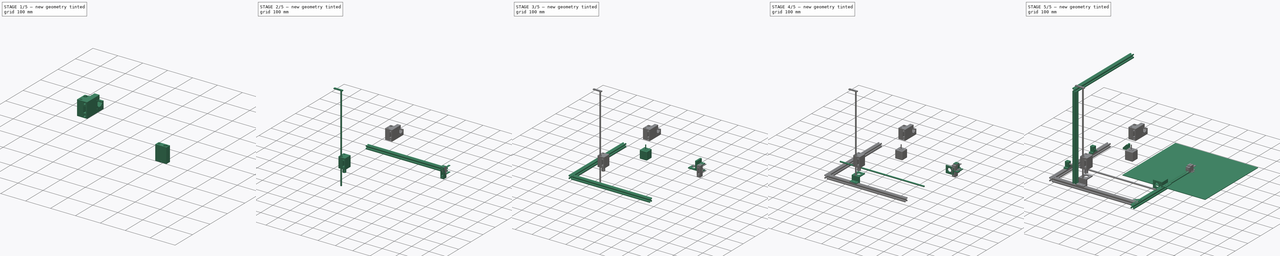
[diagram: build sequence overview — one tinted view per stage of 5, left to right]
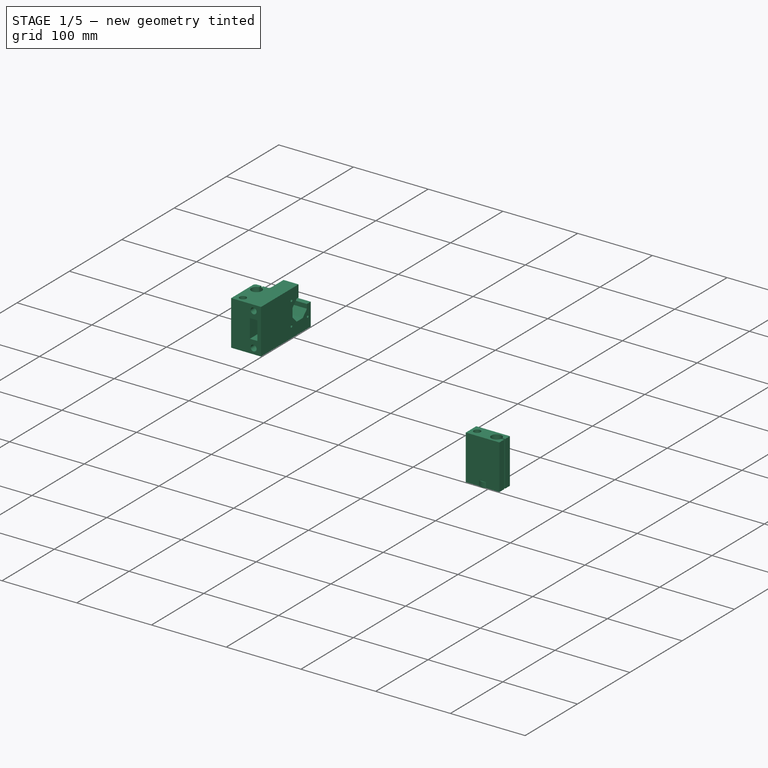
[diagram: stage 1 of 5 — iso view after this stage's code; geometry added in this stage tinted green]
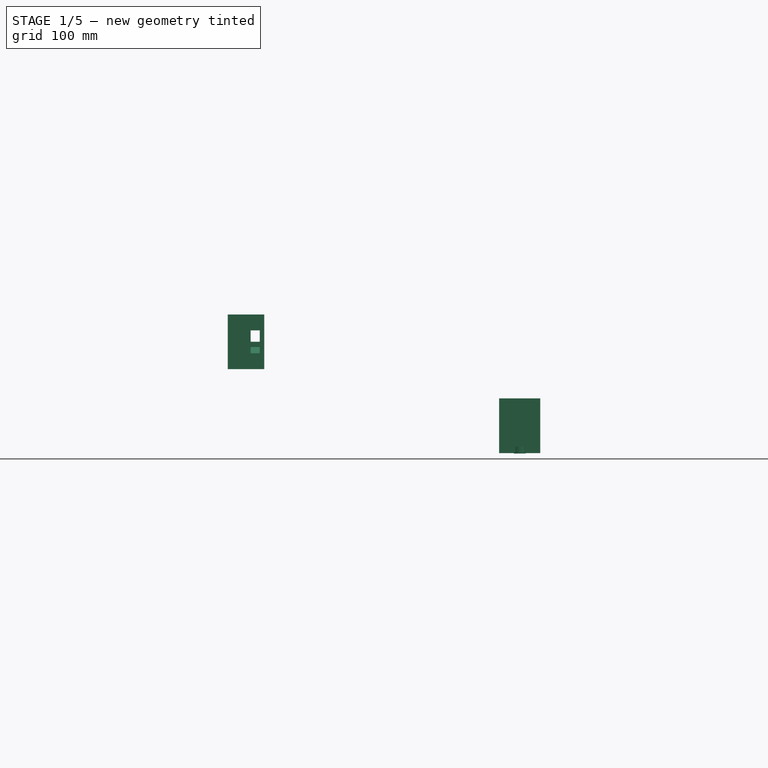
[diagram: stage 1 of 5 — front view after this stage's code; geometry added in this stage tinted green]
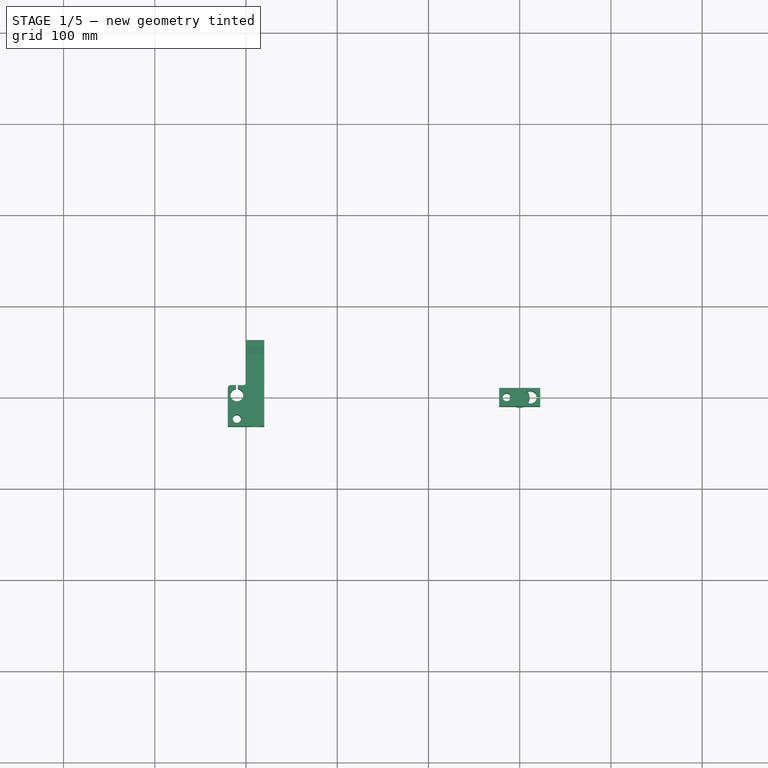
[diagram: stage 1 of 5 — top view after this stage's code; geometry added in this stage tinted green]
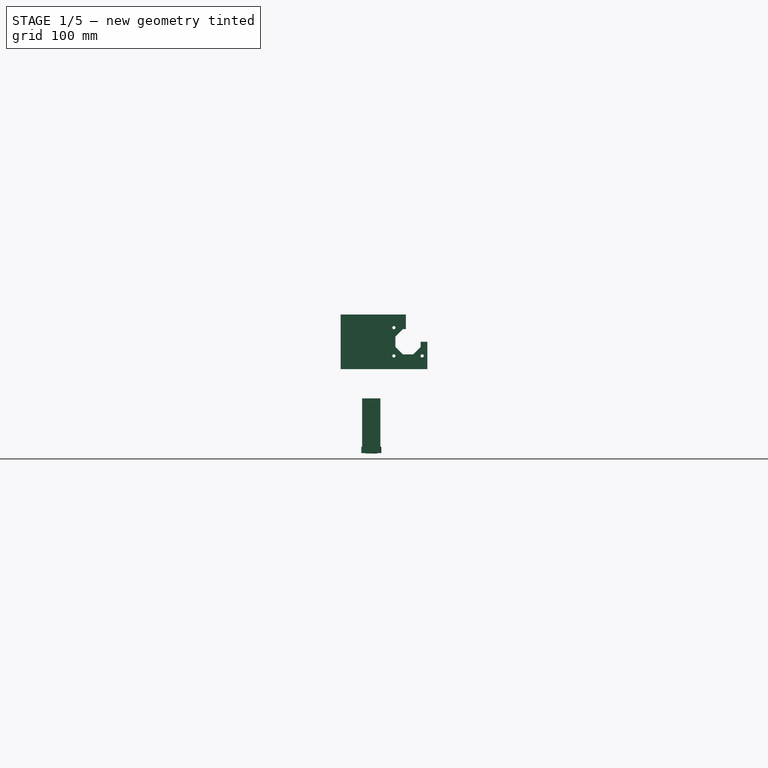
[diagram: stage 1 of 5 — right view after this stage's code; geometry added in this stage tinted green]
FCSTD DOCUMENT  (FreeCAD 0.18.4R)
Label: impresora3D
License: All rights reserved
LicenseURL: http://en.wikipedia.org/wiki/All_rights_reserved
objects: Sketcher::SketchObject×71, PartDesign::Pad×40, PartDesign::Pocket×38, Part::FeaturePython×35, PartDesign::Body×22, App::DocumentObjectGroup×21, PartDesign::Fillet×5, PartDesign::Point×4, PartDesign::Plane×1, Part::Fillet×1
note: 295 computed .brp shape members not serialized (recipe doc carries the construction recipe); baked Part::Feature solids carry a one-line shape summary decoded from their .brp

FEATURE [App::DocumentObjectGroup] Group001  label="Base"
  Group = -> [Clone035,Clone036,Clone037,Clone038]
FEATURE [Sketcher::SketchObject] Sketch045
  MapMode = 5
  Support = -> [XY_Plane015]
  sketch-geometry (1):
    g0: Circle CenterX=0 CenterY=0 CenterZ=0 NormalX=0 NormalY=0 NormalZ=1 AngleXU=0 Radius=9
  constraints (2):
    c: Coincident(g0,g-1)
    c: Diameter(g0) = 18
FEATURE [PartDesign::Pad] Pad027
  Length = 25
  Length2 = 100
  Profile = -> Sketch045
  Type = 0
FEATURE [Sketcher::SketchObject] Sketch046
  MapMode = 5
  Placement = pos=(0,0,25) rot=(0,0,1;0rad)
  Support = -> [Pad027]
  sketch-geometry (1):
    g0: Circle CenterX=0 CenterY=0 CenterZ=0 NormalX=0 NormalY=0 NormalZ=1 AngleXU=0 Radius=2.5
  constraints (2):
    c: Coincident(g0,g-1)
    c: Diameter(g0) = 5
FEATURE [PartDesign::Pocket] Pocket021
  BaseFeature = -> Pad027
  Length = 6
  Length2 = 100
  Profile = -> Sketch046
  Type = 0
FEATURE [Sketcher::SketchObject] Sketch047
  MapMode = 5
  Placement = pos=(0,0,0) rot=(1,0,0;3.14159rad)
  Support = -> [Pocket021]
  sketch-geometry (1):
    g0: Circle CenterX=0 CenterY=0 CenterZ=0 NormalX=0 NormalY=0 NormalZ=1 AngleXU=0 Radius=4
  constraints (2):
    c: Coincident(g0,g-1)
    c: Diameter(g0) = 8
FEATURE [PartDesign::Pocket] Pocket022
  BaseFeature = -> Pocket021
  Length = 6
  Length2 = 100
  Profile = -> Sketch047
  Type = 0
FEATURE [Sketcher::SketchObject] Sketch051
  MapMode = 5
  Support = -> [XY_Plane017]
  sketch-geometry (6):
    g0: LineSegment StartX=-22.5 StartY=10 StartZ=0 EndX=22.5 EndY=10 EndZ=0
    g1: LineSegment StartX=22.5 StartY=10 StartZ=0 EndX=22.5 EndY=-10 EndZ=0
    g2: LineSegment StartX=22.5 StartY=-10 StartZ=0 EndX=-22.5 EndY=-10 EndZ=0
    g3: LineSegment StartX=-22.5 StartY=-10 StartZ=0 EndX=-22.5 EndY=10 EndZ=0
    g4: Circle CenterX=-14.2696 CenterY=0 CenterZ=0 NormalX=0 NormalY=0 NormalZ=1 AngleXU=0 Radius=4.5
    g5: Circle CenterX=11.7304 CenterY=0 CenterZ=0 NormalX=0 NormalY=0 NormalZ=1 AngleXU=0 Radius=7
  constraints (15):
    c: Coincident(g0,g1)
    c: Coincident(g1,g2)
    c: Coincident(g2,g3)
    c: Coincident(g3,g0)
    c: Horizontal(g2)
    c: Vertical(g3)
    c: Symmetric(g0,g0,g-2)
    c: Symmetric(g0,g1,g-1)
    c: PointOnObject(g5,g-1)
    c: PointOnObject(g4,g-1)
    c: DistanceX(g4,g5) = 26
    c: Diameter(g5) = 14
    c: Diameter(g4) = 9
    c: DistanceX(g2,g1) = 45
    c: DistanceY(g2,g0) = 20
FEATURE [PartDesign::Pad] Pad029
  Length = 60
  Length2 = 100
  Profile = -> Sketch051
  Type = 0
FEATURE [Sketcher::SketchObject] Sketch052
  MapMode = 5
  Placement = pos=(0,0,60) rot=(0,0,1;0rad)
  Support = -> [Pad029]
  sketch-geometry (4):
    g0: LineSegment StartX=18.51 StartY=1 StartZ=0 EndX=22.51 EndY=1 EndZ=0
    g1: LineSegment StartX=22.51 StartY=1 StartZ=0 EndX=22.51 EndY=-1 EndZ=0
    g2: LineSegment StartX=22.51 StartY=-1 StartZ=0 EndX=18.51 EndY=-1 EndZ=0
    g3: LineSegment StartX=18.51 StartY=-1 StartZ=0 EndX=18.51 EndY=1 EndZ=0
  constraints (11):
    c: Coincident(g0,g1)
    c: Coincident(g1,g2)
    c: Coincident(g2,g3)
    c: Coincident(g3,g0)
    c: Horizontal(g0)
    c: Horizontal(g2)
    c: Vertical(g3)
    c: Symmetric(g0,g1,g-1)
    c: DistanceY(g1,g0) = 2
    c: DistanceX(g2,g1) = 4
    c: DistanceX(g-1,g2) = 18.51
FEATURE [PartDesign::Pocket] Pocket025
  BaseFeature = -> Pad029
  Length = 5
  Length2 = 100
  Profile = -> Sketch052
  Type = 1
FEATURE [PartDesign::Body] Body018  label="portaPoleaEjeY"
  Group = -> [Sketch055,Pad031,Sketch056,Pocket028,Sketch057,Pocket029,Sketch058,Pocket030,Sketch059,Pad032]
  Origin = -> Origin018
  Tip = -> Pad032
FEATURE [Sketcher::SketchObject] Sketch060
  MapMode = 5
  Support = -> [XY_Plane019]
  sketch-geometry (6):
    g0: LineSegment StartX=-22.5 StartY=10 StartZ=0 EndX=22.5 EndY=10 EndZ=0
    g1: LineSegment StartX=22.5 StartY=10 StartZ=0 EndX=22.5 EndY=-10 EndZ=0
    g2: LineSegment StartX=22.5 StartY=-10 StartZ=0 EndX=-22.5 EndY=-10 EndZ=0
    g3: LineSegment StartX=-22.5 StartY=-10 StartZ=0 EndX=-22.5 EndY=10 EndZ=0
    g4: Circle CenterX=-14.2696 CenterY=0 CenterZ=0 NormalX=0 NormalY=0 NormalZ=1 AngleXU=0 Radius=4.5
    g5: Circle CenterX=11.7304 CenterY=0 CenterZ=0 NormalX=0 NormalY=0 NormalZ=1 AngleXU=0 Radius=7
  constraints (15):
    c: Coincident(g0,g1)
    c: Coincident(g1,g2)
    c: Coincident(g2,g3)
    c: Coincident(g3,g0)
    c: Horizontal(g2)
    c: Vertical(g3)
    c: Symmetric(g0,g0,g-2)
    c: Symmetric(g0,g1,g-1)
    c: PointOnObject(g5,g-1)
    c: PointOnObject(g4,g-1)
    c: DistanceX(g4,g5) = 26
    c: Diameter(g5) = 14
    c: Diameter(g4) = 9
    c: DistanceX(g2,g1) = 45
    c: DistanceY(g2,g0) = 20
FEATURE [PartDesign::Pad] Pad033
  Length = 60
  Length2 = 100
  Profile = -> Sketch060
  Type = 0
FEATURE [Sketcher::SketchObject] Sketch061
  MapMode = 5
  Placement = pos=(0,0,60) rot=(0,0,1;0rad)
  Support = -> [Pad033]
  sketch-geometry (4):
    g0: LineSegment StartX=18.51 StartY=1 StartZ=0 EndX=22.51 EndY=1 EndZ=0
    g1: LineSegment StartX=22.51 StartY=1 StartZ=0 EndX=22.51 EndY=-1 EndZ=0
    g2: LineSegment StartX=22.51 StartY=-1 StartZ=0 EndX=18.51 EndY=-1 EndZ=0
    g3: LineSegment StartX=18.51 StartY=-1 StartZ=0 EndX=18.51 EndY=1 EndZ=0
  constraints (11):
    c: Coincident(g0,g1)
    c: Coincident(g1,g2)
    c: Coincident(g2,g3)
    c: Coincident(g3,g0)
    c: Horizontal(g0)
    c: Horizontal(g2)
    c: Vertical(g3)
    c: Symmetric(g0,g1,g-1)
    c: DistanceY(g1,g0) = 2
    c: DistanceX(g2,g1) = 4
    c: DistanceX(g-1,g2) = 18.51
FEATURE [PartDesign::Pocket] Pocket031
  BaseFeature = -> Pad033
  Length = 5
  Length2 = 100
  Profile = -> Sketch061
  Type = 1
FEATURE [PartDesign::Pad] Pad034
  BaseFeature = -> Pocket031
  Length = 20
  Length2 = 100
  Profile = -> Pocket031 [Face6]
  Type = 0
FEATURE [Sketcher::SketchObject] Sketch062
  ExternalGeometry = -> [Pad034]
  MapMode = 5
  Placement = pos=(-22.5,0,0) rot=(0.57735,-0.57735,-0.57735;2.0944rad)
  Support = -> [Pad034]
  sketch-geometry (6):
    g0: LineSegment [constr] StartX=30 StartY=30 StartZ=0 EndX=10 EndY=30 EndZ=0
    g1: LineSegment [constr] StartX=20 StartY=60 StartZ=0 EndX=20 EndY=0 EndZ=0
    g2: LineSegment StartX=15 StartY=42.5 StartZ=0 EndX=25 EndY=42.5 EndZ=0
    g3: LineSegment StartX=25 StartY=42.5 StartZ=0 EndX=25 EndY=17.5 EndZ=0
    g4: LineSegment StartX=25 StartY=17.5 StartZ=0 EndX=15 EndY=17.5 EndZ=0
    g5: LineSegment StartX=15 StartY=17.5 StartZ=0 EndX=15 EndY=42.5 EndZ=0
  constraints (18):
    c: Horizontal(g0)
    c: PointOnObject(g0,g-4)
    c: PointOnObject(g0,g-6)
    c: DistanceY(g-6,g0) = 30
    c: Vertical(g1)
    c: PointOnObject(g1,g-5)
    c: PointOnObject(g1,g-3)
    c: DistanceX(g1,g-6) = 10
    c: Coincident(g2,g3)
    c: Coincident(g3,g4)
    c: Coincident(g4,g5)
    c: Coincident(g5,g2)
    c: Horizontal(g2)
    c: Vertical(g3)
    c: Symmetric(g4,g3,g1)
    c: Symmetric(g4,g2,g0)
    c: DistanceY(g3,g2) = 25
    c: DistanceX(g4,g3) = 10
FEATURE [PartDesign::Pocket] Pocket032
  BaseFeature = -> Pad034
  Length = 47
  Length2 = 100
  Profile = -> Sketch062
  Type = 0
FEATURE [Sketcher::SketchObject] Sketch063
  ExternalGeometry = -> [Pocket032]
  MapMode = 5
  Placement = pos=(-22.5,0,0) rot=(0.57735,-0.57735,-0.57735;2.0944rad)
  Support = -> [Pocket032]
  sketch-geometry (4):
    g0: LineSegment [constr] StartX=20 StartY=60 StartZ=0 EndX=20 EndY=0 EndZ=0
    g1: LineSegment [constr] StartX=30 StartY=30 StartZ=0 EndX=10 EndY=30 EndZ=0
    g2: Circle CenterX=20 CenterY=52.5 CenterZ=0 NormalX=0 NormalY=0 NormalZ=1 AngleXU=0 Radius=4
    g3: Circle CenterX=20 CenterY=7.5 CenterZ=0 NormalX=0 NormalY=0 NormalZ=1 AngleXU=0 Radius=4
  constraints (13):
    c: Vertical(g0)
    c: DistanceX(g-4,g0) = 10
    c: PointOnObject(g0,g-3)
    c: PointOnObject(g0,g-6)
    c: PointOnObject(g1,g-4)
    c: Horizontal(g1)
    c: PointOnObject(g1,g-5)
    c: DistanceY(g1,g-5) = 30
    c: PointOnObject(g2,g0)
    c: Equal(g2,g3)
    c: Diameter(g3) = 8
    c: Symmetric(g2,g3,g1)
    c: DistanceY(g3,g2) = 45
FEATURE [PartDesign::Pocket] Pocket033
  BaseFeature = -> Pocket032
  Length = 20
  Length2 = 100
  Profile = -> Sketch063
  Type = 0
FEATURE [PartDesign::Pad] Pad035
  BaseFeature = -> Pocket033
  Length = 50
  Length2 = 100
  Profile = -> Pocket033 [Face21]
  Type = 0
FEATURE [PartDesign::Fillet] Fillet004
  Base = -> Pad035 [Edge35]
  BaseFeature = -> Pad035
  Radius = 3
FEATURE [PartDesign::Fillet] Fillet005
  Base = -> Fillet004 [Edge30]
  BaseFeature = -> Fillet004
  Radius = 3
FEATURE [Sketcher::SketchObject] Sketch064
  ExternalGeometry = -> [Fillet005]
  MapMode = 5
  Placement = pos=(0,-10,0) rot=(0,0.707107,0.707107;3.14159rad)
  Support = -> [Fillet005]
  expr: Constraints[19] = 42.3 / 2
  expr: Constraints[15] = 42.3 / 2
  sketch-geometry (18):
    g0: LineSegment [constr] StartX=-30.2 StartY=60 StartZ=0 EndX=-30.2 EndY=0 EndZ=0
    g1: LineSegment [constr] StartX=-72.5 StartY=51.2 StartZ=0 EndX=-30.2 EndY=51.2 EndZ=0
    g2: LineSegment [constr] StartX=-72.5 StartY=8.8 StartZ=0 EndX=-30.2 EndY=8.8 EndZ=0
    g3: LineSegment [constr] StartX=-51.35 StartY=51.2 StartZ=0 EndX=-51.35 EndY=8.8 EndZ=0
    g4: LineSegment [constr] StartX=-72.5 StartY=30.05 StartZ=0 EndX=-30.2 EndY=30.05 EndZ=0
    g5: Circle CenterX=-35.85 CenterY=45.55 CenterZ=0 NormalX=0 NormalY=0 NormalZ=1 AngleXU=0 Radius=1.75
    g6: Circle CenterX=-66.85 CenterY=45.55 CenterZ=0 NormalX=0 NormalY=0 NormalZ=1 AngleXU=0 Radius=1.75
    g7: Circle CenterX=-66.85 CenterY=14.55 CenterZ=0 NormalX=0 NormalY=0 NormalZ=1 AngleXU=0 Radius=1.75
    g8: Circle CenterX=-35.85 CenterY=14.55 CenterZ=0 NormalX=0 NormalY=0 NormalZ=1 AngleXU=0 Radius=1.75
    g9: LineSegment StartX=-37.4918 StartY=35.7903 StartZ=0 EndX=-45.6097 EndY=43.9082 EndZ=0
    g10: LineSegment StartX=-45.6097 StartY=43.9082 StartZ=0 EndX=-57.0903 EndY=43.9082 EndZ=0
    g11: LineSegment StartX=-57.0903 StartY=43.9082 StartZ=0 EndX=-65.2082 EndY=35.7903 EndZ=0
    g12: LineSegment StartX=-65.2082 StartY=35.7903 StartZ=0 EndX=-65.2082 EndY=24.3097 EndZ=0
    g13: LineSegment StartX=-65.2082 StartY=24.3097 StartZ=0 EndX=-57.0903 EndY=16.1918 EndZ=0
    g14: LineSegment StartX=-57.0903 StartY=16.1918 StartZ=0 EndX=-45.6097 EndY=16.1918 EndZ=0
    g15: LineSegment StartX=-45.6097 StartY=16.1918 StartZ=0 EndX=-37.4918 EndY=24.3097 EndZ=0
    g16: LineSegment StartX=-37.4918 StartY=24.3097 StartZ=0 EndX=-37.4918 EndY=35.7903 EndZ=0
    g17: Circle [constr] CenterX=-51.35 CenterY=30.05 CenterZ=0 NormalX=0 NormalY=0 NormalZ=1 AngleXU=0 Radius=15
  constraints (50):
    c: Vertical(g0)
    c: DistanceX(g-6,g0) = 42.3
    c: PointOnObject(g0,g-5)
    c: PointOnObject(g0,g-7)
    c: Horizontal(g1)
    c: PointOnObject(g1,g0)
    c: PointOnObject(g1,g-6)
    c: DistanceY(g1,g-6) = 8.8
    c: Horizontal(g2)
    c: PointOnObject(g2,g0)
    c: PointOnObject(g2,g-6)
    c: DistanceY(g-7,g2) = 8.8
    c: Vertical(g3)
    c: PointOnObject(g3,g2)
    c: PointOnObject(g3,g1)
    c: DistanceX(g2,g3) = 21.15
    c: PointOnObject(g4,g-6)
    c: PointOnObject(g4,g0)
    c: Horizontal(g4)
    c: DistanceY(g4,g1) = 21.15
    c: Equal(g8,g7)
    c: Equal(g7,g6)
    c: Equal(g6,g5)
    c: Symmetric(g5,g6,g3)
    c: Symmetric(g7,g6,g4)
    c: Symmetric(g8,g5,g4)
    c: DistanceY(g8,g5) = 31
    c: DistanceX(g6,g5) = 31
    c: Diameter(g6) = 3.5
    c: Coincident(g9,g10)
    c: Coincident(g10,g11)
    c: Coincident(g11,g12)
    c: Coincident(g12,g13)
    c: Coincident(g13,g14)
    c: Coincident(g14,g15)
    c: Coincident(g15,g16)
    c: Coincident(g16,g9)
    c: Equal(g9, g10-g16) x7
    c: PointOnObject(g9,g17)
    c: PointOnObject(g10,g17)
    c: PointOnObject(g11,g17)
    c: PointOnObject(g12,g17)
    c: PointOnObject(g13,g17)
    c: PointOnObject(g14,g17)
    c: PointOnObject(g15,g17)
    c: PointOnObject(g16,g17)
    c: PointOnObject(g17,g4)
    c: PointOnObject(g17,g3)
    c: Diameter(g17) = 30
    c: Parallel(g12,g-6)
FEATURE [PartDesign::Pocket] Pocket034
  BaseFeature = -> Fillet005
  Length = 5
  Length2 = 100
  Profile = -> Sketch064
  Type = 1
FEATURE [Sketcher::SketchObject] Sketch065
  ExternalGeometry = -> [Pocket034]
  MapMode = 5
  Placement = pos=(0,-10,0) rot=(0,0.707107,0.707107;3.14159rad)
  Support = -> [Pocket034]
  expr: Constraints[9] = 47 / 2
  sketch-geometry (4):
    g0: LineSegment StartX=-72.5 StartY=60 StartZ=0 EndX=-49 EndY=60 EndZ=0
    g1: LineSegment StartX=-49 StartY=60 StartZ=0 EndX=-49 EndY=30 EndZ=0
    g2: LineSegment StartX=-49 StartY=30 StartZ=0 EndX=-72.5 EndY=30 EndZ=0
    g3: LineSegment StartX=-72.5 StartY=30 StartZ=0 EndX=-72.5 EndY=60 EndZ=0
  constraints (11):
    c: Coincident(g0,g1)
    c: Coincident(g1,g2)
    c: Coincident(g2,g3)
    c: Coincident(g3,g0)
    c: Horizontal(g0)
    c: Horizontal(g2)
    c: Vertical(g1)
    c: Vertical(g3)
    c: Coincident(g0,g-4)
    c: DistanceX(g0,g0) = 23.5
    c: DistanceY(g2,g0) = 30
FEATURE [PartDesign::Pocket] Pocket035
  BaseFeature = -> Pocket034
  Length = 5
  Length2 = 100
  Profile = -> Sketch065
  Type = 1
FEATURE [PartDesign::Pad] Pad036
  BaseFeature = -> Pocket035
  Length = 12.5
  Length2 = 100
  Profile = -> Pocket035 [Face41]
  Type = 0
FEATURE [PartDesign::Pocket] Pocket036
  BaseFeature = -> Pad036
  Length = 5
  Length2 = 100
  Profile = -> Pad036 [Face50]
  Type = 1
FEATURE [Part::FeaturePython] Clone047  label="soporteEjeYConMotorIzquierdo001"  # Draft clone (typed FeaturePython)
  AttacherType = Attacher::AttachEngine3D
  Fuse = false
  Objects = -> [Body019]
  Placement = pos=(-310,-11,92) rot=(0,0,1;1.5708rad)
  Scale = (1,1,1)
FEATURE [App::DocumentObjectGroup] Group003  label="Impresora"
  Group = -> [Group001,Group,Group011,Group012,Group017,Clone028,Clone029,Clone031,Clone032,Clone033,Clone040,Clone041,Clone042,Clone043,Clone,Clone044,Clone046,Clone047]
FEATURE [Sketcher::SketchObject] Sketch066
  MapMode = 5
  Support = -> [XY_Plane020]
FEATURE [PartDesign::Body] Body020  label="soportePoleaLisaEjeX"
  Group = -> [Sketch066]
  Origin = -> Origin020
FEATURE [Sketcher::SketchObject] Sketch067
  MapMode = 5
  Support = -> [XY_Plane021]
  sketch-geometry (1):
    g0: Circle CenterX=0 CenterY=0 CenterZ=0 NormalX=0 NormalY=0 NormalZ=1 AngleXU=0 Radius=4
  constraints (2):
    c: Coincident(g0,g-1)
    c: Diameter(g0) = 8
FEATURE [PartDesign::Pad] Pad037
  Length = 7
  Length2 = 100
  Profile = -> Sketch067
  Type = 0
FEATURE [Sketcher::SketchObject] Sketch068
  MapMode = 5
  Placement = pos=(0,0,7) rot=(0,0,1;0rad)
  Support = -> [Pad037]
  sketch-geometry (1):
    g0: Circle CenterX=0 CenterY=0 CenterZ=0 NormalX=0 NormalY=0 NormalZ=1 AngleXU=0 Radius=6.5
  constraints (2):
    c: Coincident(g0,g-1)
    c: Diameter(g0) = 13
FEATURE [PartDesign::Pad] Pad038
  BaseFeature = -> Pad037
  Length = 0.5
  Length2 = 100
  Profile = -> Sketch068
  Type = 0
FEATURE [Sketcher::SketchObject] Sketch069
  MapMode = 5
  Placement = pos=(0,0,0) rot=(1,0,0;3.14159rad)
  Support = -> [Pad038]
FEATURE [Sketcher::SketchObject] Sketch070
  MapMode = 5
  Placement = pos=(0,0,0) rot=(1,0,0;3.14159rad)
  Support = -> [Pad038]
  sketch-geometry (1):
    g0: Circle CenterX=0 CenterY=0 CenterZ=0 NormalX=0 NormalY=0 NormalZ=1 AngleXU=0 Radius=6.5
  constraints (2):
    c: Coincident(g0,g-1)
    c: Diameter(g0) = 13
FEATURE [PartDesign::Pad] Pad039
  BaseFeature = -> Pad038
  Length = 0.5
  Length2 = 100
  Profile = -> Sketch070
  Type = 0
FEATURE [Sketcher::SketchObject] Sketch071
  MapMode = 5
  Placement = pos=(0,0,-0.5) rot=(1,0,0;3.14159rad)
  Support = -> [Pad039]
  sketch-geometry (1):
    g0: Circle CenterX=0 CenterY=0 CenterZ=0 NormalX=0 NormalY=0 NormalZ=1 AngleXU=0 Radius=1.5
  constraints (2):
    c: Coincident(g0,g-1)
    c: Diameter(g0) = 3
FEATURE [PartDesign::Pocket] Pocket037
  BaseFeature = -> Pad039
  Length = 5
  Length2 = 100
  Profile = -> Sketch071
  Type = 1
FEATURE [PartDesign::Body] Body021  label="PoleaLisaGT2"
  Group = -> [Sketch067,Pad037,Sketch068,Pad038,Sketch069,Sketch070,Pad039,Sketch071,Pocket037]
  Origin = -> Origin021
  Tip = -> Pocket037
FEATURE [Sketcher::SketchObject] Sketch072
  MapMode = 5
  Support = -> [XY_Plane022]
  sketch-geometry (1):
    g0: Circle CenterX=0 CenterY=0 CenterZ=0 NormalX=0 NormalY=0 NormalZ=1 AngleXU=0 Radius=11
  constraints (2):
    c: Coincident(g-1,g0)
    c: Diameter(g0) = 22
FEATURE [PartDesign::Pad] Pad040
  Length = 7
  Length2 = 100
  Profile = -> Sketch072
  Type = 0
FEATURE [Sketcher::SketchObject] Sketch073
  MapMode = 5
  Placement = pos=(0,0,7) rot=(0,0,1;0rad)
  Support = -> [Pad040]
  sketch-geometry (1):
    g0: Circle CenterX=0 CenterY=0 CenterZ=0 NormalX=0 NormalY=0 NormalZ=1 AngleXU=0 Radius=4
  constraints (2):
    c: Coincident(g0,g-1)
    c: Diameter(g0) = 8
FEATURE [PartDesign::Pocket] Pocket038
  BaseFeature = -> Pad040
  Length = 5
  Length2 = 100
  Profile = -> Sketch073
  Type = 1
FEATURE [PartDesign::Body] Body022  label="Rodamiento608zz"
  Group = -> [Sketch072,Pad040,Sketch073,Pocket038]
  Origin = -> Origin022
  Tip = -> Pocket038
FEATURE [App::DocumentObjectGroup] Group021  label="Acoples"
  Group = -> [Body015]
FEATURE [App::DocumentObjectGroup] Group004  label="Modelos"
  Group = -> [Group002,Group005,Group006,Group009,Group013,Group019,Group020,Group021]
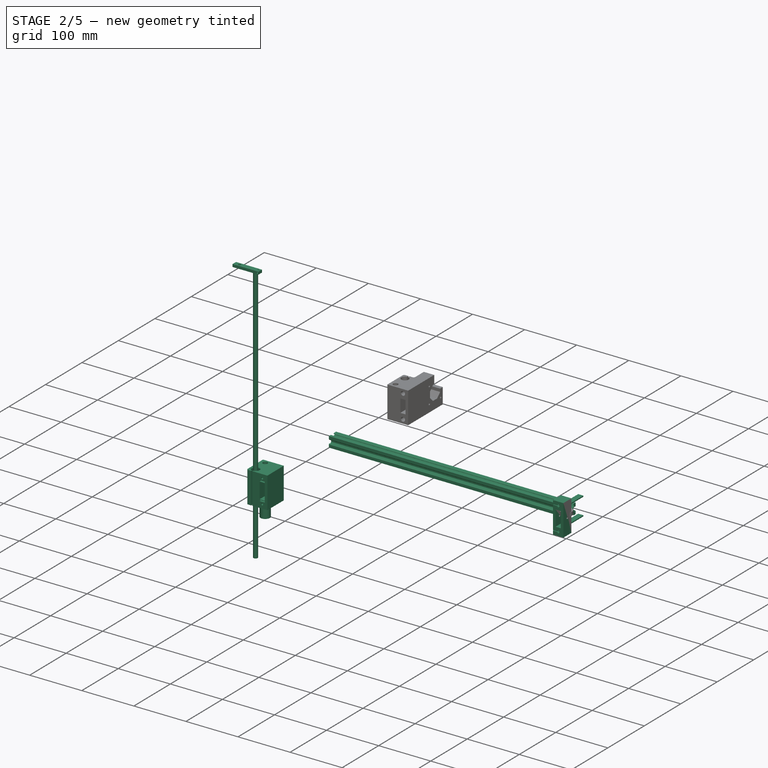
[diagram: stage 2 of 5 — iso view after this stage's code; geometry added in this stage tinted green]
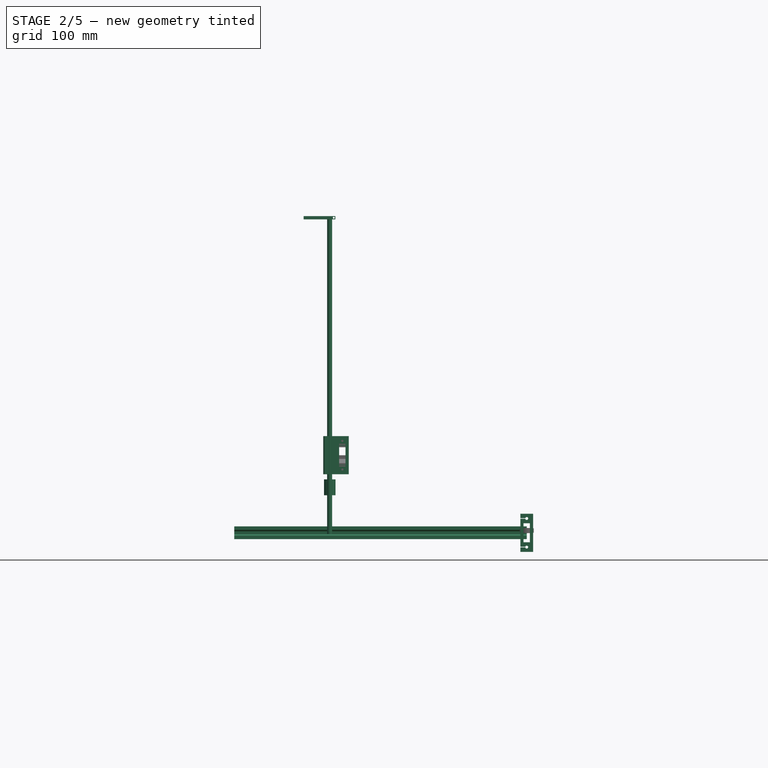
[diagram: stage 2 of 5 — front view after this stage's code; geometry added in this stage tinted green]
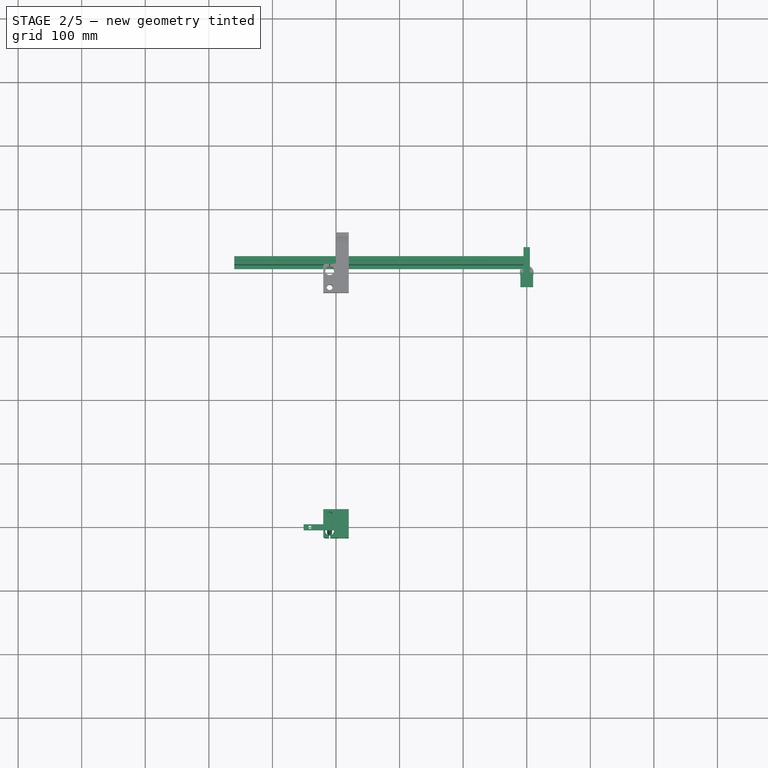
[diagram: stage 2 of 5 — top view after this stage's code; geometry added in this stage tinted green]
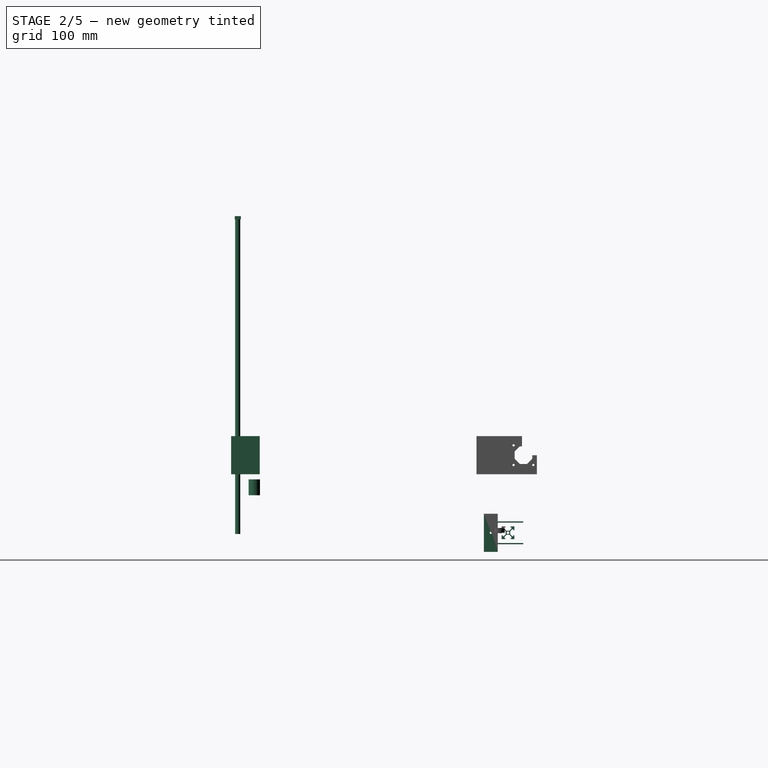
[diagram: stage 2 of 5 — right view after this stage's code; geometry added in this stage tinted green]
FEATURE [Sketcher::SketchObject] Sketch041
  MapMode = 5
  Placement = pos=(0,0,0) rot=(0.57735,0.57735,0.57735;2.0944rad)
  Support = -> [YZ_Plane013]
  sketch-geometry (49):
    g0: LineSegment [constr] StartX=-10 StartY=10 StartZ=0 EndX=10 EndY=10 EndZ=0
    g1: LineSegment [constr] StartX=10 StartY=10 StartZ=0 EndX=10 EndY=-10 EndZ=0
    g2: LineSegment [constr] StartX=10 StartY=-10 StartZ=0 EndX=-10 EndY=-10 EndZ=0
    g3: LineSegment [constr] StartX=-10 StartY=-10 StartZ=0 EndX=-10 EndY=10 EndZ=0
    g4: LineSegment StartX=-10 StartY=4.58 StartZ=0 EndX=-10 EndY=10 EndZ=0
    g5: LineSegment StartX=-10 StartY=10 StartZ=0 EndX=-4.58 EndY=10 EndZ=0
    g6: LineSegment StartX=-4.58 StartY=10 StartZ=0 EndX=-3.125 EndY=8.545 EndZ=0
    g7: LineSegment StartX=-3.125 StartY=8.545 StartZ=0 EndX=-5.5 EndY=8.545 EndZ=0
    g8: LineSegment StartX=-5.5 StartY=8.545 StartZ=0 EndX=-5.5 EndY=6.52648 EndZ=0
    g9: LineSegment StartX=-5.5 StartY=6.52648 StartZ=0 EndX=-2.35726 EndY=3.14093 EndZ=0
    g10: LineSegment StartX=-10 StartY=4.58 StartZ=0 EndX=-8.42 EndY=3 EndZ=0
    g11: LineSegment StartX=-8.42 StartY=3 StartZ=0 EndX=-8.42 EndY=5.5 EndZ=0
    g12: LineSegment StartX=-8.42 StartY=5.5 StartZ=0 EndX=-6.5938 EndY=5.5 EndZ=0
    g13: LineSegment StartX=-6.5938 StartY=5.5 StartZ=0 EndX=-3.67645 EndY=2.35726 EndZ=0
    g14: LineSegment StartX=10 StartY=4.58 StartZ=0 EndX=10 EndY=10 EndZ=0
    g15: LineSegment StartX=10 StartY=10 StartZ=0 EndX=4.58 EndY=10 EndZ=0
    g16: LineSegment StartX=4.58 StartY=10 StartZ=0 EndX=3.125 EndY=8.545 EndZ=0
    g17: LineSegment StartX=3.125 StartY=8.545 StartZ=0 EndX=5.5 EndY=8.545 EndZ=0
    g18: LineSegment StartX=5.5 StartY=8.545 StartZ=0 EndX=5.5 EndY=6.52648 EndZ=0
    g19: LineSegment StartX=5.5 StartY=6.52648 StartZ=0 EndX=2.35726 EndY=3.14093 EndZ=0
    g20: LineSegment StartX=10 StartY=4.58 StartZ=0 EndX=8.42 EndY=3 EndZ=0
    g21: LineSegment StartX=8.42 StartY=3 StartZ=0 EndX=8.42 EndY=5.5 EndZ=0
    g22: LineSegment StartX=8.42 StartY=5.5 StartZ=0 EndX=6.5938 EndY=5.5 EndZ=0
    g23: LineSegment StartX=6.5938 StartY=5.5 StartZ=0 EndX=3.67645 EndY=2.35726 EndZ=0
    g24: LineSegment StartX=-6.5938 StartY=-5.5 StartZ=0 EndX=-3.67645 EndY=-2.35726 EndZ=0
    g25: LineSegment StartX=-10 StartY=-4.58 StartZ=0 EndX=-10 EndY=-10 EndZ=0
    g26: LineSegment StartX=-10 StartY=-10 StartZ=0 EndX=-4.58 EndY=-10 EndZ=0
    g27: LineSegment StartX=-4.58 StartY=-10 StartZ=0 EndX=-3.125 EndY=-8.545 EndZ=0
    g28: LineSegment StartX=-3.125 StartY=-8.545 StartZ=0 EndX=-5.5 EndY=-8.545 EndZ=0
    g29: LineSegment StartX=-5.5 StartY=-8.545 StartZ=0 EndX=-5.5 EndY=-6.52648 EndZ=0
    g30: LineSegment StartX=-5.5 StartY=-6.52648 StartZ=0 EndX=-2.35726 EndY=-3.14093 EndZ=0
    g31: LineSegment StartX=-10 StartY=-4.58 StartZ=0 EndX=-8.42 EndY=-3 EndZ=0
    g32: LineSegment StartX=-8.42 StartY=-3 StartZ=0 EndX=-8.42 EndY=-5.5 EndZ=0
    g33: LineSegment StartX=-8.42 StartY=-5.5 StartZ=0 EndX=-6.5938 EndY=-5.5 EndZ=0
    g34: LineSegment StartX=10 StartY=-10 StartZ=0 EndX=4.58 EndY=-10 EndZ=0
    g35: LineSegment StartX=4.58 StartY=-10 StartZ=0 EndX=3.125 EndY=-8.545 EndZ=0
    g36: LineSegment StartX=3.125 StartY=-8.545 StartZ=0 EndX=5.5 EndY=-8.545 EndZ=0
    g37: LineSegment StartX=5.5 StartY=-8.545 StartZ=0 EndX=5.5 EndY=-6.52648 EndZ=0
    g38: LineSegment StartX=5.5 StartY=-6.52648 StartZ=0 EndX=2.35726 EndY=-3.14093 EndZ=0
    g39: LineSegment StartX=10 StartY=-4.58 StartZ=0 EndX=8.42 EndY=-3 EndZ=0
    g40: LineSegment StartX=8.42 StartY=-3 StartZ=0 EndX=8.42 EndY=-5.5 EndZ=0
    g41: LineSegment StartX=8.42 StartY=-5.5 StartZ=0 EndX=6.5938 EndY=-5.5 EndZ=0
    g42: LineSegment StartX=6.5938 StartY=-5.5 StartZ=0 EndX=3.67645 EndY=-2.35726 EndZ=0
    g43: LineSegment StartX=10 StartY=-4.58 StartZ=0 EndX=10 EndY=-10 EndZ=0
    g44: LineSegment StartX=-3.67645 StartY=2.35726 StartZ=0 EndX=-3.67645 EndY=-2.35726 EndZ=0
    g45: LineSegment StartX=-2.35726 StartY=-3.14093 StartZ=0 EndX=2.35726 EndY=-3.14093 EndZ=0
    g46: LineSegment StartX=3.67645 StartY=-2.35726 StartZ=0 EndX=3.67645 EndY=2.35726 EndZ=0
    g47: LineSegment StartX=2.35726 StartY=3.14093 StartZ=0 EndX=-2.35726 EndY=3.14093 EndZ=0
    g48: Circle CenterX=0 CenterY=0 CenterZ=0 NormalX=0 NormalY=0 NormalZ=1 AngleXU=0 Radius=2.1
  constraints (118):
    c: Coincident(g0,g1)
    c: Coincident(g1,g2)
    c: Coincident(g2,g3)
    c: Coincident(g3,g0)
    c: Horizontal(g2)
    c: Vertical(g1)
    c: Symmetric(g0,g0,g-2)
    c: Symmetric(g0,g2,g-1)
    c: DistanceX(g0,g0) = 20
    c: DistanceY(g2,g0) = 20
    c: Vertical(g4)
    c: Coincident(g4,g5)
    c: Horizontal(g5)
    c: Coincident(g5,g6)
    c: Coincident(g6,g7)
    c: Horizontal(g7)
    c: Coincident(g7,g8)
    c: Vertical(g8)
    c: Coincident(g8,g9)
    c: Coincident(g4,g10)
    c: Vertical(g11)
    c: Coincident(g11,g12)
    c: Coincident(g12,g13)
    c: Coincident(g4,g0)
    c: Angle(g6,g0) = 0.785398
    c: Vertical(g14)
    c: Coincident(g14,g15)
    c: Horizontal(g15)
    c: Coincident(g15,g16)
    c: Coincident(g16,g17)
    c: Coincident(g17,g18)
    c: Coincident(g18,g19)
    c: Coincident(g14,g20)
    c: Coincident(g20,g21)
    c: Vertical(g21)
    c: Coincident(g21,g22)
    c: Coincident(g22,g23)
    c: DistanceX(g5,g15) = 9.16
    c: Coincident(g14,g0)
    c: Angle(g0,g16) = 0.785398
    c: DistanceX(g7,g17) = 11
    c: DistanceX(g6,g16) = 6.25
    c: Angle(g3,g10) = 0.785398
    c: Vertical(g25)
    c: Coincident(g25,g26)
    c: Horizontal(g26)
    c: Coincident(g26,g27)
    c: Coincident(g27,g28)
    c: Coincident(g28,g29)
    c: Coincident(g29,g30)
    c: Coincident(g25,g31)
    c: Coincident(g31,g32)
    c: Coincident(g32,g33)
    c: Coincident(g33,g24)
    c: Coincident(g43,g34)
    c: Coincident(g34,g35)
    c: Coincident(g35,g36)
    c: Coincident(g36,g37)
    c: Coincident(g37,g38)
    c: Coincident(g43,g39)
    c: Coincident(g39,g40)
    c: Vertical(g40)
    c: Coincident(g40,g41)
    c: Coincident(g41,g42)
    c: DistanceY(g25,g4) = 9.16
    c: Coincident(g25,g2)
    c: Coincident(g1,g34)
    c: DistanceY(g32,g11) = 11
    c: DistanceY(g31,g10) = 6
    c: Angle(g31,g3) = 0.785398
    c: Parallel(g9,g13)
    c: Distance(g12,g9) = 1.5
    c: Perpendicular(g11,g12)
    c: Angle(g2,g27) = 0.785398
    c: Symmetric(g16,g6,g-2)
    c: Symmetric(g17,g7,g-2)
    c: Symmetric(g8,g18,g-2)
    c: Symmetric(g9,g19,g-2)
    c: Symmetric(g23,g13,g-2)
    c: Parallel(g22,g15)
    c: Angle(g20,g1) = 0.785398
    c: Symmetric(g31,g10,g-1)
    c: Coincident(g11,g10)
    c: Symmetric(g32,g11,g-1)
    c: Symmetric(g24,g12,g-1)
    c: Symmetric(g24,g13,g-1)
    c: Coincident(g13,g44)
    c: Coincident(g44,g24)
    c: Coincident(g30,g45)
    c: Coincident(g45,g38)
    c: Coincident(g46,g42)
    c: Coincident(g46,g23)
    c: Coincident(g47,g9)
    c: Symmetric(g9,g30,g-1)
    c: Coincident(g19,g47)
    c: Symmetric(g38,g19,g-1)
    c: Symmetric(g23,g42,g-1)
    c: Symmetric(g22,g12,g-2)
    c: Parallel(g41,g34)
    c: Symmetric(g18,g37,g-1)
    c: Symmetric(g41,g22,g-1)
    c: Symmetric(g39,g20,g-1)
    c: Symmetric(g39,g14,g-1)
    c: Symmetric(g26,g34,g-2)
    c: Symmetric(g29,g8,g-1)
    c: Symmetric(g27,g35,g-2)
    c: Symmetric(g39,g31,g-2)
    c: Symmetric(g36,g28,g-2)
    c: Symmetric(g28,g7,g-1)
    c: Symmetric(g27,g6,g-1)
    c: Equal(g47,g44)
    c: Equal(g44,g45)
    c: Equal(g45,g46)
    c: DistanceY(g24,g13) = 4.71451
    c: Angle(g47,g9) = 2.31902
    c: Coincident(g48,g-1)
    c: Diameter(g48) = 4.2
    c: DistanceY(g8,g6) = 2.01852
FEATURE [PartDesign::Pad] Pad025
  Length = 460
  Length2 = 100
  Placement = pos=(0,0,0) rot=(0.57735,0.57735,0.57735;2.0944rad)
  Profile = -> Sketch041
  Type = 0
FEATURE [PartDesign::Body] Body013  label="perfil2020BienRestringido"
  Group = -> [Sketch041,Pad025]
  Origin = -> Origin013
  Tip = -> Pad025
FEATURE [App::DocumentObjectGroup] Group002  label="Perfiles"
  Group = -> [Body004,Body002,Body,Body013]
FEATURE [Part::FeaturePython] Clone035  label="perfil2020BienRestringidoBaseUno"  # Draft clone (typed FeaturePython)
  AttacherType = Attacher::AttachEngine3D
  Fuse = false
  Objects = -> [Body013]
  Placement = pos=(10,26,0) rot=(0,0,-1;1.5708rad)
  Scale = (1,1,1)
FEATURE [Part::FeaturePython] Clone036  label="perfil2020BienRestringidoBaseUno001"  # Draft clone (typed FeaturePython)
  AttacherType = Attacher::AttachEngine3D
  Fuse = false
  Objects = -> [Clone035]
  Placement = pos=(0,16,0) rot=(0,0,1;3.14159rad)
  Scale = (1,1,1)
FEATURE [PartDesign::Body] Body015  label="acople5/8"
  Group = -> [Sketch045,Pad027,Sketch046,Pocket021,Sketch047,Pocket022]
  Origin = -> Origin015
  Tip = -> Pocket022
FEATURE [Part::FeaturePython] Clone040  label="acople5/009"  # Draft clone (typed FeaturePython)
  AttacherType = Attacher::AttachEngine3D
  Fuse = false
  Objects = -> [Body015]
  Placement = pos=(-310,-25,82) rot=(0,1,0;3.14159rad)
  Scale = (1,1,1)
FEATURE [Part::FeaturePython] Clone041  label="acople5/010"  # Draft clone (typed FeaturePython)
  AttacherType = Attacher::AttachEngine3D
  Fuse = false
  Objects = -> [Clone040]
  Placement = pos=(-309.85,-383,84) rot=(0,1,0;3.14159rad)
  Scale = (1,1,1)
FEATURE [Part::FeaturePython] Clone042  label="varillaacero8mmEjeZ003"  # WARN: FeaturePython — macro-defined, semantics opaque (R4)
  AttacherType = Attacher::AttachEngine3D
  Fuse = false
  Placement = pos=(-310,1.15,4) rot=(0,-1,0;1.5708rad)
  Scale = (1,1,1)
FEATURE [Part::FeaturePython] Clone043  label="varillaacero8mmEjeZ004"  # Draft clone (typed FeaturePython)
  AttacherType = Attacher::AttachEngine3D
  Fuse = false
  Objects = -> [Clone042]
  Placement = pos=(-310,-409.15,-2) rot=(0,-1,0;1.5708rad)
  Scale = (1,1,1)
FEATURE [Sketcher::SketchObject] Sketch048
  MapMode = 5
  Support = -> [XY_Plane016]
  expr: Constraints[10] = 20 + 21.25
  expr: Constraints[9] = 20 + 30
  sketch-geometry (6):
    g0: LineSegment StartX=-4.85 StartY=25 StartZ=0 EndX=4.85 EndY=25 EndZ=0
    g1: LineSegment StartX=4.85 StartY=25 StartZ=0 EndX=4.85 EndY=-25 EndZ=0
    g2: LineSegment StartX=4.85 StartY=-25 StartZ=0 EndX=-4.85 EndY=-25 EndZ=0
    g3: LineSegment StartX=-4.85 StartY=-25 StartZ=0 EndX=-4.85 EndY=25 EndZ=0
    g4: Circle CenterX=0 CenterY=-16.25 CenterZ=0 NormalX=0 NormalY=0 NormalZ=1 AngleXU=0 Radius=4
    g5: Circle CenterX=0 CenterY=15 CenterZ=0 NormalX=0 NormalY=0 NormalZ=1 AngleXU=0 Radius=2.5
  constraints (16):
    c: Coincident(g0,g1)
    c: Coincident(g1,g2)
    c: Coincident(g2,g3)
    c: Coincident(g3,g0)
    c: Horizontal(g2)
    c: Vertical(g1)
    c: Symmetric(g0,g0,g-2)
    c: Symmetric(g0,g2,g-1)
    c: DistanceX(g0,g0) = 9.7
    c: DistanceY(g2,g0) = 50
    c: DistanceY(g4,g0) = 41.25
    c: PointOnObject(g4,g-2)
    c: Diameter(g4) = 8
    c: PointOnObject(g5,g-2)
    c: Diameter(g5) = 5
    c: DistanceY(g5,g0) = 10
FEATURE [PartDesign::Pad] Pad028
  Length = 5
  Length2 = 100
  Profile = -> Sketch048
  Type = 0
FEATURE [Sketcher::SketchObject] Sketch049
  ExternalGeometry = -> [Pad028]
  MapMode = 5
  Placement = pos=(0,0,5) rot=(0,0,1;0rad)
  Support = -> [Pad028]
  sketch-geometry (4):
    g0: LineSegment StartX=-0.5 StartY=-19.96 StartZ=0 EndX=0.5 EndY=-19.96 EndZ=0
    g1: LineSegment StartX=0.5 StartY=-19.96 StartZ=0 EndX=0.5 EndY=-25 EndZ=0
    g2: LineSegment StartX=0.5 StartY=-25 StartZ=0 EndX=-0.5 EndY=-25 EndZ=0
    g3: LineSegment StartX=-0.5 StartY=-25 StartZ=0 EndX=-0.5 EndY=-19.96 EndZ=0
  constraints (11):
    c: Coincident(g0,g1)
    c: Coincident(g1,g2)
    c: Coincident(g2,g3)
    c: Coincident(g3,g0)
    c: Horizontal(g0)
    c: Vertical(g1)
    c: Vertical(g3)
    c: PointOnObject(g1,g-3)
    c: Symmetric(g1,g2,g-2)
    c: DistanceX(g0,g0) = 1
    c: DistanceY(g1,g0) = 5.04
FEATURE [PartDesign::Pocket] Pocket023
  BaseFeature = -> Pad028
  Length = 5
  Length2 = 100
  Profile = -> Sketch049
  Type = 1
FEATURE [Sketcher::SketchObject] Sketch050
  ExternalGeometry = -> [Pocket023]
  MapMode = 5
  Placement = pos=(4.85,0,0) rot=(0.57735,0.57735,0.57735;2.0944rad)
  Support = -> [Pocket023]
  sketch-geometry (1):
    g0: Circle CenterX=-22.5 CenterY=2.5 CenterZ=0 NormalX=0 NormalY=0 NormalZ=1 AngleXU=0 Radius=1.5
  constraints (4):
    c: DistanceY(g-3) = 5
    c: DistanceY(g0,g-3) = 2.5
    c: Diameter(g0) = 3
    c: DistanceX(g-3,g0) = 2.5
FEATURE [PartDesign::Pocket] Pocket024
  BaseFeature = -> Pocket023
  Length = 5
  Length2 = 100
  Profile = -> Sketch050
  Type = 1
FEATURE [PartDesign::Body] Body016  label="soporteVarillaEjezALTOV2"
  Group = -> [Sketch048,Pad028,Sketch049,Pocket023,Sketch050,Pocket024]
  Origin = -> Origin016
  Tip = -> Pocket024
FEATURE [App::DocumentObjectGroup] Group018  label="soporteVarillaEjezAlto"
  Group = -> [Body011,Body016]
FEATURE [App::DocumentObjectGroup] Group009  label="Soportes"
  Group = -> [Group008,Group010,Group015,Group016,Group018]
FEATURE [Part::FeaturePython] Clone  label="soporteVarillaEjezALTOV003"  # Draft clone (typed FeaturePython)
  AttacherType = Attacher::AttachEngine3D
  Fuse = false
  Objects = -> [Body016]
  Placement = pos=(-326,1,493) rot=(0,0,1;1.5708rad)
  Scale = (1,1,1)
FEATURE [Part::FeaturePython] Clone044  label="soporteVarillaEjezALTOV004"  # Draft clone (typed FeaturePython)
  AttacherType = Attacher::AttachEngine3D
  Fuse = false
  Objects = -> [Clone]
  Placement = pos=(-326,-409,493) rot=(0,0,1;1.5708rad)
  Scale = (1,1,1)
FEATURE [PartDesign::Pad] Pad030
  BaseFeature = -> Pocket025
  Length = 20
  Length2 = 100
  Profile = -> Pocket025 [Face1]
  Type = 0
FEATURE [Sketcher::SketchObject] Sketch053
  ExternalGeometry = -> [Pad030]
  MapMode = 5
  Placement = pos=(22.5,0,0) rot=(0.57735,0.57735,0.57735;2.0944rad)
  Support = -> [Pad030]
  sketch-geometry (16):
    g0: LineSegment [constr] StartX=10 StartY=30 StartZ=0 EndX=30 EndY=30 EndZ=0
    g1: LineSegment [constr] StartX=20 StartY=60 StartZ=0 EndX=20 EndY=0 EndZ=0
    g2: LineSegment StartX=15 StartY=45 StartZ=0 EndX=25 EndY=45 EndZ=0
    g3: LineSegment StartX=25 StartY=45 StartZ=0 EndX=25 EndY=15 EndZ=0
    g4: LineSegment StartX=25 StartY=15 StartZ=0 EndX=15 EndY=15 EndZ=0
    g5: LineSegment StartX=15 StartY=15 StartZ=0 EndX=15 EndY=45 EndZ=0
    g6: Circle CenterX=20 CenterY=52.5 CenterZ=0 NormalX=0 NormalY=0 NormalZ=1 AngleXU=0 Radius=1.75
    g7: Circle CenterX=20 CenterY=7.5 CenterZ=0 NormalX=0 NormalY=0 NormalZ=1 AngleXU=0 Radius=1.75
    g8: LineSegment StartX=15 StartY=48 StartZ=0 EndX=25 EndY=48 EndZ=0
    g9: LineSegment StartX=25 StartY=48 StartZ=0 EndX=25 EndY=46 EndZ=0
    g10: LineSegment StartX=25 StartY=46 StartZ=0 EndX=15 EndY=46 EndZ=0
    g11: LineSegment StartX=15 StartY=46 StartZ=0 EndX=15 EndY=48 EndZ=0
    g12: LineSegment StartX=15 StartY=14 StartZ=0 EndX=25 EndY=14 EndZ=0
    g13: LineSegment StartX=25 StartY=14 StartZ=0 EndX=25 EndY=12 EndZ=0
    g14: LineSegment StartX=25 StartY=12 StartZ=0 EndX=15 EndY=12 EndZ=0
    g15: LineSegment StartX=15 StartY=12 StartZ=0 EndX=15 EndY=14 EndZ=0
  constraints (44):
    c: Horizontal(g0)
    c: PointOnObject(g0,g-4)
    c: PointOnObject(g0,g-6)
    c: DistanceY(g0,g-6) = 30
    c: Vertical(g1)
    c: PointOnObject(g1,g-3)
    c: PointOnObject(g1,g-5)
    c: DistanceX(g-4,g1) = 10
    c: Coincident(g2,g3)
    c: Coincident(g3,g4)
    c: Coincident(g4,g5)
    c: Coincident(g5,g2)
    c: Horizontal(g4)
    c: Vertical(g5)
    c: Symmetric(g2,g2,g1)
    c: Symmetric(g2,g3,g0)
    c: DistanceX(g2,g2) = 10
    c: DistanceY(g3,g2) = 30
    c: Equal(g7,g6)
    c: PointOnObject(g6,g1)
    c: Symmetric(g7,g6,g0)
    c: DistanceY(g7,g6) = 45
    c: Diameter(g6) = 3.5
    c: Coincident(g8,g9)
    c: Coincident(g9,g10)
    c: Coincident(g10,g11)
    c: Coincident(g11,g8)
    c: Horizontal(g10)
    c: Coincident(g12,g13)
    c: Coincident(g13,g14)
    c: Coincident(g14,g15)
    c: Coincident(g15,g12)
    c: Vertical(g13)
    c: Symmetric(g8,g8,g1)
    c: Equal(g8,g12)
    c: Equal(g9,g13)
    c: Equal(g10,g14)
    c: Equal(g11,g15)
    c: Symmetric(g12,g12,g1)
    c: DistanceY(g13,g12) = 2
    c: Symmetric(g12,g9,g0)
    c: DistanceY(g0,g10) = 16
    c: Equal(g2,g10)
    c: Equal(g4,g12)
FEATURE [Sketcher::SketchObject] Sketch054
  ExternalGeometry = -> [Pad030]
  MapMode = 5
  Placement = pos=(-22.5,0,0) rot=(0.57735,-0.57735,-0.57735;2.0944rad)
  Support = -> [Pad030]
  sketch-geometry (4):
    g0: LineSegment [constr] StartX=-30 StartY=30 StartZ=0 EndX=-10 EndY=30 EndZ=0
    g1: LineSegment [constr] StartX=-20 StartY=60 StartZ=0 EndX=-20 EndY=0 EndZ=0
    g2: Circle CenterX=-20 CenterY=52.5 CenterZ=0 NormalX=0 NormalY=0 NormalZ=1 AngleXU=0 Radius=4
    g3: Circle CenterX=-20 CenterY=7.5 CenterZ=0 NormalX=0 NormalY=0 NormalZ=1 AngleXU=0 Radius=4
  constraints (13):
    c: Horizontal(g0)
    c: PointOnObject(g0,g-4)
    c: PointOnObject(g0,g-5)
    c: DistanceY(g0,g-5) = 30
    c: Vertical(g1)
    c: DistanceX(g-5,g1) = 10
    c: PointOnObject(g1,g-3)
    c: PointOnObject(g1,g-6)
    c: PointOnObject(g2,g1)
    c: Equal(g3,g2)
    c: Diameter(g3) = 8
    c: DistanceY(g3,g2) = 45
    c: Symmetric(g3,g2,g0)
FEATURE [PartDesign::Fillet] Fillet001
  Base = -> Pad030 [Edge5]
  BaseFeature = -> Pad030
  Radius = 3
FEATURE [PartDesign::Fillet] Fillet002
  Base = -> Fillet001 [Edge22]
  BaseFeature = -> Fillet001
  Radius = 2
FEATURE [PartDesign::Fillet] Fillet003
  Base = -> Fillet002 [Edge35]
  BaseFeature = -> Fillet002
  Radius = 2
FEATURE [PartDesign::Pocket] Pocket026
  BaseFeature = -> Fillet003
  Length = 20
  Length2 = 100
  Profile = -> Sketch054
  Type = 0
FEATURE [PartDesign::Pocket] Pocket027
  BaseFeature = -> Pocket026
  Length = 5
  Length2 = 100
  Profile = -> Sketch053
  Type = 1
FEATURE [PartDesign::Body] Body017  label="soporteEjeYSinMotorDerecho"
  Group = -> [Sketch051,Pad029,Sketch052,Pocket025,Pad030,Sketch053,Sketch054,Fillet001,Fillet002,Fillet003,Pocket026,Pocket027]
  Origin = -> Origin017
  Tip = -> Pocket027
FEATURE [Sketcher::SketchObject] Sketch055
  MapMode = 5
  Placement = pos=(0,0,0) rot=(1,0,0;1.5708rad)
  Support = -> [XZ_Plane018]
  sketch-geometry (22):
    g0: LineSegment StartX=-10 StartY=30 StartZ=0 EndX=10 EndY=30 EndZ=0
    g1: LineSegment StartX=10 StartY=30 StartZ=0 EndX=10 EndY=-30 EndZ=0
    g2: LineSegment StartX=10 StartY=-30 StartZ=0 EndX=-10 EndY=-30 EndZ=0
    g3: LineSegment StartX=-10 StartY=-30 StartZ=0 EndX=-10 EndY=30 EndZ=0
    g4: LineSegment StartX=1.25 StartY=20.3349 StartZ=0 EndX=2.5 EndY=22.5 EndZ=0
    g5: LineSegment StartX=2.5 StartY=22.5 StartZ=0 EndX=1.25 EndY=24.6651 EndZ=0
    g6: LineSegment StartX=1.25 StartY=24.6651 StartZ=0 EndX=-1.25 EndY=24.6651 EndZ=0
    g7: LineSegment StartX=-1.25 StartY=24.6651 StartZ=0 EndX=-2.5 EndY=22.5 EndZ=0
    g8: LineSegment StartX=-2.5 StartY=22.5 StartZ=0 EndX=-1.25 EndY=20.3349 EndZ=0
    g9: LineSegment StartX=-1.25 StartY=20.3349 StartZ=0 EndX=1.25 EndY=20.3349 EndZ=0
    g10: Circle [constr] CenterX=0 CenterY=22.5 CenterZ=0 NormalX=0 NormalY=0 NormalZ=1 AngleXU=0 Radius=2.5
    g11: LineSegment StartX=2.5 StartY=-22.5 StartZ=0 EndX=1.25 EndY=-20.3349 EndZ=0
    g12: LineSegment StartX=1.25 StartY=-20.3349 StartZ=0 EndX=-1.25 EndY=-20.3349 EndZ=0
    g13: LineSegment StartX=-1.25 StartY=-20.3349 StartZ=0 EndX=-2.5 EndY=-22.5 EndZ=0
    g14: LineSegment StartX=-2.5 StartY=-22.5 StartZ=0 EndX=-1.25 EndY=-24.6651 EndZ=0
    g15: LineSegment StartX=-1.25 StartY=-24.6651 StartZ=0 EndX=1.25 EndY=-24.6651 EndZ=0
    g16: LineSegment StartX=1.25 StartY=-24.6651 StartZ=0 EndX=2.5 EndY=-22.5 EndZ=0
    g17: Circle [constr] CenterX=0 CenterY=-22.5 CenterZ=0 NormalX=0 NormalY=0 NormalZ=1 AngleXU=0 Radius=2.5
    g18: LineSegment StartX=-5 StartY=15 StartZ=0 EndX=5 EndY=15 EndZ=0
    g19: LineSegment StartX=5 StartY=15 StartZ=0 EndX=5 EndY=-15 EndZ=0
    g20: LineSegment StartX=5 StartY=-15 StartZ=0 EndX=-5 EndY=-15 EndZ=0
    g21: LineSegment StartX=-5 StartY=-15 StartZ=0 EndX=-5 EndY=15 EndZ=0
  constraints (53):
    c: Coincident(g0,g1)
    c: Coincident(g1,g2)
    c: Coincident(g2,g3)
    c: Coincident(g3,g0)
    c: Horizontal(g2)
    c: Vertical(g1)
    c: Symmetric(g0,g0,g-2)
    c: Symmetric(g2,g0,g-1)
    c: DistanceY(g1,g0) = 60
    c: DistanceX(g0,g0) = 20
    c: Coincident(g4,g5)
    c: Coincident(g5,g6)
    c: Coincident(g6,g7)
    c: Coincident(g7,g8)
    c: Coincident(g8,g9)
    c: Coincident(g9,g4)
    c: Equal(g4, g5-g9) x5
    c: PointOnObject(g4,g10)
    c: PointOnObject(g5,g10)
    c: PointOnObject(g6,g10)
    c: PointOnObject(g7,g10)
    c: PointOnObject(g8,g10)
    c: PointOnObject(g9,g10)
    c: Diameter(g10) = 5
    c: Parallel(g6,g0)
    c: Coincident(g11,g12)
    c: Coincident(g12,g13)
    c: Coincident(g13,g14)
    c: Coincident(g14,g15)
    c: Coincident(g15,g16)
    c: Coincident(g16,g11)
    c: Equal(g11, g12-g16) x5
    c: PointOnObject(g11,g17)
    c: PointOnObject(g12,g17)
    c: PointOnObject(g13,g17)
    c: PointOnObject(g14,g17)
    c: PointOnObject(g15,g17)
    c: PointOnObject(g16,g17)
    c: Equal(g17,g10)
    c: Parallel(g15,g2)
    c: Coincident(g18,g19)
    c: Coincident(g19,g20)
    c: Coincident(g20,g21)
    c: Coincident(g21,g18)
    c: Horizontal(g20)
    c: Vertical(g19)
    c: Symmetric(g18,g18,g-2)
    c: Symmetric(g18,g20,g-1)
    c: DistanceY(g19,g18) = 30
    c: DistanceX(g18,g18) = 10
    c: DistanceY(g17,g10) = 45
    c: PointOnObject(g10,g-2)
    c: Symmetric(g17,g10,g-1)
FEATURE [PartDesign::Pad] Pad031
  Length = 22
  Length2 = 100
  Placement = pos=(0,0,0) rot=(1,0,0;1.5708rad)
  Profile = -> Sketch055
  Type = 0
FEATURE [Sketcher::SketchObject] Sketch056
  ExternalGeometry = -> [Pad031]
  MapMode = 5
  Placement = pos=(10,0,0) rot=(0.707107,0,0.707107;3.14159rad)
  Support = -> [Pad031]
  expr: Constraints[2] = 22 / 2
  sketch-geometry (1):
    g0: Circle CenterX=0 CenterY=11 CenterZ=0 NormalX=0 NormalY=0 NormalZ=1 AngleXU=0 Radius=1.75
  constraints (4):
    c: DistanceX(g-4,g-5) = 60
    c: PointOnObject(g0,g-2)
    c: DistanceY(g-1,g0) = 11
    c: Diameter(g0) = 3.5
FEATURE [PartDesign::Pocket] Pocket028
  BaseFeature = -> Pad031
  Length = 5
  Length2 = 100
  Placement = pos=(0,0,0) rot=(1,0,0;1.5708rad)
  Profile = -> Sketch056
  Type = 1
FEATURE [Sketcher::SketchObject] Sketch057
  ExternalGeometry = -> [Pocket028]
  MapMode = 5
  Placement = pos=(-10,0,0) rot=(0.707107,0,-0.707107;3.14159rad)
  Support = -> [Pocket028]
  sketch-geometry (7):
    g0: LineSegment StartX=2.59808 StartY=9.5 StartZ=0 EndX=2.59808 EndY=12.5 EndZ=0
    g1: LineSegment StartX=2.59808 StartY=12.5 StartZ=0 EndX=-3.6e-15 EndY=14 EndZ=0
    g2: LineSegment StartX=-3.4e-15 StartY=14 StartZ=0 EndX=-2.59808 EndY=12.5 EndZ=0
    g3: LineSegment StartX=-2.59808 StartY=12.5 StartZ=0 EndX=-2.59808 EndY=9.5 EndZ=0
    g4: LineSegment StartX=-2.59808 StartY=9.5 StartZ=0 EndX=3.1e-15 EndY=8 EndZ=0
    g5: LineSegment StartX=3e-15 StartY=8 StartZ=0 EndX=2.59808 EndY=9.5 EndZ=0
    g6: Circle [constr] CenterX=0 CenterY=11 CenterZ=0 NormalX=0 NormalY=0 NormalZ=1 AngleXU=0 Radius=3
  constraints (17):
    c: Coincident(g0,g1)
    c: Coincident(g1,g2)
    c: Coincident(g2,g3)
    c: Coincident(g3,g4)
    c: Coincident(g4,g5)
    c: Coincident(g5,g0)
    c: Equal(g0, g1-g5) x5
    c: PointOnObject(g0,g6)
    c: PointOnObject(g1,g6)
    c: PointOnObject(g2,g6)
    c: PointOnObject(g3,g6)
    c: PointOnObject(g4,g6)
    c: PointOnObject(g5,g6)
    c: PointOnObject(g6,g-2)
    c: DistanceY(g-1,g6) = 11
    c: Diameter(g6) = 6
    c: Parallel(g3,g-3)
FEATURE [PartDesign::Pocket] Pocket029
  BaseFeature = -> Pocket028
  Length = 2
  Length2 = 100
  Placement = pos=(0,0,0) rot=(1,0,0;1.5708rad)
  Profile = -> Sketch057
  Type = 0
FEATURE [Sketcher::SketchObject] Sketch058
  ExternalGeometry = -> [Pocket029]
  MapMode = 5
  Placement = pos=(-10,0,0) rot=(0.707107,0,-0.707107;3.14159rad)
  Support = -> [Pocket029]
  sketch-geometry (11):
    g0: LineSegment [constr] StartX=22.5 StartY=22 StartZ=0 EndX=22.5 EndY=3.55e-14 EndZ=0
    g1: LineSegment [constr] StartX=-22.5 StartY=22 StartZ=0 EndX=-22.5 EndY=-3.55e-14 EndZ=0
    g2: LineSegment [constr] StartX=-30 StartY=11 StartZ=0 EndX=30 EndY=11 EndZ=0
    g3: LineSegment StartX=22 StartY=22 StartZ=0 EndX=23 EndY=22 EndZ=0
    g4: LineSegment StartX=23 StartY=22 StartZ=0 EndX=23 EndY=-1.208e-13 EndZ=0
    g5: LineSegment StartX=23 StartY=-1.208e-13 StartZ=0 EndX=22 EndY=-1.208e-13 EndZ=0
    g6: LineSegment StartX=22 StartY=-1.208e-13 StartZ=0 EndX=22 EndY=22 EndZ=0
    g7: LineSegment StartX=-22 StartY=22 StartZ=0 EndX=-23 EndY=22 EndZ=0
    g8: LineSegment StartX=-23 StartY=22 StartZ=0 EndX=-23 EndY=-4.62e-14 EndZ=0
    g9: LineSegment StartX=-22 StartY=-4.79e-14 StartZ=0 EndX=-22 EndY=22 EndZ=0
    g10: LineSegment StartX=-23 StartY=-4.62e-14 StartZ=0 EndX=-22 EndY=-4.79e-14 EndZ=0
  constraints (30):
    c: Vertical(g0)
    c: Vertical(g1)
    c: PointOnObject(g0,g-3)
    c: PointOnObject(g1,g-5)
    c: PointOnObject(g0,g-5)
    c: DistanceX(g1,g0) = 45
    c: Horizontal(g2)
    c: PointOnObject(g2,g-6)
    c: PointOnObject(g2,g-4)
    c: Symmetric(g1,g0,g-2)
    c: DistanceY(g-5,g2) = 11
    c: Coincident(g3,g4)
    c: Coincident(g4,g5)
    c: Coincident(g5,g6)
    c: Coincident(g6,g3)
    c: Horizontal(g5)
    c: Vertical(g6)
    c: Symmetric(g3,g3,g0)
    c: Symmetric(g4,g3,g2)
    c: PointOnObject(g3,g-3)
    c: DistanceX(g5,g4) = 1
    c: Coincident(g7,g8)
    c: Coincident(g8,g10)
    c: Coincident(g10,g9)
    c: Coincident(g9,g7)
    c: PointOnObject(g7,g-3)
    c: DistanceX(g8,g9) = 1
    c: Symmetric(g7,g9,g2)
    c: Symmetric(g8,g9,g1)
    c: Symmetric(g7,g7,g1)
FEATURE [PartDesign::Pocket] Pocket030
  BaseFeature = -> Pocket029
  Length = 11
  Length2 = 100
  Placement = pos=(0,0,0) rot=(1,0,0;1.5708rad)
  Profile = -> Sketch058
  Type = 0
FEATURE [Sketcher::SketchObject] Sketch059
  ExternalGeometry = -> [Pocket030]
  MapMode = 5
  Placement = pos=(0,0,0) rot=(-1,0,0;1.5708rad)
  Support = -> [Pocket030]
  sketch-geometry (8):
    g0: LineSegment StartX=-5 StartY=18 StartZ=0 EndX=5 EndY=18 EndZ=0
    g1: LineSegment StartX=5 StartY=18 StartZ=0 EndX=5 EndY=16 EndZ=0
    g2: LineSegment StartX=5 StartY=16 StartZ=0 EndX=-5 EndY=16 EndZ=0
    g3: LineSegment StartX=-5 StartY=16 StartZ=0 EndX=-5 EndY=18 EndZ=0
    g4: LineSegment StartX=-5 StartY=-18 StartZ=0 EndX=5 EndY=-18 EndZ=0
    g5: LineSegment StartX=5 StartY=-18 StartZ=0 EndX=5 EndY=-16 EndZ=0
    g6: LineSegment StartX=5 StartY=-16 StartZ=0 EndX=-5 EndY=-16 EndZ=0
    g7: LineSegment StartX=-5 StartY=-16 StartZ=0 EndX=-5 EndY=-18 EndZ=0
  constraints (22):
    c: Coincident(g0,g1)
    c: Coincident(g1,g2)
    c: Coincident(g2,g3)
    c: Coincident(g3,g0)
    c: Horizontal(g2)
    c: Vertical(g1)
    c: Vertical(g3)
    c: Symmetric(g0,g0,g-2)
    c: DistanceY(g1,g0) = 2
    c: DistanceY(g-1,g1) = 16
    c: DistanceX(g2,g1) = 10
    c: Coincident(g4,g5)
    c: Coincident(g5,g6)
    c: Coincident(g6,g7)
    c: Coincident(g7,g4)
    c: Horizontal(g6)
    c: Vertical(g5)
    c: Vertical(g7)
    c: Symmetric(g4,g4,g-2)
    c: DistanceY(g4,g6) = 2
    c: DistanceX(g4,g4) = 10
    c: DistanceY(g5,g-1) = 16
FEATURE [PartDesign::Pad] Pad032
  BaseFeature = -> Pocket030
  Length = 40
  Length2 = 100
  Placement = pos=(0,0,0) rot=(1,0,0;1.5708rad)
  Profile = -> Sketch059
  Type = 0
FEATURE [PartDesign::Body] Body019  label="soporteEjeYConMotorIzquierdo(FALTA FIN DE CARRERA)"
  Group = -> [Sketch060,Pad033,Sketch061,Pocket031,Pad034,Sketch062,Pocket032,Sketch063,Pocket033,Pad035,Fillet004,Fillet005,Sketch064,Pocket034,Sketch065,Pocket035,Pad036,Pocket036]
  Origin = -> Origin019
  Placement = pos=(-73,0,0) rot=(0,0,1;3.14159rad)
  Tip = -> Pocket036
FEATURE [App::DocumentObjectGroup] Group020  label="ModelosEjeY"
  Group = -> [Body017,Body018,Body019]
FEATURE [Part::FeaturePython] Clone046  label="soporteEjeYSinMotorDerecho001"  # Draft clone (typed FeaturePython)
  AttacherType = Attacher::AttachEngine3D
  Fuse = false
  Objects = -> [Body017]
  Placement = pos=(-310,-397,92) rot=(0,0,-1;1.5708rad)
  Scale = (1,1,1)
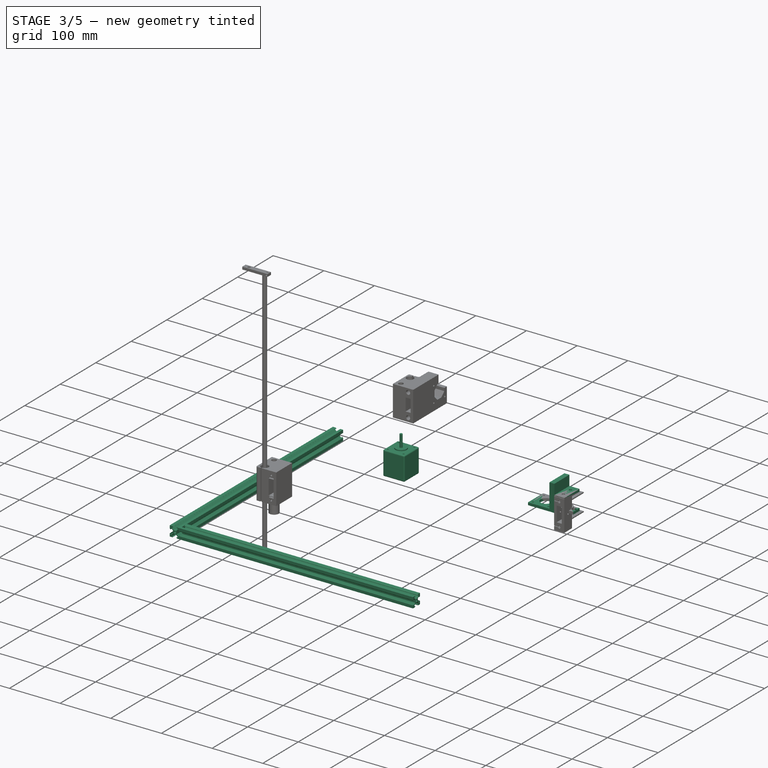
[diagram: stage 3 of 5 — iso view after this stage's code; geometry added in this stage tinted green]
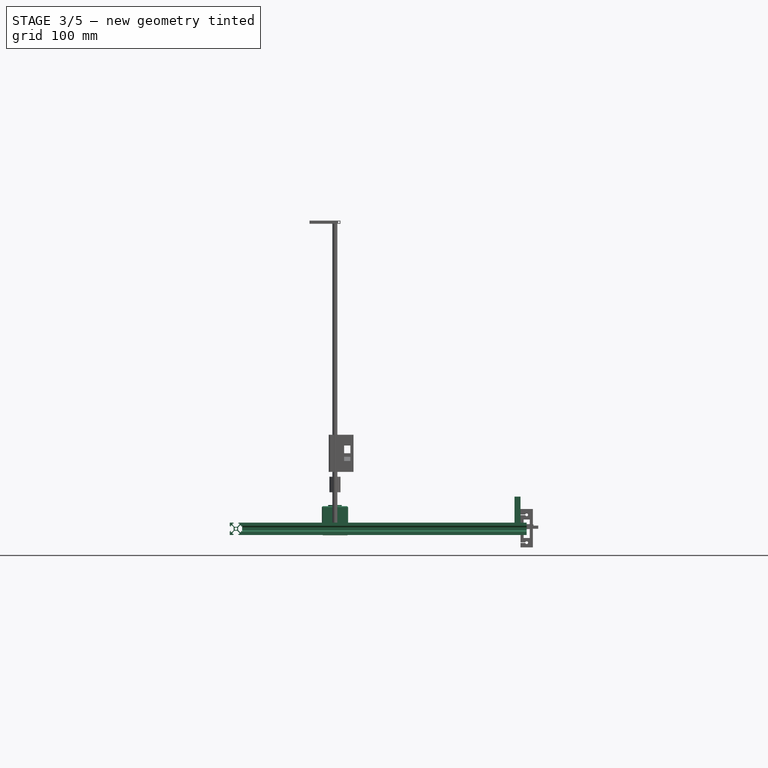
[diagram: stage 3 of 5 — front view after this stage's code; geometry added in this stage tinted green]
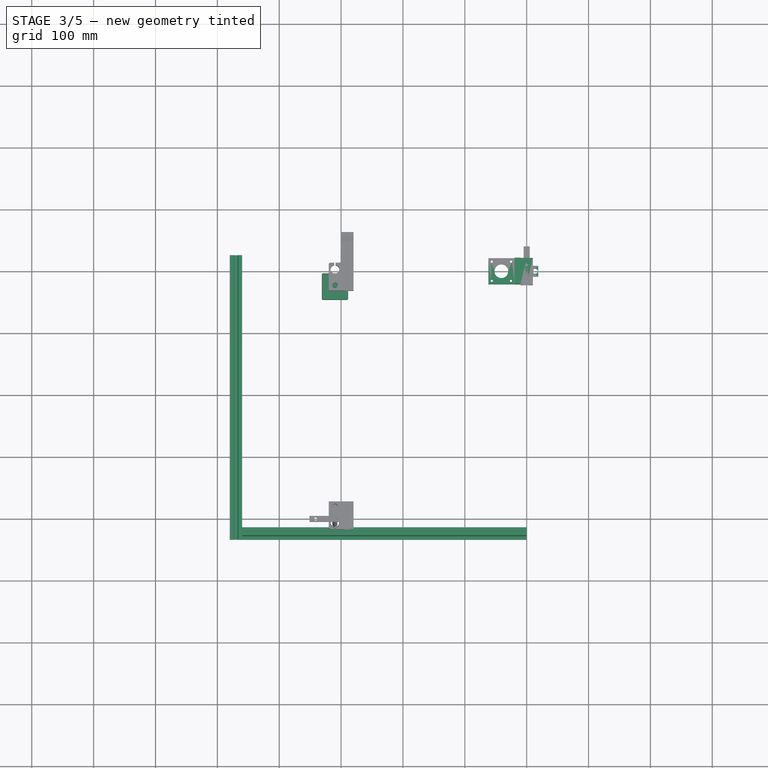
[diagram: stage 3 of 5 — top view after this stage's code; geometry added in this stage tinted green]
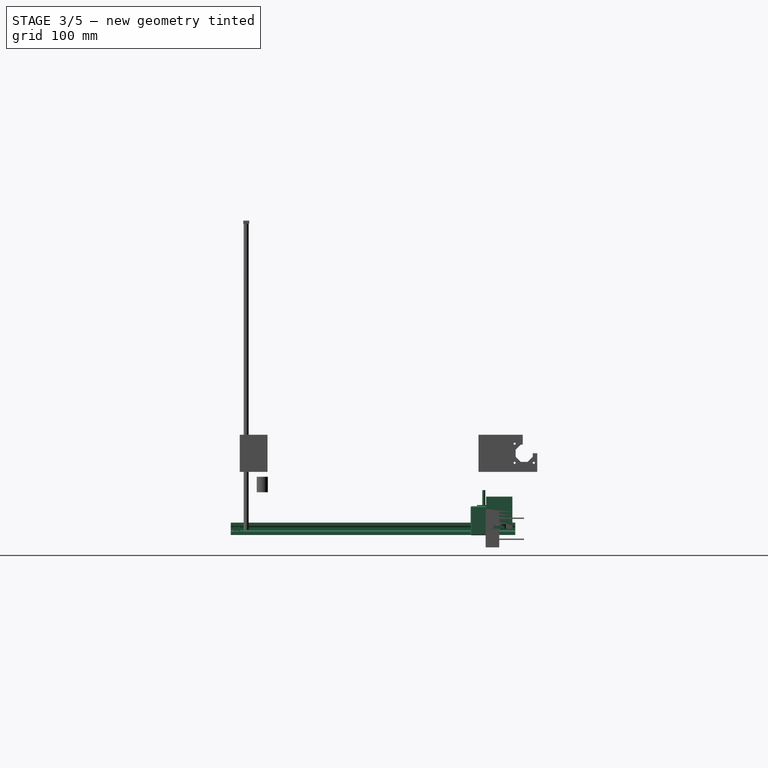
[diagram: stage 3 of 5 — right view after this stage's code; geometry added in this stage tinted green]
FEATURE [PartDesign::Body] Body009  label="soporteVarilaEjezz"
  Group = -> [Sketch025,Pad013,Sketch026,Pad014,Sketch027,Pocket013]
  Origin = -> Origin009
  Tip = -> Pocket013
FEATURE [App::DocumentObjectGroup] Group016  label="sopoteVarilla8mmEJEzbase"
  Group = -> [Body009]
FEATURE [App::DocumentObjectGroup] Group017  label="Varillas001"
  Group = -> [Clone025,Clone024]
FEATURE [Sketcher::SketchObject] Sketch028
  MapMode = 5
  Support = -> [XY_Plane010]
  sketch-geometry (6):
    g0: LineSegment StartX=-10 StartY=21.25 StartZ=0 EndX=10 EndY=21.25 EndZ=0
    g1: LineSegment StartX=10 StartY=21.25 StartZ=0 EndX=10 EndY=-21.25 EndZ=0
    g2: LineSegment StartX=10 StartY=-21.25 StartZ=0 EndX=-10 EndY=-21.25 EndZ=0
    g3: LineSegment StartX=-10 StartY=-21.25 StartZ=0 EndX=-10 EndY=21.25 EndZ=0
    g4: Circle CenterX=0 CenterY=10 CenterZ=0 NormalX=0 NormalY=0 NormalZ=1 AngleXU=0 Radius=2.5
    g5: Circle CenterX=0 CenterY=-10 CenterZ=0 NormalX=0 NormalY=0 NormalZ=1 AngleXU=0 Radius=2.5
  constraints (15):
    c: Coincident(g0,g1)
    c: Coincident(g1,g2)
    c: Coincident(g2,g3)
    c: Coincident(g3,g0)
    c: Horizontal(g2)
    c: Vertical(g3)
    c: Symmetric(g0,g0,g-2)
    c: Symmetric(g0,g1,g-1)
    c: DistanceX(g0,g0) = 20
    c: DistanceY(g1,g0) = 42.5
    c: PointOnObject(g4,g-2)
    c: Equal(g5,g4)
    c: Symmetric(g5,g4,g-1)
    c: Diameter(g4) = 5
    c: DistanceY(g5,g-1) = 10
FEATURE [PartDesign::Pad] Pad015
  Length = 5
  Length2 = 100
  Profile = -> Sketch028
  Type = 0
FEATURE [Sketcher::SketchObject] Sketch029
  MapMode = 5
  Placement = pos=(-10,0,0) rot=(0.57735,-0.57735,-0.57735;2.0944rad)
  Support = -> [Pad015]
FEATURE [PartDesign::Pad] Pad016
  BaseFeature = -> Pad015
  Length = 52
  Length2 = 100
  Profile = -> Pad015 [Face4]
  Type = 0
FEATURE [Sketcher::SketchObject] Sketch030
  ExternalGeometry = -> [Pad016]
  MapMode = 5
  Placement = pos=(0,0,5) rot=(0,0,1;0rad)
  Support = -> [Pad016]
  expr: Constraints[17] = 9.699999999999999 / 2
  sketch-geometry (9):
    g0: LineSegment [constr] StartX=-19.7 StartY=21.6805 StartZ=0 EndX=-19.7 EndY=-24.1074 EndZ=0
    g1: LineSegment [constr] StartX=-40.85 StartY=29.4496 StartZ=0 EndX=-40.85 EndY=-29.1876 EndZ=0
    g2: Circle CenterX=-56.35 CenterY=15.5 CenterZ=0 NormalX=0 NormalY=0 NormalZ=1 AngleXU=0 Radius=1.75
    g3: Circle CenterX=-25.35 CenterY=15.5 CenterZ=0 NormalX=0 NormalY=0 NormalZ=1 AngleXU=0 Radius=1.75
    g4: Circle CenterX=-25.35 CenterY=-15.5 CenterZ=0 NormalX=0 NormalY=0 NormalZ=1 AngleXU=0 Radius=1.75
    g5: Circle CenterX=-56.35 CenterY=-15.5 CenterZ=0 NormalX=0 NormalY=0 NormalZ=1 AngleXU=0 Radius=1.75
    g6: GeomPoint X=-40.85 Y=0 Z=0
    g7: Circle CenterX=-40.85 CenterY=0 CenterZ=0 NormalX=0 NormalY=0 NormalZ=1 AngleXU=0 Radius=11
    g8: Circle CenterX=-14.85 CenterY=0 CenterZ=0 NormalX=0 NormalY=0 NormalZ=1 AngleXU=0 Radius=4
  constraints (24):
    c: Vertical(g0)
    c: DistanceX(g-5,g0) = 42.3
    c: Vertical(g1)
    c: DistanceX(g-5,g1) = 21.15
    c: Equal(g5,g4)
    c: Equal(g4,g2)
    c: Equal(g2,g3)
    c: Symmetric(g4,g3,g-1)
    c: Symmetric(g5,g2,g-1)
    c: Symmetric(g4,g5,g1)
    c: Diameter(g5) = 3.5
    c: DistanceX(g5,g4) = 31
    c: DistanceY(g5,g2) = 31
    c: PointOnObject(g6,g1)
    c: DistanceY(g6,g-1) = 0
    c: Coincident(g7,g6)
    c: Diameter(g7) = 22
    c: DistanceX(g0,g8) = 4.85
    c: DistanceY(g-1,g8) = 0
    c: Diameter(g8) = 8
    c: DistanceY(g1,g1) = 58.6371
    c: DistanceY(g1,g0) = -7.76902
    c: DistanceY(g0,g0) = 45.788
    c: DistanceY(g0,g-6) = 2.85742
FEATURE [PartDesign::Pocket] Pocket014
  BaseFeature = -> Pad016
  Length = 5
  Length2 = 100
  Profile = -> Sketch030
  Type = 1
FEATURE [Sketcher::SketchObject] Sketch031
  ExternalGeometry = -> [Pocket014]
  MapMode = 5
  Placement = pos=(0,0,5) rot=(0,0,1;0rad)
  Support = -> [Pocket014]
  sketch-geometry (5):
    g0: LineSegment [constr] StartX=-19.7 StartY=22.5205 StartZ=0 EndX=-19.7 EndY=-22.1854 EndZ=0
    g1: LineSegment StartX=-19.7 StartY=21.25 StartZ=0 EndX=-10 EndY=21.25 EndZ=0
    g2: LineSegment StartX=-10 StartY=21.25 StartZ=0 EndX=-10 EndY=-21.25 EndZ=0
    g3: LineSegment StartX=-10 StartY=-21.25 StartZ=0 EndX=-19.7 EndY=-21.25 EndZ=0
    g4: LineSegment StartX=-19.7 StartY=-21.25 StartZ=0 EndX=-19.7 EndY=21.25 EndZ=0
  constraints (15):
    c: Vertical(g0)
    c: DistanceX(g0,g-3) = 9.7
    c: Coincident(g1,g2)
    c: Coincident(g2,g3)
    c: Coincident(g3,g4)
    c: Coincident(g4,g1)
    c: Horizontal(g1)
    c: Horizontal(g3)
    c: Vertical(g2)
    c: Vertical(g4)
    c: PointOnObject(g1,g0)
    c: Coincident(g2,g-3)
    c: DistanceY(g0,g0) = 44.7059
    c: DistanceY(g0,g-1) = -22.5205
    c: DistanceY(g1,g-4) = 0
FEATURE [PartDesign::Pad] Pad017
  BaseFeature = -> Pocket014
  Length = 0
  Length2 = 43.2
  Offset = 42
  Profile = -> Sketch031
  Type = 3
  UpToFace = -> Pocket014 [Face6]
FEATURE [PartDesign::Pocket] Pocket015
  BaseFeature = -> Pad017
  Length = 5
  Length2 = 100
  Profile = -> Pad017 [Face5]
  Type = 0
FEATURE [Sketcher::SketchObject] Sketch032
  ExternalGeometry = -> [Pocket015]
  MapMode = 5
  Placement = pos=(0,-21.25,0) rot=(1,0,0;1.5708rad)
  Support = -> [Pocket015]
  sketch-geometry (5):
    g0: LineSegment StartX=-21.2217 StartY=22 StartZ=0 EndX=21.2217 EndY=22 EndZ=0
    g1: LineSegment StartX=21.2217 StartY=22 StartZ=0 EndX=21.2217 EndY=17 EndZ=0
    g2: LineSegment StartX=21.2217 StartY=17 StartZ=0 EndX=-21.2217 EndY=17 EndZ=0
    g3: LineSegment StartX=-21.2217 StartY=17 StartZ=0 EndX=-21.2217 EndY=22 EndZ=0
    g4: LineSegment [constr] StartX=-24.645 StartY=19.5 StartZ=0 EndX=25.9359 EndY=19.5 EndZ=0
FEATURE [PartDesign::Pad] Pad018
  BaseFeature = -> Pocket015
  Length = 20
  Length2 = 100
  Profile = -> Sketch032
  Type = 0
FEATURE [PartDesign::Pocket] Pocket016
  BaseFeature = -> Pad018
  Length = 5
  Length2 = 100
  Profile = -> Pad018 [Face18]
  Type = 1
FEATURE [Sketcher::SketchObject] Sketch033
  MapMode = 5
  Placement = pos=(0,-21.25,0) rot=(0,0.707107,0.707107;3.14159rad)
  Support = -> [Pocket016]
  sketch-geometry (2):
    g0: Circle CenterX=0 CenterY=10.635 CenterZ=0 NormalX=0 NormalY=0 NormalZ=1 AngleXU=0 Radius=2.75
    g1: Circle CenterX=0 CenterY=-10.635 CenterZ=0 NormalX=0 NormalY=0 NormalZ=1 AngleXU=0 Radius=2.75
  constraints (5):
    c: Equal(g1,g0)
    c: Symmetric(g1,g0,g-1)
    c: Diameter(g1) = 5.5
    c: DistanceX(g1,g-1) = 0
    c: DistanceY(g1,g0) = 21.27
FEATURE [PartDesign::Pocket] Pocket017
  BaseFeature = -> Pocket016
  Length = 5
  Length2 = 100
  Profile = -> Sketch033
  Type = 1
FEATURE [PartDesign::Pad] Pad019
  BaseFeature = -> Pocket017
  Length = 10
  Length2 = 100
  Profile = -> Pad018 [Face19]
  Type = 0
FEATURE [PartDesign::Pocket] Pocket018
  BaseFeature = -> Pad019
  Length = 5
  Length2 = 100
  Profile = -> Pad019 [Face24]
  Type = 0
FEATURE [Sketcher::SketchObject] Sketch034
  ExternalGeometry = -> [Pocket018]
  MapMode = 5
  Placement = pos=(0,-21.25,0) rot=(1,0,0;1.5708rad)
  Support = -> [Pocket018]
  sketch-geometry (4):
    g0: LineSegment StartX=10 StartY=2 StartZ=0 EndX=-10 EndY=2 EndZ=0
    g1: LineSegment StartX=-10 StartY=2 StartZ=0 EndX=-10 EndY=-3 EndZ=0
    g2: LineSegment StartX=-10 StartY=-3 StartZ=0 EndX=10 EndY=-3 EndZ=0
    g3: LineSegment StartX=10 StartY=-3 StartZ=0 EndX=10 EndY=2 EndZ=0
  constraints (11):
    c: Coincident(g0,g1)
    c: Coincident(g1,g2)
    c: Coincident(g2,g3)
    c: Coincident(g3,g0)
    c: Horizontal(g2)
    c: Vertical(g1)
    c: Vertical(g3)
    c: Symmetric(g0,g0,g-2)
    c: DistanceX(g0,g-3) = 0
    c: DistanceY(g0,g-3) = 20
    c: DistanceY(g1,g0) = 5
FEATURE [PartDesign::Pad] Pad020
  BaseFeature = -> Pocket018
  Length = 20
  Length2 = 100
  Profile = -> Sketch034
  Type = 0
FEATURE [Sketcher::SketchObject] Sketch035
  ExternalGeometry = -> [Pad020]
  MapMode = 5
  Placement = pos=(0,0,32) rot=(0,0,1;0rad)
  Support = -> [Pad020]
  sketch-geometry (2):
    g0: Circle CenterX=0 CenterY=10 CenterZ=0 NormalX=0 NormalY=0 NormalZ=1 AngleXU=0 Radius=2.75
    g1: Circle CenterX=0 CenterY=-10 CenterZ=0 NormalX=0 NormalY=0 NormalZ=1 AngleXU=0 Radius=2.75
  constraints (6):
    c: Equal(g0,g1)
    c: Symmetric(g1,g0,g-1)
    c: Diameter(g0) = 5.5
    c: DistanceY(g1,g-1) = 10
    c: DistanceX(g0,g-1) = 0
    c: DistanceY(g-4,g-3) = 42.5
FEATURE [PartDesign::Pocket] Pocket019
  BaseFeature = -> Pad020
  Length = 5
  Length2 = 100
  Profile = -> Sketch035
  Type = 1
FEATURE [Sketcher::SketchObject] Sketch036
  MapMode = 5
  Support = -> [XY_Plane011]
  expr: Constraints[9] = 20 + 7.5 + 10
  sketch-geometry (7):
    g0: LineSegment StartX=-18.75 StartY=9 StartZ=0 EndX=18.75 EndY=9 EndZ=0
    g1: LineSegment StartX=18.75 StartY=9 StartZ=0 EndX=18.75 EndY=-9 EndZ=0
    g2: LineSegment StartX=18.75 StartY=-9 StartZ=0 EndX=-18.75 EndY=-9 EndZ=0
    g3: LineSegment StartX=-18.75 StartY=-9 StartZ=0 EndX=-18.75 EndY=9 EndZ=0
    g4: Circle CenterX=-8.75 CenterY=4.5 CenterZ=0 NormalX=0 NormalY=0 NormalZ=1 AngleXU=0 Radius=2.75
    g5: Circle CenterX=-8.75 CenterY=-4.5 CenterZ=0 NormalX=0 NormalY=0 NormalZ=1 AngleXU=0 Radius=2.75
    g6: Circle CenterX=13.95 CenterY=8e-16 CenterZ=0 NormalX=0 NormalY=0 NormalZ=1 AngleXU=0 Radius=4
  constraints (18):
    c: Coincident(g0,g1)
    c: Coincident(g1,g2)
    c: Coincident(g2,g3)
    c: Coincident(g3,g0)
    c: Horizontal(g2)
    c: Vertical(g3)
    c: Symmetric(g0,g0,g-2)
    c: Symmetric(g0,g1,g-1)
    c: DistanceY(g2,g0) = 18
    c: DistanceX(g0,g0) = 37.5
    c: Equal(g5,g4)
    c: Symmetric(g5,g4,g-1)
    c: Diameter(g5) = 5.5
    c: DistanceX(g0,g5) = 10
    c: DistanceY(g6,g0) = 9
    c: Diameter(g6) = 8
    c: DistanceX(g2,g6) = 32.7
    c: DistanceY(g5,g4) = 9
FEATURE [PartDesign::Pad] Pad021
  Length = 5
  Length2 = 100
  Profile = -> Sketch036
  Type = 0
FEATURE [PartDesign::Body] Body011  label="sopVarillaeezAlto"
  Group = -> [Sketch036,Pad021]
  Origin = -> Origin011
  Tip = -> Pad021
FEATURE [Sketcher::SketchObject] Sketch037
  MapMode = 5
  Support = -> [XY_Plane012]
  sketch-geometry (4):
    g0: LineSegment StartX=-23.5 StartY=21.15 StartZ=0 EndX=23.5 EndY=21.15 EndZ=0
    g1: LineSegment StartX=23.5 StartY=21.15 StartZ=0 EndX=23.5 EndY=-21.15 EndZ=0
    g2: LineSegment StartX=23.5 StartY=-21.15 StartZ=0 EndX=-23.5 EndY=-21.15 EndZ=0
    g3: LineSegment StartX=-23.5 StartY=-21.15 StartZ=0 EndX=-23.5 EndY=21.15 EndZ=0
  constraints (10):
    c: Coincident(g0,g1)
    c: Coincident(g1,g2)
    c: Coincident(g2,g3)
    c: Coincident(g3,g0)
    c: Horizontal(g2)
    c: Vertical(g1)
    c: Symmetric(g0,g0,g-2)
    c: Symmetric(g2,g0,g-1)
    c: DistanceX(g0,g0) = 47
    c: DistanceY(g2,g0) = 42.3
FEATURE [PartDesign::Pad] Pad022
  Length = 42.3
  Length2 = 100
  Profile = -> Sketch037
  Type = 0
FEATURE [Sketcher::SketchObject] Sketch038
  ExternalGeometry = -> [Pad022]
  MapMode = 5
  Placement = pos=(-23.5,0,0) rot=(0.57735,-0.57735,-0.57735;2.0944rad)
  Support = -> [Pad022]
  expr: Constraints[1] = 42.3 / 2
  sketch-geometry (6):
    g0: LineSegment [constr] StartX=-37.1573 StartY=21.15 StartZ=0 EndX=40.1235 EndY=21.15 EndZ=0
    g1: Circle CenterX=-15.5 CenterY=36.65 CenterZ=0 NormalX=0 NormalY=0 NormalZ=1 AngleXU=0 Radius=1.5
    g2: Circle CenterX=15.5 CenterY=36.65 CenterZ=0 NormalX=0 NormalY=0 NormalZ=1 AngleXU=0 Radius=1.5
    g3: Circle CenterX=-15.5 CenterY=5.65 CenterZ=0 NormalX=0 NormalY=0 NormalZ=1 AngleXU=0 Radius=1.5
    g4: Circle CenterX=15.5 CenterY=5.65 CenterZ=0 NormalX=0 NormalY=0 NormalZ=1 AngleXU=0 Radius=1.5
    g5: GeomPoint X=0 Y=21.15 Z=0
  constraints (15):
    c: Horizontal(g0)
    c: DistanceY(g-5,g0) = 21.15
    c: Equal(g4,g3)
    c: Equal(g3,g1)
    c: Equal(g1,g2)
    c: Radius(g1) = 1.5
    c: Symmetric(g3,g1,g0)
    c: Symmetric(g1,g2,g-2)
    c: Symmetric(g4,g2,g0)
    c: DistanceX(g3,g4) = 31
    c: PointOnObject(g5,g0)
    c: DistanceX(g5,g-1) = 0
    c: DistanceY(g3,g1) = 31
    c: DistanceX(g0,g-4) = 16.0073
    c: DistanceX(g0,g0) = 77.2808
FEATURE [PartDesign::Pocket] Pocket020  label="tornillosM3"
  BaseFeature = -> Pad022
  Length = 4.5
  Length2 = 100
  Profile = -> Sketch038
  Type = 0
FEATURE [Sketcher::SketchObject] Sketch039
  ExternalGeometry = -> [Pocket020]
  MapMode = 5
  Placement = pos=(-23.5,0,0) rot=(0.57735,-0.57735,-0.57735;2.0944rad)
  Support = -> [Pocket020]
  expr: Constraints[1] = 42.3 / 2
  sketch-geometry (1):
    g0: Circle CenterX=0 CenterY=21.15 CenterZ=0 NormalX=0 NormalY=0 NormalZ=1 AngleXU=0 Radius=11
  constraints (3):
    c: DistanceX(g-1,g0) = 0
    c: DistanceY(g-1,g0) = 21.15
    c: Diameter(g0) = 22
FEATURE [PartDesign::Pad] Pad023
  BaseFeature = -> Pocket020
  Length = 2
  Length2 = 100
  Profile = -> Sketch039
  Type = 0
FEATURE [Sketcher::SketchObject] Sketch040
  MapMode = 5
  Placement = pos=(-25.5,0,0) rot=(0.57735,-0.57735,-0.57735;2.0944rad)
  Support = -> [Pad023]
  expr: Constraints[0] = 42.3 / 2
  sketch-geometry (1):
    g0: Circle CenterX=0 CenterY=21.15 CenterZ=0 NormalX=0 NormalY=0 NormalZ=1 AngleXU=0 Radius=2.5
  constraints (3):
    c: DistanceY(g-1,g0) = 21.15
    c: DistanceX(g0,g-1) = 0
    c: Diameter(g0) = 5
FEATURE [PartDesign::Pad] Pad024
  BaseFeature = -> Pad023
  Length = 24
  Length2 = 100
  Profile = -> Sketch040
  Type = 0
FEATURE [PartDesign::Body] Body012  label="motorNmea17"
  Group = -> [Sketch037,Pad022,Sketch038,Pocket020,Sketch039,Pad023,Sketch040,Pad024]
  Origin = -> Origin012
  Tip = -> Pad024
FEATURE [Part::Fillet] Fillet  label="MotorNmea17"
  Base = -> Pad024
  Edges = 12 edges r=2: [Edge1,Edge2,Edge3,Edge4,Edge5,Edge6,Edge7,Edge13,Edge14,Edge15,Edge16,Edge17]
FEATURE [App::DocumentObjectGroup] Group019  label="Motores"
  Group = -> [Body012,Fillet]
FEATURE [Part::FeaturePython] Clone031  label="MotorNmea018"  # Draft clone (typed FeaturePython)
  AttacherType = Attacher::AttachEngine3D
  Fuse = false
  Objects = -> [Fillet]
  Placement = pos=(-30,-195,-10) rot=(0,0,1;1.5708rad)
  Scale = (1,1,1)
FEATURE [Part::FeaturePython] Clone032  label="MotorEjez1"  # Draft clone (typed FeaturePython)
  AttacherType = Attacher::AttachEngine3D
  Fuse = false
  Objects = -> [Clone031]
  Placement = pos=(-331,-383,13) rot=(0,1,0;1.5708rad)
  Scale = (1,1,1)
FEATURE [Part::FeaturePython] Clone033  label="MotorEjez2"  # Draft clone (typed FeaturePython)
  AttacherType = Attacher::AttachEngine3D
  Fuse = false
  Objects = -> [Clone032]
  Placement = pos=(-331,-25,13) rot=(0,1,0;1.5708rad)
  Scale = (1,1,1)
FEATURE [Part::FeaturePython] Clone037  label="perfil2020BienRestringidoBaseUno002"  # Draft clone (typed FeaturePython)
  AttacherType = Attacher::AttachEngine3D
  Fuse = false
  Objects = -> [Clone035]
  Placement = pos=(-470,26,0) rot=(0,0,-1;1.5708rad)
  Scale = (1,1,1)
FEATURE [Part::FeaturePython] Clone038  label="perfil2020BienRestringidoBaseUno003"  # Draft clone (typed FeaturePython)
  AttacherType = Attacher::AttachEngine3D
  Fuse = false
  Objects = -> [Clone036]
  Placement = pos=(0,-424,0) rot=(0,0,1;3.14159rad)
  Scale = (1,1,1)
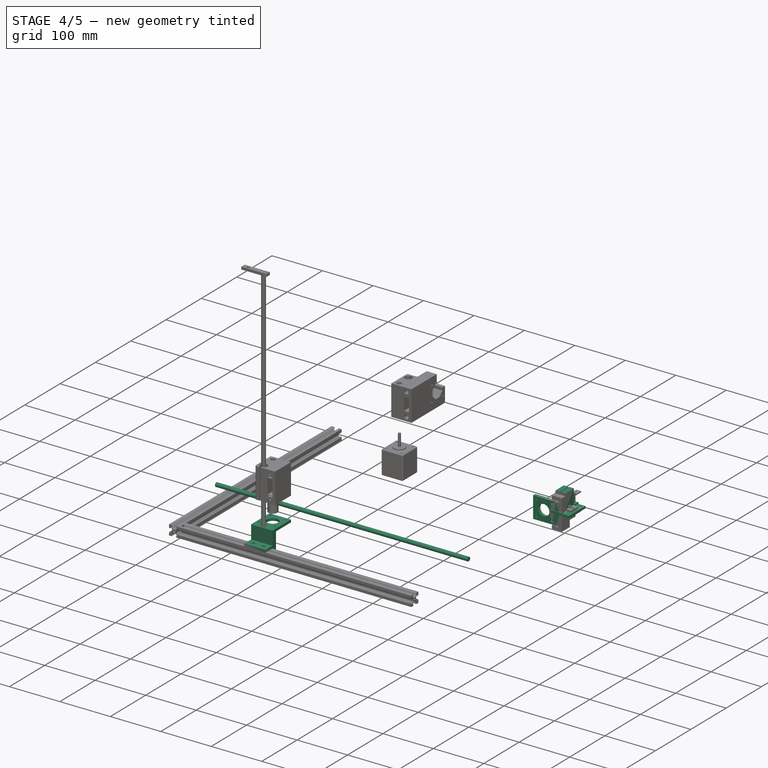
[diagram: stage 4 of 5 — iso view after this stage's code; geometry added in this stage tinted green]
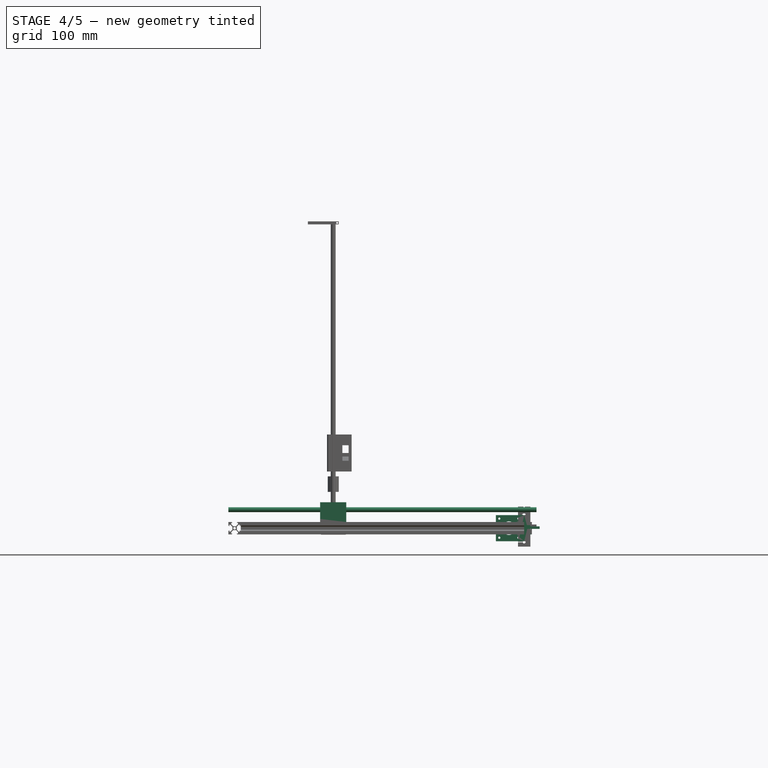
[diagram: stage 4 of 5 — front view after this stage's code; geometry added in this stage tinted green]
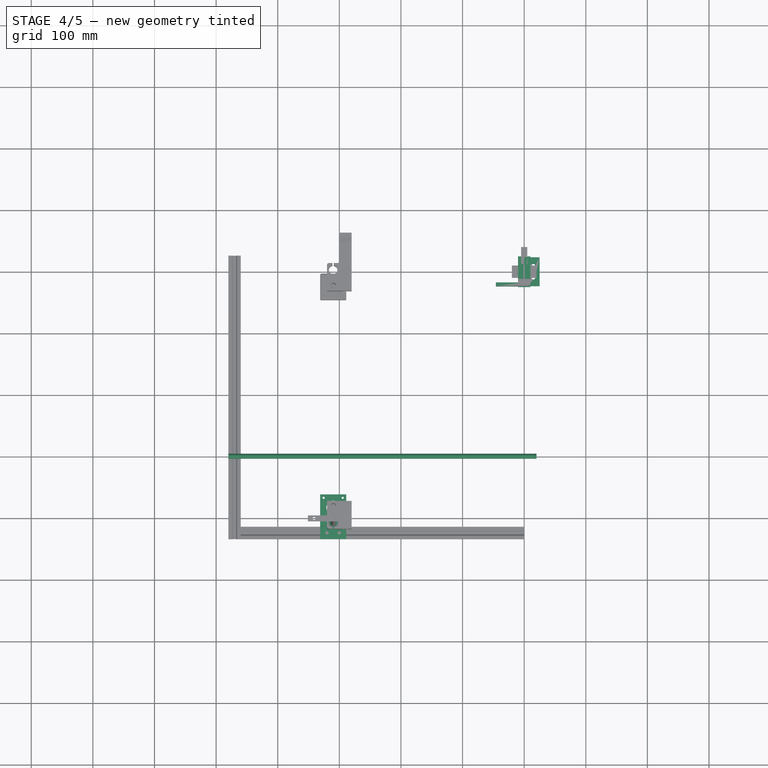
[diagram: stage 4 of 5 — top view after this stage's code; geometry added in this stage tinted green]
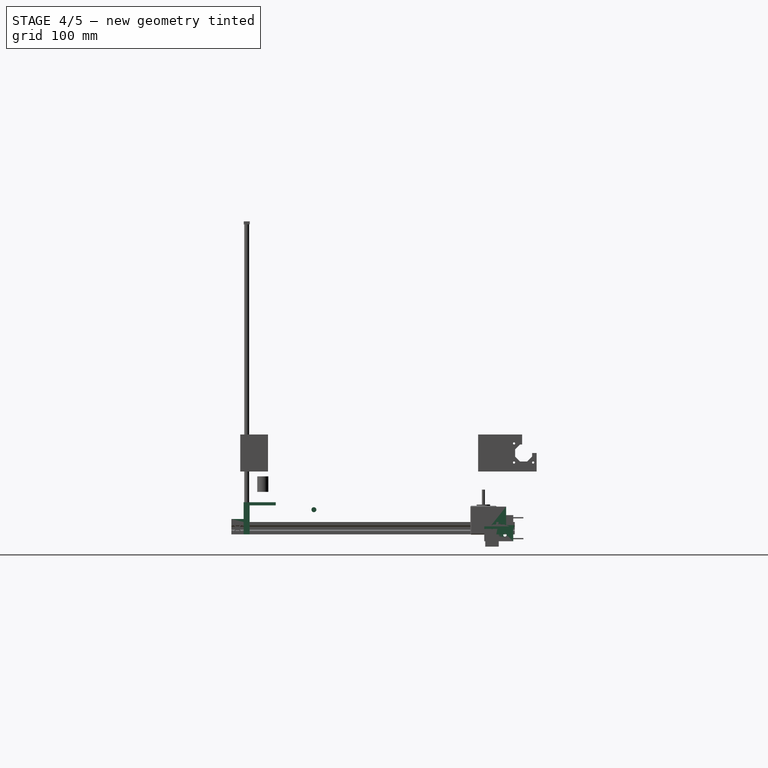
[diagram: stage 4 of 5 — right view after this stage's code; geometry added in this stage tinted green]
FEATURE [PartDesign::Body] Body003  label="baseMDF"
  Group = -> [Sketch006,Pad004]
  Origin = -> Origin003
  Tip = -> Pad004
FEATURE [App::DocumentObjectGroup] Group  label="Escuadras"
  Group = -> [Clone002,Clone003,Clone004,Clone005]
FEATURE [App::DocumentObjectGroup] Group005  label="EscuadrasModelo"
  Group = -> [Body001,CompoundFilter]
FEATURE [App::DocumentObjectGroup] Group006  label="BaseModelo"
  Group = -> [Body003]
FEATURE [Sketcher::SketchObject] Sketch007  label="p2040"
  MapMode = 5
  Placement = pos=(0,0,0) rot=(1,0,0;1.5708rad)
  Support = -> [XZ_Plane004]
  sketch-geometry (90):
    g0: LineSegment [constr] StartX=-10 StartY=10 StartZ=0 EndX=10 EndY=10 EndZ=0
    g1: LineSegment [constr] StartX=10 StartY=10 StartZ=0 EndX=10 EndY=-10 EndZ=0
    g2: LineSegment [constr] StartX=10 StartY=-10 StartZ=0 EndX=-10 EndY=-10 EndZ=0
    g3: LineSegment [constr] StartX=-10 StartY=-10 StartZ=0 EndX=-10 EndY=10 EndZ=0
    g4: Circle CenterX=0 CenterY=0 CenterZ=0 NormalX=0 NormalY=0 NormalZ=1 AngleXU=0 Radius=2.1
    g5: LineSegment StartX=-10 StartY=10 StartZ=0 EndX=-4.58 EndY=10 EndZ=0
    g6: LineSegment StartX=-4.58 StartY=10 StartZ=0 EndX=-2.78 EndY=8.2 EndZ=0
    g7: LineSegment StartX=-2.78 StartY=8.2 StartZ=0 EndX=-5.5 EndY=8.2 EndZ=0
    g8: LineSegment StartX=-5.5 StartY=8.2 StartZ=0 EndX=-5.5 EndY=6.56703 EndZ=0
    g9: LineSegment StartX=-5.5 StartY=6.56703 StartZ=0 EndX=-2.83297 EndY=3.9 EndZ=0
    g10: LineSegment StartX=-10 StartY=10 StartZ=0 EndX=-10 EndY=4.58 EndZ=0
    g11: LineSegment StartX=-10 StartY=4.58 StartZ=0 EndX=-8.2 EndY=2.78 EndZ=0
    g12: LineSegment StartX=-8.2 StartY=2.78 StartZ=0 EndX=-8.2 EndY=5.5 EndZ=0
    g13: LineSegment StartX=-8.2 StartY=5.5 StartZ=0 EndX=-6.55429 EndY=5.5 EndZ=0
    g14: LineSegment StartX=-6.55429 StartY=5.5 StartZ=0 EndX=-3.9 EndY=2.84571 EndZ=0
    g15: LineSegment StartX=5.1411 StartY=9.93555 StartZ=0 EndX=3.47 EndY=8.26445 EndZ=0
    g16: LineSegment StartX=3.47 StartY=8.26445 StartZ=0 EndX=5.83086 EndY=8.26445 EndZ=0
    g17: LineSegment StartX=5.83086 StartY=8.26445 StartZ=0 EndX=5.83086 EndY=6.89789 EndZ=0
    g18: LineSegment StartX=5.83086 StartY=6.89789 StartZ=0 EndX=2.83297 EndY=3.9 EndZ=0
    g19: LineSegment StartX=10 StartY=4.58 StartZ=0 EndX=8.2 EndY=2.78 EndZ=0
    g20: LineSegment StartX=8.2 StartY=2.78 StartZ=0 EndX=8.2 EndY=5.66945 EndZ=0
    g21: LineSegment StartX=8.2 StartY=5.66945 StartZ=0 EndX=6.72374 EndY=5.66945 EndZ=0
    g22: LineSegment StartX=6.72374 StartY=5.66945 StartZ=0 EndX=3.9 EndY=2.84571 EndZ=0
    g23: LineSegment StartX=10 StartY=9.93555 StartZ=0 EndX=5.1411 EndY=9.93555 EndZ=0
    g24: LineSegment StartX=-2.83297 StartY=3.9 StartZ=0 EndX=2.83297 EndY=3.9 EndZ=0
    g25: LineSegment StartX=-4.84469 StartY=-9.95673 StartZ=0 EndX=-3.13123 EndY=-8.24327 EndZ=0
    g26: LineSegment StartX=-3.13123 StartY=-8.24327 StartZ=0 EndX=-5.32121 EndY=-8.24327 EndZ=0
    g27: LineSegment StartX=-5.32121 StartY=-8.24327 StartZ=0 EndX=-5.32121 EndY=-6.38824 EndZ=0
    g28: LineSegment StartX=-5.32121 StartY=-6.38824 StartZ=0 EndX=-2.83297 EndY=-3.9 EndZ=0
    g29: LineSegment StartX=-8.2 StartY=-5.10572 StartZ=0 EndX=-6.16001 EndY=-5.10572 EndZ=0
    g30: LineSegment StartX=-6.16001 StartY=-5.10572 StartZ=0 EndX=-3.9 EndY=-2.84571 EndZ=0
    g31: LineSegment StartX=-10 StartY=-9.95673 StartZ=0 EndX=-4.84469 EndY=-9.95673 EndZ=0
    g32: LineSegment StartX=-10 StartY=-9.95673 StartZ=0 EndX=-10 EndY=-4.58 EndZ=0
    g33: LineSegment StartX=-10 StartY=-4.58 StartZ=0 EndX=-8.2 EndY=-2.78 EndZ=0
    g34: LineSegment StartX=-8.2 StartY=-2.78 StartZ=0 EndX=-8.2 EndY=-5.10572 EndZ=0
    g35: LineSegment StartX=-3.9 StartY=2.84571 StartZ=0 EndX=-3.9 EndY=-2.84571 EndZ=0
    g36: LineSegment StartX=3.11877 StartY=-8.2391 StartZ=0 EndX=5.61815 EndY=-8.2391 EndZ=0
    g37: LineSegment StartX=5.61815 StartY=-8.2391 StartZ=0 EndX=5.61815 EndY=-6.68518 EndZ=0
    g38: LineSegment StartX=5.61815 StartY=-6.68518 StartZ=0 EndX=2.83297 EndY=-3.9 EndZ=0
    g39: LineSegment StartX=8.2 StartY=-5.3858 StartZ=0 EndX=6.44009 EndY=-5.3858 EndZ=0
    g40: LineSegment StartX=6.44009 StartY=-5.3858 StartZ=0 EndX=3.9 EndY=-2.84571 EndZ=0
    g41: LineSegment StartX=8.2 StartY=-2.78 StartZ=0 EndX=8.2 EndY=-5.3858 EndZ=0
    g42: LineSegment StartX=4.84056 StartY=-9.9609 StartZ=0 EndX=3.11877 EndY=-8.2391 EndZ=0
    g43: LineSegment StartX=10 StartY=-9.9609 StartZ=0 EndX=4.84056 EndY=-9.9609 EndZ=0
    g44: LineSegment StartX=-2.83297 StartY=-3.9 StartZ=0 EndX=2.83297 EndY=-3.9 EndZ=0
    g45: LineSegment StartX=3.9 StartY=-2.84571 StartZ=0 EndX=3.9 EndY=2.84571 EndZ=0
    g46: LineSegment StartX=8.2 StartY=-2.78 StartZ=0 EndX=10 EndY=-4.58 EndZ=0
    g47: Circle CenterX=20 CenterY=0 CenterZ=0 NormalX=0 NormalY=0 NormalZ=1 AngleXU=0 Radius=2.1
    g48: LineSegment StartX=30 StartY=10 StartZ=0 EndX=24.58 EndY=10 EndZ=0
    g49: LineSegment StartX=24.58 StartY=10 StartZ=0 EndX=22.78 EndY=8.2 EndZ=0
    g50: LineSegment StartX=22.78 StartY=8.2 StartZ=0 EndX=25.5 EndY=8.2 EndZ=0
    g51: LineSegment StartX=25.5 StartY=8.2 StartZ=0 EndX=25.5 EndY=6.56703 EndZ=0
    g52: LineSegment StartX=25.5 StartY=6.56703 StartZ=0 EndX=22.833 EndY=3.9 EndZ=0
    g53: LineSegment StartX=30 StartY=10 StartZ=0 EndX=30 EndY=4.58 EndZ=0
    g54: LineSegment StartX=30 StartY=4.58 StartZ=0 EndX=28.2 EndY=2.78 EndZ=0
    g55: LineSegment StartX=28.2 StartY=2.78 StartZ=0 EndX=28.2 EndY=5.5 EndZ=0
    g56: LineSegment StartX=28.2 StartY=5.5 StartZ=0 EndX=26.5543 EndY=5.5 EndZ=0
    g57: LineSegment StartX=26.5543 StartY=5.5 StartZ=0 EndX=23.9 EndY=2.84571 EndZ=0
    g58: LineSegment StartX=14.8589 StartY=9.93555 StartZ=0 EndX=16.53 EndY=8.26445 EndZ=0
    g59: LineSegment StartX=16.53 StartY=8.26445 StartZ=0 EndX=14.1691 EndY=8.26445 EndZ=0
    g60: LineSegment StartX=14.1691 StartY=8.26445 StartZ=0 EndX=14.1691 EndY=6.89789 EndZ=0
    g61: LineSegment StartX=14.1691 StartY=6.89789 StartZ=0 EndX=17.167 EndY=3.9 EndZ=0
    g62: LineSegment StartX=10 StartY=4.58 StartZ=0 EndX=11.8 EndY=2.78 EndZ=0
    g63: LineSegment StartX=11.8 StartY=2.78 StartZ=0 EndX=11.8 EndY=5.66945 EndZ=0
    g64: LineSegment StartX=11.8 StartY=5.66945 StartZ=0 EndX=13.2763 EndY=5.66945 EndZ=0
    g65: LineSegment StartX=13.2763 StartY=5.66945 StartZ=0 EndX=16.1 EndY=2.84571 EndZ=0
    g66: LineSegment StartX=10 StartY=9.93555 StartZ=0 EndX=14.8589 EndY=9.93555 EndZ=0
    g67: LineSegment StartX=22.833 StartY=3.9 StartZ=0 EndX=17.167 EndY=3.9 EndZ=0
    g68: LineSegment StartX=24.8447 StartY=-9.95673 StartZ=0 EndX=23.1312 EndY=-8.24327 EndZ=0
    g69: LineSegment StartX=23.1312 StartY=-8.24327 StartZ=0 EndX=25.3212 EndY=-8.24327 EndZ=0
    g70: LineSegment StartX=25.3212 StartY=-8.24327 StartZ=0 EndX=25.3212 EndY=-6.38824 EndZ=0
    g71: LineSegment StartX=25.3212 StartY=-6.38824 StartZ=0 EndX=22.833 EndY=-3.9 EndZ=0
    g72: LineSegment StartX=28.2 StartY=-5.10572 StartZ=0 EndX=26.16 EndY=-5.10572 EndZ=0
    g73: LineSegment StartX=26.16 StartY=-5.10572 StartZ=0 EndX=23.9 EndY=-2.84571 EndZ=0
    g74: LineSegment StartX=30 StartY=-9.95673 StartZ=0 EndX=24.8447 EndY=-9.95673 EndZ=0
    g75: LineSegment StartX=30 StartY=-9.95673 StartZ=0 EndX=30 EndY=-4.58 EndZ=0
    g76: LineSegment StartX=30 StartY=-4.58 StartZ=0 EndX=28.2 EndY=-2.78 EndZ=0
    g77: LineSegment StartX=28.2 StartY=-2.78 StartZ=0 EndX=28.2 EndY=-5.10572 EndZ=0
    g78: LineSegment StartX=23.9 StartY=2.84571 StartZ=0 EndX=23.9 EndY=-2.84571 EndZ=0
    g79: LineSegment StartX=16.8812 StartY=-8.2391 StartZ=0 EndX=14.3819 EndY=-8.2391 EndZ=0
    g80: LineSegment StartX=14.3819 StartY=-8.2391 StartZ=0 EndX=14.3819 EndY=-6.68518 EndZ=0
    g81: LineSegment StartX=14.3819 StartY=-6.68518 StartZ=0 EndX=17.167 EndY=-3.9 EndZ=0
    g82: LineSegment StartX=11.8 StartY=-5.3858 StartZ=0 EndX=13.5599 EndY=-5.3858 EndZ=0
    g83: LineSegment StartX=13.5599 StartY=-5.3858 StartZ=0 EndX=16.1 EndY=-2.84571 EndZ=0
    g84: LineSegment StartX=11.8 StartY=-2.78 StartZ=0 EndX=11.8 EndY=-5.3858 EndZ=0
    g85: LineSegment StartX=15.1594 StartY=-9.9609 StartZ=0 EndX=16.8812 EndY=-8.2391 EndZ=0
    g86: LineSegment StartX=10 StartY=-9.9609 StartZ=0 EndX=15.1594 EndY=-9.9609 EndZ=0
    g87: LineSegment StartX=22.833 StartY=-3.9 StartZ=0 EndX=17.167 EndY=-3.9 EndZ=0
    g88: LineSegment StartX=16.1 StartY=-2.84571 StartZ=0 EndX=16.1 EndY=2.84571 EndZ=0
    g89: LineSegment StartX=11.8 StartY=-2.78 StartZ=0 EndX=10 EndY=-4.58 EndZ=0
  constraints (180):
    c: Coincident(g0,g1)
    c: Coincident(g1,g2)
    c: Coincident(g2,g3)
    c: Coincident(g3,g0)
    c: Horizontal(g2)
    c: Vertical(g1)
    c: Symmetric(g0,g2,g-1)
    c: Symmetric(g0,g0,g-2)
    c: DistanceY(g-1,g0) = 10
    c: DistanceX(g-1,g1) = 10
    c: Coincident(g4,g-1)
    c: Diameter(g4) = 4.2
    c: Coincident(g5,g0)
    c: Horizontal(g5)
    c: DistanceX(g5,g5) = 5.42
    c: Coincident(g6,g5)
    c: Angle(g6,g0) = 0.785398
    c: DistanceY(g6,g5) = 1.8
    c: Coincident(g7,g6)
    c: Horizontal(g7)
    c: DistanceX(g5,g7) = 4.5
    c: Coincident(g8,g7)
    c: Vertical(g8)
    c: Coincident(g9,g8)
    c: Angle(g9,g8) = 2.35619
    c: DistanceY(g9,g7) = 4.3
    c: Coincident(g10,g5)
    c: PointOnObject(g10,g3)
    c: DistanceY(g10,g10) = 5.42
    c: Coincident(g11,g10)
    c: Angle(g3,g11) = 0.785398
    c: DistanceX(g10,g11) = 1.8
    c: Coincident(g12,g11)
    c: Vertical(g12)
    c: Coincident(g13,g12)
    c: Horizontal(g13)
    c: Coincident(g14,g13)
    c: Parallel(g14,g9)
    c: DistanceX(g11,g14) = 4.3
    c: Distance(g8,g14) = 1.5
    c: DistanceY(g12,g5) = 4.5
    c: Horizontal(g23)
    c: Coincident(g15,g23)
    c: Coincident(g16,g15)
    c: Horizontal(g16)
    c: Coincident(g17,g16)
    c: Vertical(g17)
    c: Coincident(g18,g17)
    c: Angle(g18,g17) = -2.35619
    c: Coincident(g20,g19)
    c: Vertical(g20)
    c: Coincident(g21,g20)
    c: Horizontal(g21)
    c: Coincident(g22,g21)
    c: Parallel(g22,g18)
    c: Distance(g17,g22) = 1.5
    c: Coincident(g24,g9)
    c: Coincident(g24,g18)
    c: Horizontal(g24)
    c: Horizontal(g31)
    c: Coincident(g25,g31)
    c: Coincident(g26,g25)
    c: Horizontal(g26)
    c: Coincident(g27,g26)
    c: Vertical(g27)
    c: Coincident(g28,g27)
    c: Angle(g28,g27) = -2.35619
    c: Coincident(g32,g31)
    c: Coincident(g33,g32)
    c: Coincident(g34,g33)
    c: Vertical(g34)
    c: Coincident(g29,g34)
    c: Horizontal(g29)
    c: Coincident(g30,g29)
    c: Parallel(g30,g28)
    c: Coincident(g35,g14)
    c: Coincident(g35,g30)
    c: Horizontal(g43)
    c: Coincident(g42,g43)
    c: Coincident(g36,g42)
    c: Horizontal(g36)
    c: Coincident(g37,g36)
    c: Vertical(g37)
    c: Coincident(g38,g37)
    c: Angle(g38,g37) = 2.35619
    c: Vertical(g41)
    c: Coincident(g39,g41)
    c: Horizontal(g39)
    c: Coincident(g40,g39)
    c: Parallel(g40,g38)
    c: Coincident(g44,g28)
    c: Coincident(g44,g38)
    c: Coincident(g45,g40)
    c: Coincident(g45,g22)
    c: Coincident(g46,g41)
    c: DistanceX(g6,g15) = 6.25
    c: DistanceX(g25,g36) = 6.25
    c: Angle(g2,g25) = 0.785398
    c: Angle(g42,g2) = 0.785398
    c: Angle(g19,g1) = 0.785398
    c: Angle(g0,g15) = 0.785398
    c: Symmetric(g28,g9,g-1)
    c: Symmetric(g14,g22,g-2)
    c: Symmetric(g14,g30,g-1)
    c: Symmetric(g22,g40,g-1)
    c: Symmetric(g38,g28,g-2)
    c: Symmetric(g9,g18,g-2)
    c: Symmetric(g38,g18,g-1)
    c: Diameter(g47) = 4.2
    c: Horizontal(g48)
    c: Coincident(g49,g48)
    c: Coincident(g50,g49)
    c: Horizontal(g50)
    c: Coincident(g51,g50)
    c: Vertical(g51)
    c: Coincident(g52,g51)
    c: Angle(g52,g51) = -2.35619
    c: Coincident(g53,g48)
    c: Coincident(g54,g53)
    c: Coincident(g55,g54)
    c: Vertical(g55)
    c: Coincident(g56,g55)
    c: Horizontal(g56)
    c: Coincident(g57,g56)
    c: Parallel(g57,g52)
    c: Distance(g51,g57) = 1.5
    c: Horizontal(g66)
    c: Coincident(g58,g66)
    c: Coincident(g59,g58)
    c: Horizontal(g59)
    c: Coincident(g60,g59)
    c: Vertical(g60)
    c: Coincident(g61,g60)
    c: Angle(g61,g60) = 2.35619
    c: Coincident(g63,g62)
    c: Vertical(g63)
    c: Coincident(g64,g63)
    c: Horizontal(g64)
    c: Coincident(g65,g64)
    c: Parallel(g65,g61)
    c: Distance(g60,g65) = 1.5
    c: Coincident(g67,g52)
    c: Coincident(g67,g61)
    c: Horizontal(g67)
    c: Horizontal(g74)
    c: Coincident(g68,g74)
    c: Coincident(g69,g68)
    c: Horizontal(g69)
    c: Coincident(g70,g69)
    c: Vertical(g70)
    c: Coincident(g71,g70)
    c: Angle(g71,g70) = 2.35619
    c: Coincident(g75,g74)
    c: Coincident(g76,g75)
    c: Coincident(g77,g76)
    c: Vertical(g77)
    c: Coincident(g72,g77)
    c: Horizontal(g72)
    c: Coincident(g73,g72)
    c: Parallel(g73,g71)
    c: Coincident(g78,g57)
    c: Coincident(g78,g73)
    c: Horizontal(g86)
    c: Coincident(g85,g86)
    c: Coincident(g79,g85)
    c: Horizontal(g79)
    c: Coincident(g80,g79)
    c: Vertical(g80)
    c: Coincident(g81,g80)
    c: Angle(g81,g80) = -2.35619
    c: Vertical(g84)
    c: Coincident(g82,g84)
    c: Horizontal(g82)
    c: Coincident(g83,g82)
    c: Parallel(g83,g81)
    c: Coincident(g87,g71)
    c: Coincident(g87,g81)
    c: Coincident(g88,g83)
    c: Coincident(g88,g65)
    c: Coincident(g89,g84)
FEATURE [PartDesign::Body] Body004  label="perfil2040"
  Group = -> [Sketch007]
  Origin = -> Origin004
FEATURE [Sketcher::SketchObject] Sketch008
  MapMode = 5
  Support = -> [XY_Plane005]
  sketch-geometry (6):
    g0: LineSegment StartX=-20 StartY=10 StartZ=0 EndX=20 EndY=10 EndZ=0
    g1: LineSegment StartX=20 StartY=10 StartZ=0 EndX=20 EndY=-10 EndZ=0
    g2: LineSegment StartX=20 StartY=-10 StartZ=0 EndX=-20 EndY=-10 EndZ=0
    g3: LineSegment StartX=-20 StartY=-10 StartZ=0 EndX=-20 EndY=10 EndZ=0
    g4: Circle CenterX=-16 CenterY=0 CenterZ=0 NormalX=0 NormalY=0 NormalZ=1 AngleXU=0 Radius=2.75
    g5: Circle CenterX=16 CenterY=0 CenterZ=0 NormalX=0 NormalY=0 NormalZ=1 AngleXU=0 Radius=2.75
  constraints (15):
    c: Coincident(g0,g1)
    c: Coincident(g1,g2)
    c: Coincident(g2,g3)
    c: Coincident(g3,g0)
    c: Horizontal(g2)
    c: Vertical(g3)
    c: Symmetric(g0,g1,g-1)
    c: DistanceY(g1,g0) = 20
    c: Symmetric(g0,g0,g-2)
    c: DistanceX(g0,g0) = 40
    c: Symmetric(g5,g4,g-2)
    c: Diameter(g4) = 5.5
    c: Diameter(g5) = 5.5
    c: DistanceY(g4,g-1) = 0
    c: DistanceX(g4,g5) = 32
FEATURE [PartDesign::Pad] Pad005
  Length = 6
  Length2 = 100
  Profile = -> Sketch008
  Type = 0
FEATURE [Sketcher::SketchObject] Sketch009
  MapMode = 5
  Placement = pos=(0,0,6) rot=(0,0,1;0rad)
  Support = -> [Pad005]
  sketch-geometry (4):
    g0: LineSegment StartX=-9 StartY=10 StartZ=0 EndX=9 EndY=10 EndZ=0
    g1: LineSegment StartX=9 StartY=10 StartZ=0 EndX=9 EndY=-10 EndZ=0
    g2: LineSegment StartX=9 StartY=-10 StartZ=0 EndX=-9 EndY=-10 EndZ=0
    g3: LineSegment StartX=-9 StartY=-10 StartZ=0 EndX=-9 EndY=10 EndZ=0
  constraints (10):
    c: Coincident(g0,g1)
    c: Coincident(g1,g2)
    c: Coincident(g2,g3)
    c: Coincident(g3,g0)
    c: Horizontal(g2)
    c: Vertical(g3)
    c: Symmetric(g0,g0,g-2)
    c: Symmetric(g1,g0,g-1)
    c: DistanceX(g0,g0) = 18
    c: DistanceY(g1,g0) = 20
FEATURE [PartDesign::Pad] Pad006
  BaseFeature = -> Pad005
  Length = 26.8
  Length2 = 100
  Profile = -> Sketch009
  Type = 0
FEATURE [Sketcher::SketchObject] Sketch010
  MapMode = 5
  Placement = pos=(0,-10,0) rot=(1,0,0;1.5708rad)
  Support = -> [Pad006]
  sketch-geometry (1):
    g0: Circle CenterX=0 CenterY=20 CenterZ=0 NormalX=0 NormalY=0 NormalZ=1 AngleXU=0 Radius=4
  constraints (3):
    c: Diameter(g0) = 8
    c: DistanceY(g-1,g0) = 20
    c: DistanceX(g0,g-1) = 0
FEATURE [PartDesign::Pocket] Pocket001
  BaseFeature = -> Pad006
  Length = 5
  Length2 = 100
  Profile = -> Sketch010
  Type = 1
FEATURE [Sketcher::SketchObject] Sketch013
  MapMode = 5
  Placement = pos=(0,0,0) rot=(0.57735,0.57735,0.57735;2.0944rad)
  Support = -> [YZ_Plane006]
  sketch-geometry (6):
    g0: LineSegment StartX=-23.5 StartY=21.15 StartZ=0 EndX=23.5 EndY=21.15 EndZ=0
    g1: LineSegment StartX=23.5 StartY=21.15 StartZ=0 EndX=23.5 EndY=-21.15 EndZ=0
    g2: LineSegment StartX=23.5 StartY=-21.15 StartZ=0 EndX=-23.5 EndY=-21.15 EndZ=0
    g3: LineSegment StartX=-23.5 StartY=-21.15 StartZ=0 EndX=-23.5 EndY=21.15 EndZ=0
    g4: Circle CenterX=-10 CenterY=-11 CenterZ=0 NormalX=0 NormalY=0 NormalZ=1 AngleXU=0 Radius=2.75
    g5: Circle CenterX=10 CenterY=-11 CenterZ=0 NormalX=0 NormalY=0 NormalZ=1 AngleXU=0 Radius=2.75
  constraints (15):
    c: Coincident(g0,g1)
    c: Coincident(g1,g2)
    c: Coincident(g2,g3)
    c: Coincident(g3,g0)
    c: Horizontal(g2)
    c: Vertical(g3)
    c: Symmetric(g0,g0,g-2)
    c: Symmetric(g0,g1,g-1)
    c: DistanceX(g0,g0) = 47
    c: DistanceY(g1,g0) = 42.3
    c: Equal(g4,g5)
    c: Diameter(g5) = 5.5
    c: Symmetric(g5,g4,g-2)
    c: DistanceY(g5,g-1) = 11
    c: DistanceX(g4,g-1) = 10
FEATURE [PartDesign::Pad] Pad007
  Length = 5
  Length2 = 100
  Placement = pos=(0,0,0) rot=(0.57735,0.57735,0.57735;2.0944rad)
  Profile = -> Sketch013
  Type = 0
FEATURE [Sketcher::SketchObject] Sketch014
  ExternalGeometry = -> [Pad007]
  MapMode = 5
  Placement = pos=(0,0,0) rot=(0.57735,0.57735,-0.57735;4.18879rad)
  Support = -> [Pad007]
  sketch-geometry (4):
    g0: LineSegment StartX=-23.5 StartY=-21.15 StartZ=0 EndX=-17.5 EndY=-21.15 EndZ=0
    g1: LineSegment StartX=-17.5 StartY=-21.15 StartZ=0 EndX=-17.5 EndY=21.15 EndZ=0
    g2: LineSegment StartX=-17.5 StartY=21.15 StartZ=0 EndX=-23.5 EndY=21.15 EndZ=0
    g3: LineSegment StartX=-23.5 StartY=21.15 StartZ=0 EndX=-23.5 EndY=-21.15 EndZ=0
  constraints (12):
    c: Coincident(g0,g1)
    c: Coincident(g1,g2)
    c: Coincident(g2,g3)
    c: Coincident(g3,g0)
    c: Horizontal(g0)
    c: Horizontal(g2)
    c: Vertical(g1)
    c: Vertical(g3)
    c: Coincident(g0,g-4)
    c: PointOnObject(g1,g-5)
    c: DistanceX(g0,g0) = 6
    c: DistanceY(g-6,g-6) = 42.3
FEATURE [PartDesign::Pad] Pad008
  BaseFeature = -> Pad007
  Length = 46
  Length2 = 100
  Placement = pos=(0,0,0) rot=(0.57735,0.57735,0.57735;2.0944rad)
  Profile = -> Sketch014
  Type = 0
FEATURE [Sketcher::SketchObject] Sketch015
  ExternalGeometry = -> [Pad008]
  MapMode = 5
  Placement = pos=(5,-1.1e-15,1.1e-15) rot=(0.57735,0.57735,0.57735;2.0944rad)
  Support = -> [Pad008]
  sketch-geometry (4):
    g0: LineSegment StartX=-23.5 StartY=2.85 StartZ=0 EndX=23.5 EndY=2.85 EndZ=0
    g1: LineSegment StartX=23.5 StartY=2.85 StartZ=0 EndX=23.5 EndY=-1.15 EndZ=0
    g2: LineSegment StartX=23.5 StartY=-1.15 StartZ=0 EndX=-23.5 EndY=-1.15 EndZ=0
    g3: LineSegment StartX=-23.5 StartY=-1.15 StartZ=0 EndX=-23.5 EndY=2.85 EndZ=0
  constraints (11):
    c: Coincident(g0,g1)
    c: Coincident(g1,g2)
    c: Coincident(g2,g3)
    c: Coincident(g3,g0)
    c: Horizontal(g0)
    c: Vertical(g3)
    c: Symmetric(g1,g2,g-2)
    c: DistanceY(g-4,g1) = 20
    c: DistanceX(g-5,g2) = 0
    c: Perpendicular(g2,g1)
    c: DistanceY(g1,g0) = 4
FEATURE [PartDesign::Pad] Pad009
  BaseFeature = -> Pad008
  Length = 20
  Length2 = 100
  Placement = pos=(0,0,0) rot=(0.57735,0.57735,0.57735;2.0944rad)
  Profile = -> Sketch015
  Type = 0
FEATURE [Sketcher::SketchObject] Sketch016
  ExternalGeometry = -> [Pad009]
  MapMode = 5
  Placement = pos=(-1.17e-14,-17.5,0) rot=(0.57735,0.57735,0.57735;4.18879rad)
  Support = -> [Pad009]
  sketch-geometry (10):
    g0: LineSegment [constr] StartX=21.15 StartY=-46 StartZ=0 EndX=-21.15 EndY=-46 EndZ=0
    g1: LineSegment [constr] StartX=-21.15 StartY=-46 StartZ=0 EndX=-21.15 EndY=-3.7 EndZ=0
    g2: LineSegment [constr] StartX=-21.15 StartY=-3.7 StartZ=0 EndX=21.15 EndY=-3.7 EndZ=0
    g3: LineSegment [constr] StartX=21.15 StartY=-3.7 StartZ=0 EndX=21.15 EndY=-46 EndZ=0
    g4: LineSegment [constr] StartX=21.15 StartY=-24.85 StartZ=0 EndX=-21.15 EndY=-24.85 EndZ=0
    g5: Circle CenterX=-15.5 CenterY=-40.35 CenterZ=0 NormalX=0 NormalY=0 NormalZ=1 AngleXU=0 Radius=1.75
    g6: Circle CenterX=-15.5 CenterY=-9.35 CenterZ=0 NormalX=0 NormalY=0 NormalZ=1 AngleXU=0 Radius=1.75
    g7: Circle CenterX=15.5 CenterY=-40.35 CenterZ=0 NormalX=0 NormalY=0 NormalZ=1 AngleXU=0 Radius=1.75
    g8: Circle CenterX=15.5 CenterY=-9.35 CenterZ=0 NormalX=0 NormalY=0 NormalZ=1 AngleXU=0 Radius=1.75
    g9: GeomPoint X=0 Y=-24.85 Z=0
  constraints (26):
    c: Coincident(g0,g1)
    c: Coincident(g1,g2)
    c: Coincident(g2,g3)
    c: Coincident(g3,g0)
    c: Horizontal(g0)
    c: Horizontal(g2)
    c: Vertical(g1)
    c: Vertical(g3)
    c: Coincident(g0,g-4)
    c: PointOnObject(g1,g-5)
    c: DistanceY(g0,g1) = 42.3
    c: PointOnObject(g4,g3)
    c: PointOnObject(g4,g1)
    c: Horizontal(g4)
    c: DistanceY(g0,g4) = 21.15
    c: Symmetric(g5,g6,g4)
    c: Symmetric(g5,g7,g-2)
    c: Equal(g5,g6)
    c: Equal(g6,g8)
    c: Equal(g8,g7)
    c: Symmetric(g7,g8,g4)
    c: DistanceY(g5,g6) = 31
    c: DistanceX(g5,g7) = 31
    c: Diameter(g5) = 3.5
    c: PointOnObject(g9,g4)
    c: DistanceX(g9,g-1) = 0
FEATURE [PartDesign::Pocket] Pocket004
  BaseFeature = -> Pad009
  Length = 5
  Length2 = 100
  Placement = pos=(0,0,0) rot=(0.57735,0.57735,0.57735;2.0944rad)
  Profile = -> Sketch016
  Type = 1
FEATURE [Sketcher::SketchObject] Sketch017
  ExternalGeometry = -> [Pocket004]
  MapMode = 5
  Placement = pos=(-1.6e-15,9e-16,2.85) rot=(0,0,-1;1.5708rad)
  Support = -> [Pocket004]
  sketch-geometry (2):
    g0: Circle CenterX=-10 CenterY=15 CenterZ=0 NormalX=0 NormalY=0 NormalZ=1 AngleXU=0 Radius=2.75
    g1: Circle CenterX=10 CenterY=15 CenterZ=0 NormalX=0 NormalY=0 NormalZ=1 AngleXU=0 Radius=2.75
  constraints (5):
    c: Symmetric(g0,g1,g-2)
    c: Equal(g0,g1)
    c: DistanceY(g0,g-5) = 10
    c: DistanceX(g-1,g1) = 10
    c: Diameter(g0) = 5.5
FEATURE [PartDesign::Pocket] Pocket005
  BaseFeature = -> Pocket004
  Length = 5
  Length2 = 100
  Placement = pos=(0,0,0) rot=(0.57735,0.57735,0.57735;2.0944rad)
  Profile = -> Sketch017
  Type = 1
FEATURE [Sketcher::SketchObject] Sketch018
  ExternalGeometry = -> [Pocket005]
  MapMode = 5
  Placement = pos=(-1.17e-14,-17.5,0) rot=(0.57735,0.57735,0.57735;4.18879rad)
  Support = -> [Pocket005]
  sketch-geometry (8):
    g0: LineSegment [constr] StartX=21.15 StartY=-46 StartZ=0 EndX=-21.15 EndY=-46 EndZ=0
    g1: LineSegment [constr] StartX=-21.15 StartY=-46 StartZ=0 EndX=-21.15 EndY=-3.7 EndZ=0
    g2: LineSegment [constr] StartX=-21.15 StartY=-3.7 StartZ=0 EndX=21.15 EndY=-3.7 EndZ=0
    g3: LineSegment [constr] StartX=21.15 StartY=-3.7 StartZ=0 EndX=21.15 EndY=-46 EndZ=0
    g4: LineSegment [constr] StartX=23.3902 StartY=-24.85 StartZ=0 EndX=-24.6126 EndY=-24.85 EndZ=0
    g5: Circle CenterX=0 CenterY=-24.85 CenterZ=0 NormalX=0 NormalY=0 NormalZ=1 AngleXU=0 Radius=11
    g6: GeomPoint X=0 Y=-24.85 Z=0
    g7: Circle CenterX=0 CenterY=-24.85 CenterZ=0 NormalX=0 NormalY=0 NormalZ=1 AngleXU=0 Radius=2.5
  constraints (20):
    c: Coincident(g0,g1)
    c: Coincident(g1,g2)
    c: Coincident(g2,g3)
    c: Coincident(g3,g0)
    c: Horizontal(g0)
    c: Horizontal(g2)
    c: Vertical(g1)
    c: Vertical(g3)
    c: Coincident(g0,g-6)
    c: PointOnObject(g1,g-5)
    c: DistanceY(g0,g2) = 42.3
    c: Horizontal(g4)
    c: DistanceY(g0,g4) = 21.15
    c: PointOnObject(g6,g4)
    c: DistanceX(g6,g-1) = 0
    c: Coincident(g5,g6)
    c: Diameter(g5) = 22
    c: Coincident(g7,g5)
    c: Diameter(g7) = 5
    c: DistanceX(g4,g4) = 48.0028
FEATURE [PartDesign::Pocket] Pocket006
  BaseFeature = -> Pocket005
  Length = 2
  Length2 = 100
  Placement = pos=(0,0,0) rot=(0.57735,0.57735,0.57735;2.0944rad)
  Profile = -> Sketch018
  Type = 0
FEATURE [PartDesign::Pocket] Pocket007
  BaseFeature = -> Pocket006
  Length = 5
  Length2 = 100
  Placement = pos=(0,0,0) rot=(0.57735,0.57735,0.57735;2.0944rad)
  Profile = -> Pocket006 [Face29]
  Type = 1
FEATURE [Sketcher::SketchObject] Sketch019
  MapMode = 5
  Placement = pos=(0,0,0) rot=(0.57735,0.57735,0.57735;2.0944rad)
  Support = -> [YZ_Plane007]
  sketch-geometry (1):
    g0: Circle CenterX=0 CenterY=0 CenterZ=0 NormalX=0 NormalY=0 NormalZ=1 AngleXU=0 Radius=4
  constraints (2):
    c: Coincident(g0,g-1)
    c: Diameter(g0) = 8
FEATURE [PartDesign::Pad] Pad010
  Length = 500
  Length2 = 100
  Placement = pos=(0,0,0) rot=(0.57735,0.57735,0.57735;2.0944rad)
  Profile = -> Sketch019
  Type = 0
FEATURE [PartDesign::Body] Body007  label="varillaacero8mm"
  Group = -> [Sketch019,Pad010]
  Origin = -> Origin007
  Tip = -> Pad010
FEATURE [App::DocumentObjectGroup] Group014  label="varillaAcero8mm"
  Group = -> [Body007]
FEATURE [App::DocumentObjectGroup] Group013  label="Varillas"
  Group = -> [Group014]
FEATURE [Part::FeaturePython] Clone024  label="varillaacero8mmEjeX1"  # Draft clone (typed FeaturePython)
  AttacherType = Attacher::AttachEngine3D
  Fuse = false
  Objects = -> [Body007]
  Placement = pos=(-480,-100,30) rot=(0,0,1;0rad)
  Scale = (1,1,1)
FEATURE [Part::FeaturePython] Clone025  label="varillaacero8mmEjeX2"  # Draft clone (typed FeaturePython)
  AttacherType = Attacher::AttachEngine3D
  Fuse = false
  Objects = -> [Clone024]
  Placement = pos=(-480,-300,30) rot=(0,0,1;0rad)
  Scale = (1,1,1)
FEATURE [Sketcher::SketchObject] Sketch020  label="Base001"
  MapMode = 5
  Support = -> [XY_Plane008]
  sketch-geometry (4):
    g0: LineSegment StartX=-10 StartY=25 StartZ=0 EndX=10 EndY=25 EndZ=0
    g1: LineSegment StartX=10 StartY=25 StartZ=0 EndX=10 EndY=-25 EndZ=0
    g2: LineSegment StartX=10 StartY=-25 StartZ=0 EndX=-10 EndY=-25 EndZ=0
    g3: LineSegment StartX=-10 StartY=-25 StartZ=0 EndX=-10 EndY=25 EndZ=0
  constraints (10):
    c: Coincident(g0,g1)
    c: Coincident(g1,g2)
    c: Coincident(g2,g3)
    c: Coincident(g3,g0)
    c: Horizontal(g2)
    c: Vertical(g1)
    c: Symmetric(g0,g0,g-2)
    c: Symmetric(g0,g2,g-1)
    c: DistanceX(g0,g0) = 20
    c: DistanceY(g1,g0) = 50
FEATURE [PartDesign::Pad] Pad011  label="Base002"
  Length = 5
  Length2 = 100
  Profile = -> Sketch020
  Type = 0
FEATURE [Sketcher::SketchObject] Sketch021
  ExternalGeometry = -> [Pad011]
  MapMode = 5
  Placement = pos=(0,0,5) rot=(0,0,1;0rad)
  Support = -> [Pad011]
  sketch-geometry (2):
    g0: Circle CenterX=0 CenterY=-18.5 CenterZ=0 NormalX=0 NormalY=0 NormalZ=1 AngleXU=0 Radius=2.5
    g1: Circle CenterX=0 CenterY=18.5 CenterZ=0 NormalX=0 NormalY=0 NormalZ=1 AngleXU=0 Radius=2.5
  constraints (5):
    c: Symmetric(g1,g0,g-1)
    c: Equal(g0,g1)
    c: Diameter(g0) = 5
    c: DistanceY(g-4,g0) = 6.5
    c: DistanceX(g0,g-1) = 0
FEATURE [PartDesign::Pocket] Pocket008  label="agujeros"
  BaseFeature = -> Pad011
  Length = 5
  Length2 = 100
  Profile = -> Sketch021
  Type = 1
FEATURE [Sketcher::SketchObject] Sketch022
  ExternalGeometry = -> [Pocket008]
  MapMode = 5
  Placement = pos=(0,0,5) rot=(0,0,1;0rad)
  Support = -> [Pocket008]
  sketch-geometry (6):
    g0: LineSegment [constr] StartX=-12.8392 StartY=-18.5 StartZ=0 EndX=18.62 EndY=-18.5 EndZ=0
    g1: LineSegment [constr] StartX=-20.7752 StartY=18.5 StartZ=0 EndX=18.62 EndY=18.5 EndZ=0
    g2: LineSegment StartX=-10 StartY=12 StartZ=0 EndX=10 EndY=12 EndZ=0
    g3: LineSegment StartX=10 StartY=12 StartZ=0 EndX=10 EndY=-12 EndZ=0
    g4: LineSegment StartX=10 StartY=-12 StartZ=0 EndX=-10 EndY=-12 EndZ=0
    g5: LineSegment StartX=-10 StartY=-12 StartZ=0 EndX=-10 EndY=12 EndZ=0
  constraints (18):
    c: Horizontal(g0)
    c: DistanceY(g-3,g0) = 6.5
    c: Horizontal(g1)
    c: Symmetric(g1,g0,g-1)
    c: Coincident(g2,g3)
    c: Coincident(g3,g4)
    c: Coincident(g4,g5)
    c: Coincident(g5,g2)
    c: Horizontal(g2)
    c: Horizontal(g4)
    c: Vertical(g5)
    c: PointOnObject(g2,g-4)
    c: PointOnObject(g3,g-5)
    c: Symmetric(g2,g3,g-1)
    c: DistanceY(g3,g2) = 24
    c: DistanceX(g1,g-4) = 10.7752
    c: DistanceX(g1,g1) = -39.3952
    c: DistanceX(g0,g0) = -31.4592
FEATURE [PartDesign::Pad] Pad012
  BaseFeature = -> Pocket008
  Length = 30
  Length2 = 100
  Profile = -> Sketch022
  Type = 0
FEATURE [Sketcher::SketchObject] Sketch023
  ExternalGeometry = -> [Pad012]
  MapMode = 5
  Placement = pos=(0,12,0) rot=(0,0.707107,0.707107;3.14159rad)
  Support = -> [Pad012]
  sketch-geometry (1):
    g0: Circle CenterX=0 CenterY=20 CenterZ=0 NormalX=0 NormalY=0 NormalZ=1 AngleXU=0 Radius=7
  constraints (4):
    c: DistanceY(g-3,g0) = 15
    c: DistanceX(g0,g-3) = 10
    c: Diameter(g0) = 14
    c: DistanceY(g-3,g-4) = 30  'L'
FEATURE [PartDesign::Pocket] Pocket009
  BaseFeature = -> Pad012
  Length = 5
  Length2 = 100
  Profile = -> Sketch023
  Type = 1
FEATURE [Sketcher::SketchObject] Sketch024
  ExternalGeometry = -> [Pocket009]
  MapMode = 5
  Placement = pos=(0,12,0) rot=(0,0.707107,0.707107;3.14159rad)
  Support = -> [Pocket009]
  sketch-geometry (4):
    g0: LineSegment StartX=-1 StartY=35 StartZ=0 EndX=1 EndY=35 EndZ=0
    g1: LineSegment StartX=1 StartY=35 StartZ=0 EndX=1 EndY=26.69 EndZ=0
    g2: LineSegment StartX=1 StartY=26.69 StartZ=0 EndX=-1 EndY=26.69 EndZ=0
    g3: LineSegment StartX=-1 StartY=26.69 StartZ=0 EndX=-1 EndY=35 EndZ=0
  constraints (11):
    c: Coincident(g0,g1)
    c: Coincident(g1,g2)
    c: Coincident(g2,g3)
    c: Coincident(g3,g0)
    c: Horizontal(g2)
    c: Vertical(g1)
    c: Vertical(g3)
    c: PointOnObject(g0,g-3)
    c: DistanceX(g0,g0) = 2
    c: Symmetric(g0,g0,g-2)
    c: DistanceY(g2,g0) = 8.31
FEATURE [PartDesign::Pocket] Pocket010
  BaseFeature = -> Pocket009
  Length = 5
  Length2 = 100
  Profile = -> Sketch024
  Type = 1
FEATURE [PartDesign::Body] Body008  label="rodLinealLm8uu"
  Group = -> [Sketch020,Pad011,Sketch021,Pocket008,Sketch022,Pad012,Sketch023,Pocket009,Sketch024,Pocket010]
  Origin = -> Origin008
  Tip = -> Pocket010
FEATURE [App::DocumentObjectGroup] Group015  label="soporteRodamientoLineales"
  Group = -> [Body008]
FEATURE [PartDesign::Pocket] Pocket012
  BaseFeature = -> Pocket007
  Length = 5
  Length2 = 100
  Placement = pos=(0,0,0) rot=(0.57735,0.57735,0.57735;2.0944rad)
  Profile = -> Pocket007 [Face28]
  Type = 1
FEATURE [App::DocumentObjectGroup] Group012  label="Soportess"
  Group = -> [Clone021,Clone022,Clone023,Clone011,Clone013]
FEATURE [Sketcher::SketchObject] Sketch025
  MapMode = 5
  Placement = pos=(0,0,0) rot=(1,0,0;1.5708rad)
  Support = -> [XZ_Plane009]
  sketch-geometry (6):
    g0: LineSegment StartX=-12.5 StartY=10 StartZ=0 EndX=12.5 EndY=10 EndZ=0
    g1: LineSegment StartX=12.5 StartY=10 StartZ=0 EndX=12.5 EndY=-10 EndZ=0
    g2: LineSegment StartX=12.5 StartY=-10 StartZ=0 EndX=-12.5 EndY=-10 EndZ=0
    g3: LineSegment StartX=-12.5 StartY=-10 StartZ=0 EndX=-12.5 EndY=10 EndZ=0
    g4: Circle CenterX=-8.5 CenterY=0 CenterZ=0 NormalX=0 NormalY=0 NormalZ=1 AngleXU=0 Radius=2.5
    g5: Circle CenterX=8.5 CenterY=0 CenterZ=0 NormalX=0 NormalY=0 NormalZ=1 AngleXU=0 Radius=2.5
  constraints (15):
    c: Coincident(g0,g1)
    c: Coincident(g1,g2)
    c: Coincident(g2,g3)
    c: Coincident(g3,g0)
    c: Horizontal(g2)
    c: Vertical(g1)
    c: Symmetric(g2,g0,g-1)
    c: Symmetric(g0,g0,g-2)
    c: DistanceX(g0,g0) = 25
    c: DistanceY(g1,g0) = 20
    c: Equal(g5,g4)
    c: Symmetric(g5,g4,g-2)
    c: DistanceX(g0,g4) = 4
    c: Diameter(g4) = 5
    c: DistanceY(g-1,g4) = 0
FEATURE [PartDesign::Pad] Pad013
  Length = 4
  Length2 = 100
  Placement = pos=(0,0,0) rot=(1,0,0;1.5708rad)
  Profile = -> Sketch025
  Type = 0
FEATURE [Sketcher::SketchObject] Sketch026
  ExternalGeometry = -> [Pad013]
  MapMode = 5
  Placement = pos=(0,0,0) rot=(-1,0,0;1.5708rad)
  Support = -> [Pad013]
  sketch-geometry (4):
    g0: LineSegment StartX=-5 StartY=10 StartZ=0 EndX=5 EndY=10 EndZ=0
    g1: LineSegment StartX=5 StartY=10 StartZ=0 EndX=5 EndY=-10 EndZ=0
    g2: LineSegment StartX=5 StartY=-10 StartZ=0 EndX=-5 EndY=-10 EndZ=0
    g3: LineSegment StartX=-5 StartY=-10 StartZ=0 EndX=-5 EndY=10 EndZ=0
  constraints (10):
    c: Coincident(g0,g1)
    c: Coincident(g1,g2)
    c: Coincident(g2,g3)
    c: Coincident(g3,g0)
    c: Horizontal(g2)
    c: Vertical(g3)
    c: PointOnObject(g0,g-3)
    c: Symmetric(g0,g0,g-2)
    c: Symmetric(g0,g1,g-1)
    c: DistanceX(g0,g0) = 10
FEATURE [PartDesign::Pad] Pad014
  BaseFeature = -> Pad013
  Length = 10
  Length2 = 100
  Placement = pos=(0,0,0) rot=(1,0,0;1.5708rad)
  Profile = -> Sketch026
  Type = 0
FEATURE [Sketcher::SketchObject] Sketch027
  ExternalGeometry = -> [Pad014]
  MapMode = 5
  Placement = pos=(0,9.4e-15,10) rot=(0,0,1;3.14159rad)
  Support = -> [Pad014]
  sketch-geometry (1):
    g0: Circle CenterX=0 CenterY=-5 CenterZ=0 NormalX=0 NormalY=0 NormalZ=1 AngleXU=0 Radius=4
  constraints (7):
    c: Diameter(g0) = 8
    c: DistanceY(g0,g-1) = 5
    c: DistanceX(g-1,g0) = 0
    c: DistanceX(g-3,g-5) = 7.5
    c: DistanceX(g-5,g-6) = 10
    c: DistanceY(g-5,g-5) = 10
    c: DistanceY(g-5,g-3) = 4
FEATURE [PartDesign::Pocket] Pocket013
  BaseFeature = -> Pad014
  Length = 5
  Length2 = 100
  Placement = pos=(0,0,0) rot=(1,0,0;1.5708rad)
  Profile = -> Sketch027
  Type = 1
FEATURE [PartDesign::Body] Body010  label="soporteMotorEjez"
  Group = -> [Sketch028,Pad015,Sketch029,Pad016,Sketch030,Pocket014,Sketch031,Pad017,Pocket015,Sketch032,Pad018,Pocket016,Sketch033,Pocket017,Pad019,Pocket018,Sketch034,Pad020,Sketch035,Pocket019]
  Origin = -> Origin010
  Tip = -> Pocket019
FEATURE [App::DocumentObjectGroup] Group010  label="soporteMotor"
  Group = -> [Body006,Body010]
FEATURE [Part::FeaturePython] Clone028  label="soporteMotorEjez001"  # Draft clone (typed FeaturePython)
  AttacherType = Attacher::AttachEngine3D
  Fuse = false
  Objects = -> [Body010]
  Placement = pos=(-309.8,16,42) rot=(0.707107,0.707107,0;3.14159rad)
  Scale = (1,1,1)
FEATURE [Part::FeaturePython] Clone029  label="soporteMotorEjez002"  # Draft clone (typed FeaturePython)
  AttacherType = Attacher::AttachEngine3D
  Fuse = false
  Objects = -> [Clone028]
  Placement = pos=(-310,-424,42) rot=(0.707107,-0.707107,0;3.14159rad)
  Scale = (1,1,1)
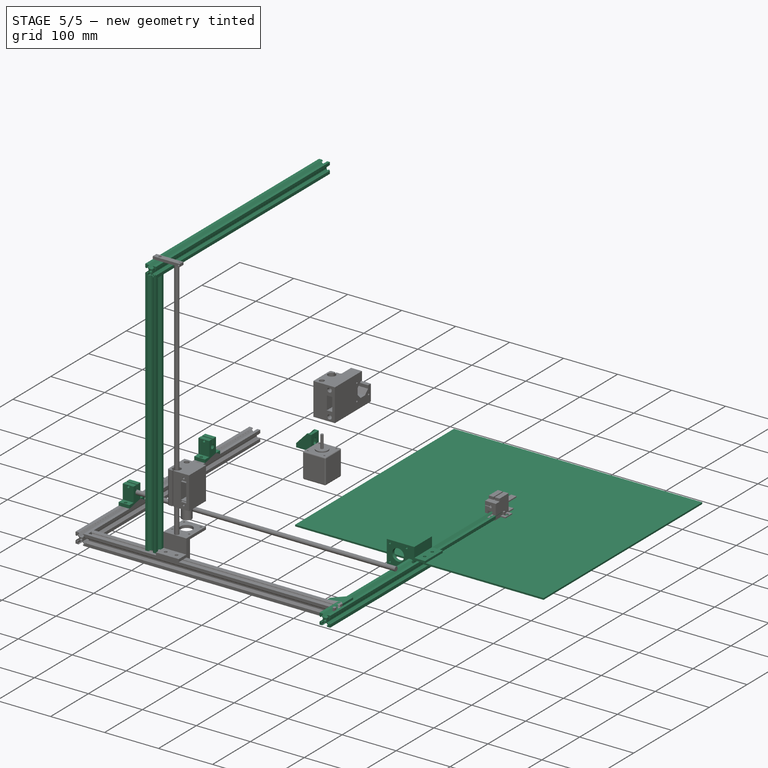
[diagram: stage 5 of 5 — iso view after this stage's code; geometry added in this stage tinted green]
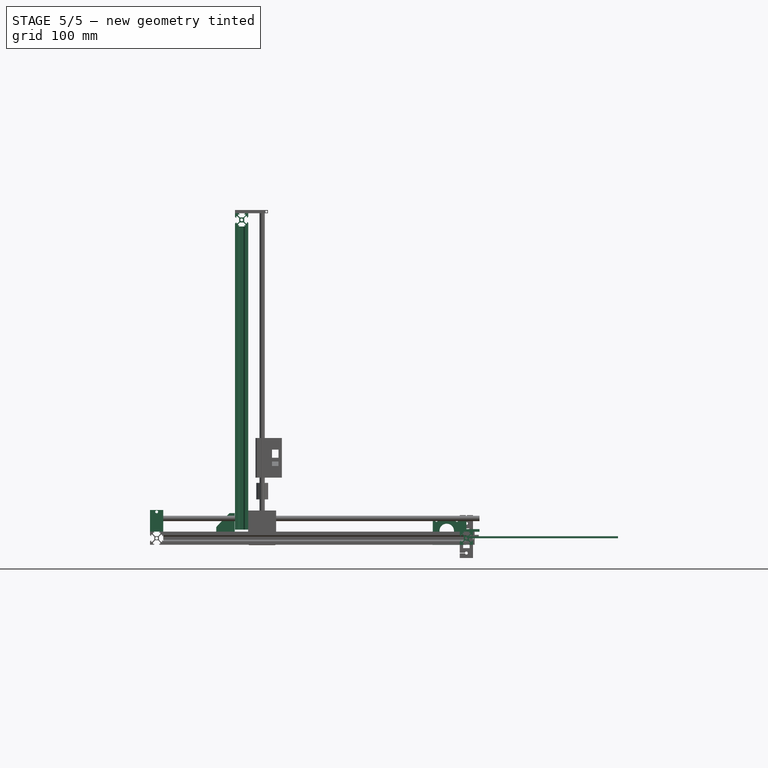
[diagram: stage 5 of 5 — front view after this stage's code; geometry added in this stage tinted green]
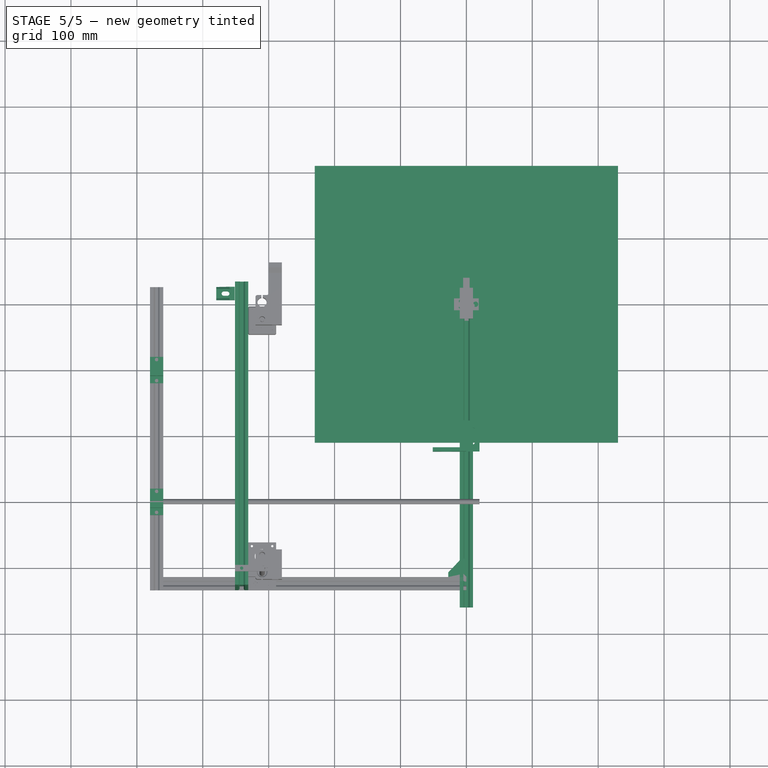
[diagram: stage 5 of 5 — top view after this stage's code; geometry added in this stage tinted green]
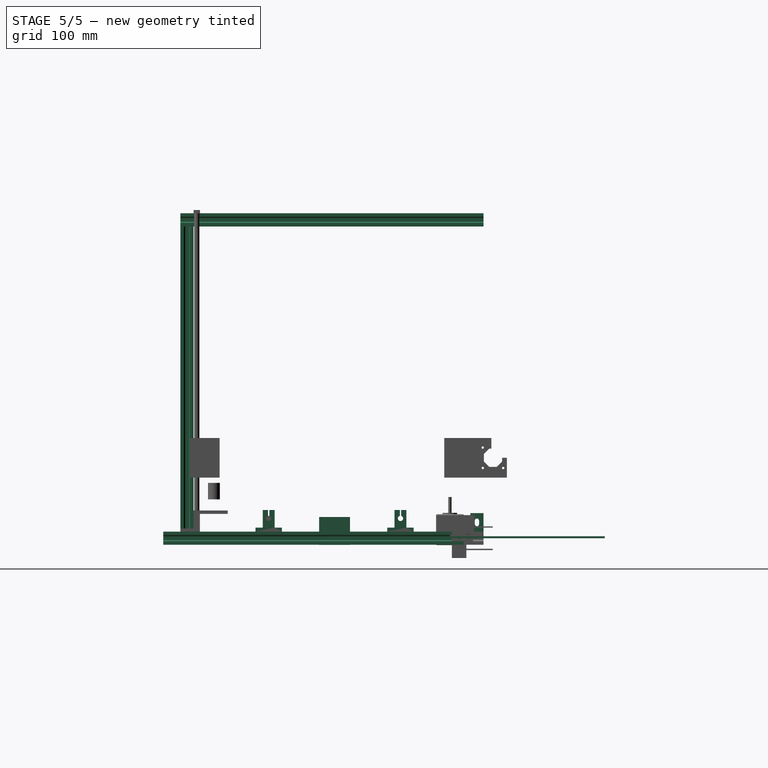
[diagram: stage 5 of 5 — right view after this stage's code; geometry added in this stage tinted green]
FEATURE [Sketcher::SketchObject] Sketch  label="perfil"
  MapMode = 5
  Placement = pos=(0,0,0) rot=(1,0,0;1.5708rad)
  Support = -> [XZ_Plane]
  sketch-geometry (49):
    g0: LineSegment [constr] StartX=-10 StartY=10 StartZ=0 EndX=10 EndY=10 EndZ=0
    g1: LineSegment [constr] StartX=10 StartY=10 StartZ=0 EndX=10 EndY=-10 EndZ=0
    g2: LineSegment [constr] StartX=10 StartY=-10 StartZ=0 EndX=-10 EndY=-10 EndZ=0
    g3: LineSegment [constr] StartX=-10 StartY=-10 StartZ=0 EndX=-10 EndY=10 EndZ=0
    g4: Circle CenterX=0 CenterY=0 CenterZ=0 NormalX=0 NormalY=0 NormalZ=1 AngleXU=0 Radius=2.1
    g5: LineSegment StartX=-10 StartY=10 StartZ=0 EndX=-4.58 EndY=10 EndZ=0
    g6: LineSegment StartX=-4.58 StartY=10 StartZ=0 EndX=-2.78 EndY=8.2 EndZ=0
    g7: LineSegment StartX=-2.78 StartY=8.2 StartZ=0 EndX=-5.5 EndY=8.2 EndZ=0
    g8: LineSegment StartX=-5.5 StartY=8.2 StartZ=0 EndX=-5.5 EndY=6.565 EndZ=0
    g9: LineSegment StartX=-5.5 StartY=6.565 StartZ=0 EndX=-2.835 EndY=3.9 EndZ=0
    g10: LineSegment StartX=-10 StartY=10 StartZ=0 EndX=-10 EndY=4.58 EndZ=0
    g11: LineSegment StartX=-10 StartY=4.58 StartZ=0 EndX=-8.2 EndY=2.78 EndZ=0
    g12: LineSegment StartX=-8.2 StartY=2.78 StartZ=0 EndX=-8.2 EndY=5.5 EndZ=0
    g13: LineSegment StartX=-8.2 StartY=5.5 StartZ=0 EndX=-6.55632 EndY=5.5 EndZ=0
    g14: LineSegment StartX=-6.55632 StartY=5.5 StartZ=0 EndX=-3.9 EndY=2.84368 EndZ=0
    g15: LineSegment StartX=5.27 StartY=10 StartZ=0 EndX=3.47 EndY=8.2 EndZ=0
    g16: LineSegment StartX=3.47 StartY=8.2 StartZ=0 EndX=5.83086 EndY=8.2 EndZ=0
    g17: LineSegment StartX=5.83086 StartY=8.2 StartZ=0 EndX=5.83086 EndY=6.89586 EndZ=0
    g18: LineSegment StartX=5.83086 StartY=6.89586 StartZ=0 EndX=2.835 EndY=3.9 EndZ=0
    g19: LineSegment StartX=9.99784 StartY=4.98173 StartZ=0 EndX=8.2 EndY=3.18389 EndZ=0
    g20: LineSegment StartX=8.2 StartY=3.18389 StartZ=0 EndX=8.2 EndY=5.66742 EndZ=0
    g21: LineSegment StartX=8.2 StartY=5.66742 StartZ=0 EndX=6.72374 EndY=5.66742 EndZ=0
    g22: LineSegment StartX=6.72374 StartY=5.66742 StartZ=0 EndX=3.9 EndY=2.84368 EndZ=0
    g23: LineSegment StartX=10 StartY=10 StartZ=0 EndX=9.99784 EndY=4.98173 EndZ=0
    g24: LineSegment StartX=10 StartY=10 StartZ=0 EndX=5.27 EndY=10 EndZ=0
    g25: LineSegment StartX=-2.835 StartY=3.9 StartZ=0 EndX=2.835 EndY=3.9 EndZ=0
    g26: LineSegment StartX=-4.88796 StartY=-10 StartZ=0 EndX=-3.13123 EndY=-8.24327 EndZ=0
    g27: LineSegment StartX=-3.13123 StartY=-8.24327 StartZ=0 EndX=-5.32324 EndY=-8.24327 EndZ=0
    g28: LineSegment StartX=-5.32324 StartY=-8.24327 StartZ=0 EndX=-5.32324 EndY=-6.38824 EndZ=0
    g29: LineSegment StartX=-5.32324 StartY=-6.38824 StartZ=0 EndX=-2.835 EndY=-3.9 EndZ=0
    g30: LineSegment StartX=-8.2 StartY=-5.10369 StartZ=0 EndX=-6.16001 EndY=-5.10369 EndZ=0
    g31: LineSegment StartX=-6.16001 StartY=-5.10369 StartZ=0 EndX=-3.9 EndY=-2.84368 EndZ=0
    g32: LineSegment StartX=-10 StartY=-10 StartZ=0 EndX=-4.88796 EndY=-10 EndZ=0
    g33: LineSegment StartX=-10 StartY=-10 StartZ=0 EndX=-10 EndY=-5.27 EndZ=0
    g34: LineSegment StartX=-10 StartY=-5.27 StartZ=0 EndX=-8.2 EndY=-3.47 EndZ=0
    g35: LineSegment StartX=-8.2 StartY=-3.47 StartZ=0 EndX=-8.2 EndY=-5.10369 EndZ=0
    g36: LineSegment StartX=-3.9 StartY=2.84368 StartZ=0 EndX=-3.9 EndY=-2.84368 EndZ=0
    g37: LineSegment StartX=3.11877 StartY=-8.2391 StartZ=0 EndX=5.61815 EndY=-8.2391 EndZ=0
    g38: LineSegment StartX=5.61815 StartY=-8.2391 StartZ=0 EndX=5.61815 EndY=-6.68315 EndZ=0
    g39: LineSegment StartX=5.61815 StartY=-6.68315 StartZ=0 EndX=2.835 EndY=-3.9 EndZ=0
    g40: LineSegment StartX=8.2 StartY=-5.38377 StartZ=0 EndX=6.44009 EndY=-5.38377 EndZ=0
    g41: LineSegment StartX=6.44009 StartY=-5.38377 StartZ=0 EndX=3.9 EndY=-2.84368 EndZ=0
    g42: LineSegment StartX=8.2 StartY=-3.06611 StartZ=0 EndX=8.2 EndY=-5.38377 EndZ=0
    g43: LineSegment StartX=4.84056 StartY=-9.9609 StartZ=0 EndX=3.11877 EndY=-8.2391 EndZ=0
    g44: LineSegment StartX=10 StartY=-9.9609 StartZ=0 EndX=4.84056 EndY=-9.9609 EndZ=0
    g45: LineSegment StartX=10 StartY=-9.9609 StartZ=0 EndX=10 EndY=-4.58 EndZ=0
    g46: LineSegment StartX=-2.835 StartY=-3.9 StartZ=0 EndX=2.835 EndY=-3.9 EndZ=0
    g47: LineSegment StartX=3.9 StartY=-2.84368 StartZ=0 EndX=3.9 EndY=2.84368 EndZ=0
    g48: LineSegment StartX=8.2 StartY=-3.06611 StartZ=0 EndX=10 EndY=-4.58 EndZ=0
  constraints (123):
    c: Coincident(g1,g2)
    c: Coincident(g2,g3)
    c: Coincident(g3,g0)
    c: Horizontal(g2)
    c: Vertical(g1)
    c: Symmetric(g0,g2,g-1)
    c: Symmetric(g0,g0,g-2)
    c: DistanceY(g-1,g0) = 10
    c: DistanceX(g-1,g1) = 10
    c: Coincident(g4,g-1)
    c: Diameter(g4) = 4.2
    c: Coincident(g5,g0)
    c: Horizontal(g5)
    c: DistanceX(g5,g5) = 5.42
    c: Coincident(g6,g5)
    c: Angle(g6,g0) = 0.785398
    c: DistanceY(g6,g5) = 1.8
    c: Coincident(g7,g6)
    c: Horizontal(g7)
    c: DistanceX(g5,g7) = 4.5
    c: Coincident(g8,g7)
    c: Vertical(g8)
    c: Coincident(g9,g8)
    c: Angle(g9,g8) = 2.35619
    c: DistanceY(g9,g7) = 4.3
    c: Coincident(g10,g5)
    c: PointOnObject(g10,g3)
    c: DistanceY(g10,g10) = 5.42
    c: Coincident(g11,g10)
    c: Angle(g3,g11) = 0.785398
    c: DistanceX(g10,g11) = 1.8
    c: Coincident(g12,g11)
    c: Vertical(g12)
    c: Coincident(g13,g12)
    c: Horizontal(g13)
    c: Coincident(g14,g13)
    c: Parallel(g14,g9)
    c: DistanceX(g11,g14) = 4.3
    c: Distance(g8,g14) = 1.5
    c: DistanceY(g12,g5) = 4.5
    c: Horizontal(g24)
    c: Coincident(g15,g24)
    c: Coincident(g16,g15)
    c: Horizontal(g16)
    c: Coincident(g17,g16)
    c: Vertical(g17)
    c: Coincident(g18,g17)
    c: Angle(g18,g17) = -2.35619
    c: Coincident(g23,g24)
    c: Coincident(g19,g23)
    c: Coincident(g20,g19)
    c: Vertical(g20)
    c: Coincident(g21,g20)
    c: Horizontal(g21)
    c: Coincident(g22,g21)
    c: Parallel(g22,g18)
    c: Coincident(g25,g9)
    c: Coincident(g25,g18)
    c: Horizontal(g32)
    c: Coincident(g26,g32)
    c: Coincident(g27,g26)
    c: Horizontal(g27)
    c: Coincident(g28,g27)
    c: Vertical(g28)
    c: Coincident(g29,g28)
    c: Angle(g29,g28) = -2.35619
    c: Coincident(g33,g32)
    c: Coincident(g34,g33)
    c: Coincident(g35,g34)
    c: Vertical(g35)
    c: Coincident(g30,g35)
    c: Horizontal(g30)
    c: Coincident(g31,g30)
    c: Parallel(g31,g29)
    c: Coincident(g36,g14)
    c: Coincident(g36,g31)
    c: Horizontal(g44)
    c: Coincident(g43,g44)
    c: Coincident(g37,g43)
    c: Horizontal(g37)
    c: Coincident(g38,g37)
    c: Vertical(g38)
    c: Coincident(g39,g38)
    c: Angle(g39,g38) = 2.35619
    c: Coincident(g45,g44)
    c: Vertical(g42)
    c: Coincident(g40,g42)
    c: Horizontal(g40)
    c: Coincident(g41,g40)
    c: Parallel(g41,g39)
    c: Coincident(g46,g29)
    c: Coincident(g46,g39)
    c: Coincident(g47,g41)
    c: Coincident(g47,g22)
    c: Coincident(g48,g42)
    c: Coincident(g48,g45)
    c: DistanceX(g6,g15) = 6.25
    c: DistanceX(g26,g37) = 6.25
    c: Angle(g2,g26) = 0.785398
    c: Angle(g43,g2) = 0.785398
    c: Angle(g19,g1) = 0.785398
    c: Angle(g0,g15) = 0.785398
    c: Symmetric(g29,g9,g-1)
    c: Symmetric(g14,g22,g-2)
    c: Symmetric(g14,g31,g-1)
    c: Symmetric(g22,g41,g-1)
    c: Symmetric(g39,g29,g-2)
    c: Symmetric(g9,g18,g-2)
    c: DistanceX(g9,g18) = 5.67
    c: DistanceY(g34,g11) = 6.25
    c: DistanceY(g42,g19) = 6.25
    c: DistanceX(g22,g19) = 4.3
    c: DistanceY(g18,g15) = 4.3
    c: DistanceY(g23,g0) = 0
    c: DistanceX(g33,g34) = 1.8
    c: DistanceX(g42,g45) = 1.8
    c: DistanceY(g2,g32) = 0
    c: DistanceX(g34,g31) = 4.3
    c: Angle(g34,g3) = 0.785398
    c: DistanceX(g32) = -10
    c: DistanceX(g44) = 10
    c: DistanceY(g44) = -9.9609
    c: Vertical(g0)
FEATURE [PartDesign::Pad] Pad  label="perfil2020"
  Length = 460
  Length2 = 100
  Placement = pos=(0,0,0) rot=(1,0,0;1.5708rad)
  Profile = -> Sketch
  Type = 0
FEATURE [PartDesign::Body] Body  label="perfil2020Cuerpo"
  Group = -> [Sketch,Pad]
  Origin = -> Origin
  Tip = -> Pad
FEATURE [Sketcher::SketchObject] Sketch001
  MapMode = 5
  Placement = pos=(0,0,0) rot=(1,0,0;1.5708rad)
  Support = -> [XZ_Plane001]
  sketch-geometry (8):
    g0: LineSegment StartX=-10 StartY=14 StartZ=0 EndX=10 EndY=14 EndZ=0
    g1: LineSegment StartX=10 StartY=14 StartZ=0 EndX=10 EndY=-14 EndZ=0
    g2: LineSegment StartX=10 StartY=-14 StartZ=0 EndX=-10 EndY=-14 EndZ=0
    g3: LineSegment StartX=-10 StartY=-14 StartZ=0 EndX=-10 EndY=14 EndZ=0
    g4: ArcOfCircle CenterX=0 CenterY=2.625 CenterZ=0 NormalX=0 NormalY=0 NormalZ=1 AngleXU=0 Radius=3.25 StartAngle=1e-16 EndAngle=3.14159
    g5: ArcOfCircle CenterX=0 CenterY=-2.625 CenterZ=0 NormalX=0 NormalY=0 NormalZ=1 AngleXU=0 Radius=3.25 StartAngle=3.14159 EndAngle=6.28319
    g6: LineSegment StartX=-3.25 StartY=2.625 StartZ=0 EndX=-3.25 EndY=-2.625 EndZ=0
    g7: LineSegment StartX=3.25 StartY=2.625 StartZ=0 EndX=3.25 EndY=-2.625 EndZ=0
  constraints (19):
    c: Coincident(g0,g1)
    c: Coincident(g1,g2)
    c: Coincident(g2,g3)
    c: Coincident(g3,g0)
    c: Horizontal(g2)
    c: Vertical(g1)
    c: Symmetric(g0,g2,g-1)
    c: Symmetric(g0,g0,g-2)
    c: DistanceY(g2,g0) = 28
    c: DistanceX(g0,g0) = 20
    c: Tangent(g4,g7) = 1.5708
    c: Tangent(g4,g6) = -1.5708
    c: Tangent(g6,g5) = -1.5708
    c: Tangent(g7,g5) = 1.5708
    c: Vertical(g6)
    c: Symmetric(g4,g5,g-1)
    c: DistanceX(g4,g4) = 6.5
    c: Symmetric(g4,g4,g-2)
    c: DistanceY(g5,g4) = 5.25
FEATURE [PartDesign::Pad] Pad001
  Length = 5
  Length2 = 100
  Midplane = true
  Placement = pos=(0,0,0) rot=(1,0,0;1.5708rad)
  Profile = -> Sketch001
  Type = 0
FEATURE [Sketcher::SketchObject] Sketch002
  ExternalGeometry = -> [Pad001]
  MapMode = 5
  Placement = pos=(0,-2.5,5e-16) rot=(1,0,0;1.5708rad)
  Support = -> [Pad001]
  sketch-geometry (4):
    g0: LineSegment StartX=-10 StartY=-14 StartZ=0 EndX=10 EndY=-14 EndZ=0
    g1: LineSegment StartX=10 StartY=-14 StartZ=0 EndX=10 EndY=-9 EndZ=0
    g2: LineSegment StartX=10 StartY=-9 StartZ=0 EndX=-10 EndY=-9 EndZ=0
    g3: LineSegment StartX=-10 StartY=-9 StartZ=0 EndX=-10 EndY=-14 EndZ=0
  constraints (10):
    c: Coincident(g0,g1)
    c: Coincident(g1,g2)
    c: Coincident(g2,g3)
    c: Coincident(g3,g0)
    c: Horizontal(g0)
    c: Vertical(g1)
    c: Vertical(g3)
    c: Coincident(g0,g-4)
    c: Symmetric(g2,g1,g-2)
    c: DistanceY(g0,g2) = 5
FEATURE [PartDesign::Pad] Pad002
  BaseFeature = -> Pad001
  Length = 23
  Length2 = 100
  Placement = pos=(0,0,0) rot=(1,0,0;1.5708rad)
  Profile = -> Sketch002
  Type = 0
FEATURE [Sketcher::SketchObject] Sketch003
  ExternalGeometry = -> [Pad002]
  MapMode = 5
  Placement = pos=(0,-8.5e-15,-9) rot=(0,0,1;3.14159rad)
  Support = -> [Pad002]
  sketch-geometry (4):
    g0: ArcOfCircle CenterX=4.27e-14 CenterY=14.125 CenterZ=0 NormalX=0 NormalY=0 NormalZ=1 AngleXU=0 Radius=3.25 StartAngle=1.02e-14 EndAngle=3.14159
    g1: ArcOfCircle CenterX=4.31e-14 CenterY=8.875 CenterZ=0 NormalX=0 NormalY=0 NormalZ=1 AngleXU=0 Radius=3.25 StartAngle=3.14159 EndAngle=6.28319
    g2: LineSegment StartX=-3.25 StartY=14.125 StartZ=0 EndX=-3.25 EndY=8.875 EndZ=0
    g3: LineSegment StartX=3.25 StartY=14.125 StartZ=0 EndX=3.25 EndY=8.875 EndZ=0
  constraints (8):
    c: Tangent(g0,g3) = 1.5708
    c: Tangent(g0,g2) = -1.5708
    c: Tangent(g2,g1) = -1.5708
    c: Tangent(g3,g1) = 1.5708
    c: Vertical(g2)
    c: Equal(g0,g1)
    c: DistanceX(g0,g0) = 6.5
    c: DistanceY(g1,g0) = 5.25
FEATURE [PartDesign::Pocket] Pocket
  BaseFeature = -> Pad002
  Length = 5
  Length2 = 100
  Placement = pos=(0,0,0) rot=(1,0,0;1.5708rad)
  Profile = -> Sketch003
  Type = 0
FEATURE [Sketcher::SketchObject] Sketch004
  ExternalGeometry = -> [Pocket]
  MapMode = 5
  Placement = pos=(0,-2.5,5e-16) rot=(1,0,0;1.5708rad)
  Support = -> [Pocket]
  sketch-geometry (10):
    g0: LineSegment [constr] StartX=10 StartY=-9 StartZ=0 EndX=-10 EndY=-9 EndZ=0
    g1: LineSegment StartX=-10 StartY=14 StartZ=0 EndX=-7.14437 EndY=14 EndZ=0
    g2: LineSegment StartX=-7.14437 StartY=14 StartZ=0 EndX=-7.14437 EndY=-9 EndZ=0
    g3: LineSegment [constr] StartX=-7.14437 StartY=-9 StartZ=0 EndX=-10 EndY=-9 EndZ=0
    g4: LineSegment StartX=-10 StartY=-9 StartZ=0 EndX=-10 EndY=14 EndZ=0
    g5: LineSegment StartX=-7.14437 StartY=-9 StartZ=0 EndX=-10 EndY=-9 EndZ=0
    g6: LineSegment StartX=7.14437 StartY=14 StartZ=0 EndX=7.14437 EndY=-9 EndZ=0
    g7: LineSegment StartX=7.14437 StartY=-9 StartZ=0 EndX=10 EndY=-9 EndZ=0
    g8: LineSegment StartX=10 StartY=-9 StartZ=0 EndX=10 EndY=14 EndZ=0
    g9: LineSegment StartX=10 StartY=14 StartZ=0 EndX=7.14437 EndY=14 EndZ=0
  constraints (21):
    c: Coincident(g0,g-9)
    c: Coincident(g0,g-8)
    c: Coincident(g1,g2)
    c: Coincident(g2,g3)
    c: Coincident(g3,g4)
    c: Coincident(g4,g1)
    c: Horizontal(g1)
    c: Horizontal(g3)
    c: Vertical(g2)
    c: Vertical(g4)
    c: Coincident(g1,g-4)
    c: PointOnObject(g2,g0)
    c: Coincident(g5,g2)
    c: Coincident(g5,g4)
    c: Coincident(g9,g6)
    c: Coincident(g8,g9)
    c: Horizontal(g9)
    c: Vertical(g6)
    c: Vertical(g8)
    c: Coincident(g7,g6)
    c: Coincident(g7,g8)
FEATURE [PartDesign::Pad] Pad003
  BaseFeature = -> Pocket
  Length = 23
  Length2 = 100
  Placement = pos=(0,0,0) rot=(1,0,0;1.5708rad)
  Profile = -> Sketch004
  Type = 0
FEATURE [PartDesign::Point] DatumPoint002
  AttacherType = Attacher::AttachEnginePoint
  AttachmentOffset = pos=(0,0,2) rot=(0,0,1;0rad)
  MapMode = 39
  Placement = pos=(-10,-25.5,-7) rot=(0,0,1;0rad)
  Support = -> [Pad003]
FEATURE [PartDesign::Point] DatumPoint003
  AttacherType = Attacher::AttachEnginePoint
  AttachmentOffset = pos=(0,0,-21) rot=(0,0,1;0rad)
  MapMode = 39
  Placement = pos=(-7.14437,-25.5,-7) rot=(0,0,1;0rad)
  Support = -> [Pad003]
FEATURE [PartDesign::Point] DatumPoint004
  AttacherType = Attacher::AttachEnginePoint
  AttachmentOffset = pos=(0,-3,0) rot=(0,0,1;0rad)
  MapMode = 39
  Placement = pos=(-7.14437,-5.5,14) rot=(0,0,1;0rad)
  Support = -> [Pad003]
FEATURE [PartDesign::Point] DatumPoint005
  AttacherType = Attacher::AttachEnginePoint
  AttachmentOffset = pos=(0,-3,0) rot=(0,0,1;0rad)
  MapMode = 39
  Placement = pos=(-10,-5.5,14) rot=(0,0,1;0rad)
  Support = -> [Pad003]
FEATURE [PartDesign::Plane] DatumPlane
  Length = 25.9839
  MapMode = 45
  Placement = pos=(-8.57219,-15.5,3.5) rot=(1,0,0;3.95138rad)
  ResizeMode = 0
  Support = -> [DatumPoint004,DatumPoint005,DatumPoint003,DatumPoint002]
  Width = 50.7425
FEATURE [PartDesign::Body] Body001  label="escuadra"
  Group = -> [Sketch001,Pad001,Sketch002,Pad002,Sketch003,Pocket,Sketch004,Pad003,DatumPoint002,DatumPoint003,DatumPoint004,DatumPoint005,DatumPlane]
  Origin = -> Origin001
  Tip = -> Pad003
FEATURE [Part::FeaturePython] Slice  # WARN: FeaturePython — macro-defined, semantics opaque (R4)
  Base = -> Pad003
  Mode = 1
  Tolerance = 0
  Tools = -> [DatumPlane]
FEATURE [Part::FeaturePython] CompoundFilter  label="escuadra2020"  # WARN: FeaturePython — macro-defined, semantics opaque (R4)
  Base = -> Slice
  FilterType = 3
  Invert = false
  OverrideMaxVal = 0
  WindowFrom = 80
  WindowTo = 100
FEATURE [Part::FeaturePython] Clone002  label="escuadraUno"  # Draft clone (typed FeaturePython)
  AttacherType = Attacher::AttachEngine3D
  Fuse = false
  Objects = -> [CompoundFilter]
  Placement = pos=(-445,2,0) rot=(0,1,0;1.5708rad)
  Scale = (1,1,1)
FEATURE [Part::FeaturePython] Clone003  label="escuadraDos"  # Draft clone (typed FeaturePython)
  AttacherType = Attacher::AttachEngine3D
  Fuse = false
  Objects = -> [Clone002]
  Placement = pos=(-457.3,-399.8,0) rot=(0.57735,-0.57735,-0.57735;4.18879rad)
  Scale = (1,1,1)
FEATURE [Part::FeaturePython] Clone004  label="escuadraTres"  # Draft clone (typed FeaturePython)
  AttacherType = Attacher::AttachEngine3D
  Fuse = false
  Objects = -> [Clone003]
  Placement = pos=(-14,3,0) rot=(0,-1,0;1.5708rad)
  Scale = (1,1,1)
FEATURE [Part::FeaturePython] Clone005  label="escuadraCuatro"  # Draft clone (typed FeaturePython)
  AttacherType = Attacher::AttachEngine3D
  Fuse = false
  Objects = -> [Clone004]
  Placement = pos=(-2,-400,0) rot=(0.57735,0.57735,0.57735;4.18879rad)
  Scale = (1,1,1)
FEATURE [Sketcher::SketchObject] Sketch005  label="p4041"
  MapMode = 5
  Placement = pos=(0,0,0) rot=(1,0,0;1.5708rad)
  Support = -> [XZ_Plane]
  sketch-geometry (48):
    g0: LineSegment [constr] StartX=-10 StartY=10 StartZ=0 EndX=10 EndY=10 EndZ=0
    g1: LineSegment [constr] StartX=10 StartY=10 StartZ=0 EndX=10 EndY=-10 EndZ=0
    g2: LineSegment [constr] StartX=10 StartY=-10 StartZ=0 EndX=-10 EndY=-10 EndZ=0
    g3: LineSegment [constr] StartX=-10 StartY=-10 StartZ=0 EndX=-10 EndY=10 EndZ=0
    g4: LineSegment StartX=-10 StartY=10 StartZ=0 EndX=-4.58 EndY=10 EndZ=0
    g5: LineSegment StartX=-4.58 StartY=10 StartZ=0 EndX=-2.78 EndY=8.2 EndZ=0
    g6: LineSegment StartX=-2.78 StartY=8.2 StartZ=0 EndX=-5.5 EndY=8.2 EndZ=0
    g7: LineSegment StartX=-5.5 StartY=8.2 StartZ=0 EndX=-5.5 EndY=6.56703 EndZ=0
    g8: LineSegment StartX=-5.5 StartY=6.56703 StartZ=0 EndX=-2.83297 EndY=3.9 EndZ=0
    g9: LineSegment StartX=-10 StartY=10 StartZ=0 EndX=-10 EndY=4.58 EndZ=0
    g10: LineSegment StartX=-10 StartY=4.58 StartZ=0 EndX=-8.2 EndY=2.78 EndZ=0
    g11: LineSegment StartX=-8.2 StartY=2.78 StartZ=0 EndX=-8.2 EndY=5.5 EndZ=0
    g12: LineSegment StartX=-8.2 StartY=5.5 StartZ=0 EndX=-6.55429 EndY=5.5 EndZ=0
    g13: LineSegment StartX=-6.55429 StartY=5.5 StartZ=0 EndX=-3.9 EndY=2.84571 EndZ=0
    g14: LineSegment StartX=5.1411 StartY=9.93555 StartZ=0 EndX=3.47 EndY=8.26445 EndZ=0
    g15: LineSegment StartX=3.47 StartY=8.26445 StartZ=0 EndX=5.83086 EndY=8.26445 EndZ=0
    g16: LineSegment StartX=5.83086 StartY=8.26445 StartZ=0 EndX=5.83086 EndY=6.89789 EndZ=0
    g17: LineSegment StartX=5.83086 StartY=6.89789 StartZ=0 EndX=2.83297 EndY=3.9 EndZ=0
    g18: LineSegment StartX=10 StartY=4.58 StartZ=0 EndX=8.2 EndY=2.78 EndZ=0
    g19: LineSegment StartX=8.2 StartY=2.78 StartZ=0 EndX=8.2 EndY=5.66945 EndZ=0
    g20: LineSegment StartX=8.2 StartY=5.66945 StartZ=0 EndX=6.72374 EndY=5.66945 EndZ=0
    g21: LineSegment StartX=6.72374 StartY=5.66945 StartZ=0 EndX=3.9 EndY=2.84571 EndZ=0
    g22: LineSegment StartX=10 StartY=9.93555 StartZ=0 EndX=10 EndY=4.58 EndZ=0
    g23: LineSegment StartX=10 StartY=9.93555 StartZ=0 EndX=5.1411 EndY=9.93555 EndZ=0
    g24: LineSegment StartX=-2.83297 StartY=3.9 StartZ=0 EndX=2.83297 EndY=3.9 EndZ=0
    g25: LineSegment StartX=-4.84469 StartY=-9.95673 StartZ=0 EndX=-3.13123 EndY=-8.24327 EndZ=0
    g26: LineSegment StartX=-3.13123 StartY=-8.24327 StartZ=0 EndX=-5.32121 EndY=-8.24327 EndZ=0
    g27: LineSegment StartX=-5.32121 StartY=-8.24327 StartZ=0 EndX=-5.32121 EndY=-6.38824 EndZ=0
    g28: LineSegment StartX=-5.32121 StartY=-6.38824 StartZ=0 EndX=-2.83297 EndY=-3.9 EndZ=0
    g29: LineSegment StartX=-8.2 StartY=-5.10572 StartZ=0 EndX=-6.16001 EndY=-5.10572 EndZ=0
    g30: LineSegment StartX=-6.16001 StartY=-5.10572 StartZ=0 EndX=-3.9 EndY=-2.84571 EndZ=0
    g31: LineSegment StartX=-10 StartY=-9.95673 StartZ=0 EndX=-4.84469 EndY=-9.95673 EndZ=0
    g32: LineSegment StartX=-10 StartY=-9.95673 StartZ=0 EndX=-10 EndY=-4.58 EndZ=0
    g33: LineSegment StartX=-10 StartY=-4.58 StartZ=0 EndX=-8.2 EndY=-2.78 EndZ=0
    g34: LineSegment StartX=-8.2 StartY=-2.78 StartZ=0 EndX=-8.2 EndY=-5.10572 EndZ=0
    g35: LineSegment StartX=-3.9 StartY=2.84571 StartZ=0 EndX=-3.9 EndY=-2.84571 EndZ=0
    g36: LineSegment StartX=3.11877 StartY=-8.2391 StartZ=0 EndX=5.61815 EndY=-8.2391 EndZ=0
    g37: LineSegment StartX=5.61815 StartY=-8.2391 StartZ=0 EndX=5.61815 EndY=-6.68518 EndZ=0
    g38: LineSegment StartX=5.61815 StartY=-6.68518 StartZ=0 EndX=2.83297 EndY=-3.9 EndZ=0
    g39: LineSegment StartX=8.2 StartY=-5.3858 StartZ=0 EndX=6.44009 EndY=-5.3858 EndZ=0
    g40: LineSegment StartX=6.44009 StartY=-5.3858 StartZ=0 EndX=3.9 EndY=-2.84571 EndZ=0
    g41: LineSegment StartX=8.2 StartY=-2.78 StartZ=0 EndX=8.2 EndY=-5.3858 EndZ=0
    g42: LineSegment StartX=4.84056 StartY=-9.9609 StartZ=0 EndX=3.11877 EndY=-8.2391 EndZ=0
    g43: LineSegment StartX=10 StartY=-9.9609 StartZ=0 EndX=4.84056 EndY=-9.9609 EndZ=0
    g44: LineSegment StartX=10 StartY=-9.9609 StartZ=0 EndX=10 EndY=-4.58 EndZ=0
    g45: LineSegment StartX=-2.83297 StartY=-3.9 StartZ=0 EndX=2.83297 EndY=-3.9 EndZ=0
    g46: LineSegment StartX=3.9 StartY=-2.84571 StartZ=0 EndX=3.9 EndY=2.84571 EndZ=0
    g47: LineSegment StartX=8.2 StartY=-2.78 StartZ=0 EndX=10 EndY=-4.58 EndZ=0
  constraints (109):
    c: Coincident(g0,g1)
    c: Coincident(g1,g2)
    c: Coincident(g2,g3)
    c: Coincident(g3,g0)
    c: Horizontal(g2)
    c: Vertical(g1)
    c: Symmetric(g0,g2,g-1)
    c: Symmetric(g0,g0,g-2)
    c: DistanceY(g-1,g0) = 10
    c: DistanceX(g-1,g1) = 10
    c: Coincident(g4,g0)
    c: Horizontal(g4)
    c: DistanceX(g4,g4) = 5.42
    c: Coincident(g5,g4)
    c: Angle(g5,g0) = 0.785398
    c: DistanceY(g5,g4) = 1.8
    c: Coincident(g6,g5)
    c: Horizontal(g6)
    c: DistanceX(g4,g6) = 4.5
    c: Coincident(g7,g6)
    c: Vertical(g7)
    c: Coincident(g8,g7)
    c: Angle(g8,g7) = 2.35619
    c: DistanceY(g8,g6) = 4.3
    c: Coincident(g9,g4)
    c: PointOnObject(g9,g3)
    c: DistanceY(g9,g9) = 5.42
    c: Coincident(g10,g9)
    c: Angle(g3,g10) = 0.785398
    c: DistanceX(g9,g10) = 1.8
    c: Coincident(g11,g10)
    c: Vertical(g11)
    c: Coincident(g12,g11)
    c: Horizontal(g12)
    c: Coincident(g13,g12)
    c: Parallel(g13,g8)
    c: DistanceX(g10,g13) = 4.3
    c: Distance(g7,g13) = 1.5
    c: DistanceY(g11,g4) = 4.5
    c: Horizontal(g23)
    c: Coincident(g14,g23)
    c: Coincident(g15,g14)
    c: Horizontal(g15)
    c: Coincident(g16,g15)
    c: Vertical(g16)
    c: Coincident(g17,g16)
    c: Angle(g17,g16) = -2.35619
    c: Coincident(g22,g23)
    c: Coincident(g18,g22)
    c: Coincident(g19,g18)
    c: Vertical(g19)
    c: Coincident(g20,g19)
    c: Horizontal(g20)
    c: Coincident(g21,g20)
    c: Parallel(g21,g17)
    c: Distance(g16,g21) = 1.5
    c: Coincident(g24,g8)
    c: Coincident(g24,g17)
    c: Horizontal(g24)
    c: Horizontal(g31)
    c: Coincident(g25,g31)
    c: Coincident(g26,g25)
    c: Horizontal(g26)
    c: Coincident(g27,g26)
    c: Vertical(g27)
    c: Coincident(g28,g27)
    c: Angle(g28,g27) = -2.35619
    c: Coincident(g32,g31)
    c: Coincident(g33,g32)
    c: Coincident(g34,g33)
    c: Vertical(g34)
    c: Coincident(g29,g34)
    c: Horizontal(g29)
    c: Coincident(g30,g29)
    c: Parallel(g30,g28)
    c: Coincident(g35,g13)
    c: Coincident(g35,g30)
    c: Horizontal(g43)
    c: Coincident(g42,g43)
    c: Coincident(g36,g42)
    c: Horizontal(g36)
    c: Coincident(g37,g36)
    c: Vertical(g37)
    c: Coincident(g38,g37)
    c: Angle(g38,g37) = 2.35619
    c: Coincident(g44,g43)
    c: Vertical(g41)
    c: Coincident(g39,g41)
    c: Horizontal(g39)
    c: Coincident(g40,g39)
    c: Parallel(g40,g38)
    c: Coincident(g45,g28)
    c: Coincident(g46,g40)
    c: Coincident(g46,g21)
    c: Coincident(g47,g41)
    c: Coincident(g47,g44)
    c: DistanceX(g5,g14) = 6.25
    c: DistanceX(g25,g36) = 6.25
    c: Angle(g2,g25) = 0.785398
    c: Angle(g42,g2) = 0.785398
    c: Angle(g18,g1) = 0.785398
    c: Angle(g0,g14) = 0.785398
    c: Symmetric(g28,g8,g-1)
    c: Symmetric(g13,g21,g-2)
    c: Symmetric(g13,g30,g-1)
    c: Symmetric(g21,g40,g-1)
    c: Symmetric(g38,g28,g-2)
    c: Symmetric(g8,g17,g-2)
    c: Symmetric(g38,g17,g-1)
FEATURE [PartDesign::Body] Body002  label="perfil4040(NO TERMINADO)"
  Group = -> [Sketch005]
  Origin = -> Origin002
FEATURE [Sketcher::SketchObject] Sketch006
  MapMode = 5
  Support = -> [XY_Plane003]
  sketch-geometry (4):
    g0: LineSegment StartX=-230 StartY=210 StartZ=0 EndX=230 EndY=210 EndZ=0
    g1: LineSegment StartX=230 StartY=210 StartZ=0 EndX=230 EndY=-210 EndZ=0
    g2: LineSegment StartX=230 StartY=-210 StartZ=0 EndX=-230 EndY=-210 EndZ=0
    g3: LineSegment StartX=-230 StartY=-210 StartZ=0 EndX=-230 EndY=210 EndZ=0
  constraints (10):
    c: Coincident(g0,g1)
    c: Coincident(g1,g2)
    c: Coincident(g2,g3)
    c: Coincident(g3,g0)
    c: Horizontal(g2)
    c: Vertical(g1)
    c: Symmetric(g0,g0,g-2)
    c: Symmetric(g0,g2,g-1)
    c: DistanceY(g1,g0) = 420
    c: DistanceX(g0,g0) = 460
FEATURE [PartDesign::Pad] Pad004
  Length = 3
  Length2 = 100
  Profile = -> Sketch006
  Type = 0
FEATURE [Sketcher::SketchObject] Sketch011
  ExternalGeometry = -> [Pocket001]
  MapMode = 5
  Placement = pos=(0,-10,0) rot=(1,0,0;1.5708rad)
  Support = -> [Pocket001]
  sketch-geometry (6):
    g0: LineSegment StartX=-1 StartY=23.9585 StartZ=0 EndX=1 EndY=23.9585 EndZ=0
    g1: LineSegment StartX=1 StartY=23.9585 StartZ=0 EndX=1 EndY=32.8 EndZ=0
    g2: LineSegment StartX=1 StartY=32.8 StartZ=0 EndX=-1 EndY=32.8 EndZ=0
    g3: LineSegment StartX=-1 StartY=32.8 StartZ=0 EndX=-1 EndY=23.9585 EndZ=0
    g4: LineSegment [constr] StartX=0 StartY=35.1314 StartZ=0 EndX=0 EndY=14.3417 EndZ=0
    g5: LineSegment [constr] StartX=-5.93616 StartY=28.3792 StartZ=0 EndX=8.54854 EndY=28.3792 EndZ=0
  constraints (13):
    c: Coincident(g0,g1)
    c: Coincident(g1,g2)
    c: Coincident(g2,g3)
    c: Coincident(g3,g0)
    c: Horizontal(g0)
    c: Horizontal(g2)
    c: Vertical(g1)
    c: Vertical(g3)
    c: PointOnObject(g4,g-2)
    c: Symmetric(g1,g2,g4)
    c: Symmetric(g1,g0,g5)
    c: DistanceY(g1,g-3) = 0
    c: DistanceX(g0,g0) = 2
FEATURE [PartDesign::Pocket] Pocket002
  BaseFeature = -> Pocket001
  Length = 5
  Length2 = 100
  Profile = -> Sketch011
  Type = 1
FEATURE [Sketcher::SketchObject] Sketch012
  ExternalGeometry = -> [Pocket002]
  MapMode = 5
  Placement = pos=(9,0,0) rot=(0.57735,0.57735,0.57735;2.0944rad)
  Support = -> [Pocket002]
  sketch-geometry (2):
    g0: Circle CenterX=0 CenterY=30 CenterZ=0 NormalX=0 NormalY=0 NormalZ=1 AngleXU=0 Radius=2.2
    g1: GeomPoint X=0 Y=30 Z=0
  constraints (5):
    c: Diameter(g0) = 4.4
    c: DistanceY(g-5,g0) = 30
    c: PointOnObject(g1,g-2)
    c: DistanceX(g1,g0) = 0
    c: DistanceY(g-1,g1) = 30
FEATURE [PartDesign::Pocket] Pocket003
  BaseFeature = -> Pocket002
  Length = 5
  Length2 = 100
  Profile = -> Sketch012
  Type = 1
FEATURE [PartDesign::Body] Body005  label="soporteVarilla"
  Group = -> [Sketch008,Pad005,Sketch009,Pad006,Sketch010,Pocket001,Sketch011,Pocket002,Sketch012,Pocket003]
  Origin = -> Origin005
  Tip = -> Pocket003
FEATURE [App::DocumentObjectGroup] Group008  label="soporteVarilla8mmEJEx"
  Group = -> [Body005]
FEATURE [Part::FeaturePython] Clone011  label="soporteVarilla001"  # Draft clone (typed FeaturePython)
  AttacherType = Attacher::AttachEngine3D
  Fuse = false
  Objects = -> [Body005]
  Placement = pos=(10,-100,10) rot=(0,0,1;1.5708rad)
  Scale = (1,1,1)
FEATURE [Part::FeaturePython] Clone015  label="baseUnoEjez"  # WARN: FeaturePython — macro-defined, semantics opaque (R4)
  AttacherType = Attacher::AttachEngine3D
  Fuse = false
  Placement = pos=(-341,16,13) rot=(0,0,1;0rad)
  Scale = (1,1,1)
FEATURE [Part::FeaturePython] Clone016  label="baseDosEjez"  # Draft clone (typed FeaturePython)
  AttacherType = Attacher::AttachEngine3D
  Fuse = false
  Objects = -> [Clone015]
  Placement = pos=(-341,-424,13) rot=(0,0,1;0rad)
  Scale = (1,1,1)
FEATURE [Part::FeaturePython] Clone018  label="baseTresEjez"  # WARN: FeaturePython — macro-defined, semantics opaque (R4)
  AttacherType = Attacher::AttachEngine3D
  Fuse = false
  Placement = pos=(-341,26,483) rot=(1,0,0;1.5708rad)
  Scale = (1,1,1)
FEATURE [Part::FeaturePython] Clone019  label="escuadraTresEjez"  # WARN: FeaturePython — macro-defined, semantics opaque (R4)
  AttacherType = Attacher::AttachEngine3D
  Fuse = false
  Placement = pos=(-354,-424,24) rot=(0,0,-1;1.5708rad)
  Scale = (1,1,1)
FEATURE [Part::FeaturePython] Clone020  label="escuadraCuatroEjez"  # Draft clone (typed FeaturePython)
  AttacherType = Attacher::AttachEngine3D
  Fuse = false
  Objects = -> [Clone019]
  Placement = pos=(-354,16,24) rot=(0,0,-1;1.5708rad)
  Scale = (1,1,1)
FEATURE [App::DocumentObjectGroup] Group011  label="ejez"
  Group = -> [Clone015,Clone016,Clone018,Clone019,Clone020]
FEATURE [Part::FeaturePython] Clone021  label="soporteVarilla002"  # Draft clone (typed FeaturePython)
  AttacherType = Attacher::AttachEngine3D
  Fuse = false
  Objects = -> [Clone011]
  Placement = pos=(-470,-100,10) rot=(0,0,1;1.5708rad)
  Scale = (1,1,1)
FEATURE [Part::FeaturePython] Clone022  label="soporteVarilla003"  # Draft clone (typed FeaturePython)
  AttacherType = Attacher::AttachEngine3D
  Fuse = false
  Objects = -> [Clone011]
  Placement = pos=(10,-300,10) rot=(0,0,1;1.5708rad)
  Scale = (1,1,1)
FEATURE [Part::FeaturePython] Clone023  label="soporteVarilla004"  # Draft clone (typed FeaturePython)
  AttacherType = Attacher::AttachEngine3D
  Fuse = false
  Objects = -> [Clone022]
  Placement = pos=(-470,-300,10) rot=(0,0,1;1.5708rad)
  Scale = (1,1,1)
FEATURE [PartDesign::Body] Body006  label="soporteMotorNema17EJEX"
  Group = -> [Sketch013,Pad007,Sketch014,Pad008,Sketch015,Pad009,Sketch016,Pocket004,Sketch017,Pocket005,Sketch018,Pocket006,Pocket007,Pocket012]
  Origin = -> Origin006
  Tip = -> Pocket012
FEATURE [Part::FeaturePython] Clone013  label="soporteMotorNema019"  # Draft clone (typed FeaturePython)
  AttacherType = Attacher::AttachEngine3D
  Fuse = false
  Objects = -> [Body006]
  Placement = pos=(-5,-200,11) rot=(0,0,1;0rad)
  Scale = (1,1,1)
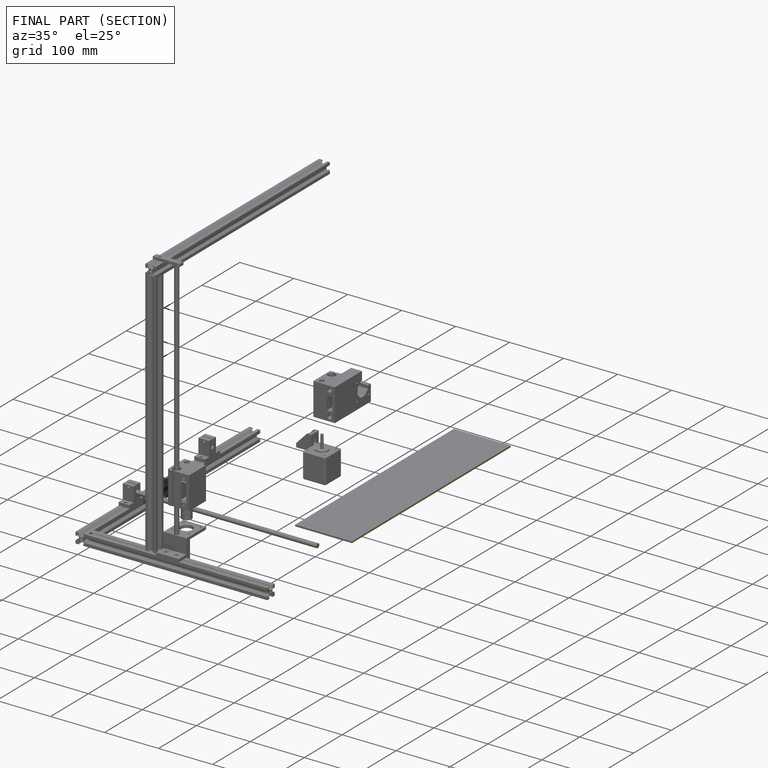
[diagram: finished part — half-section view (interior)]
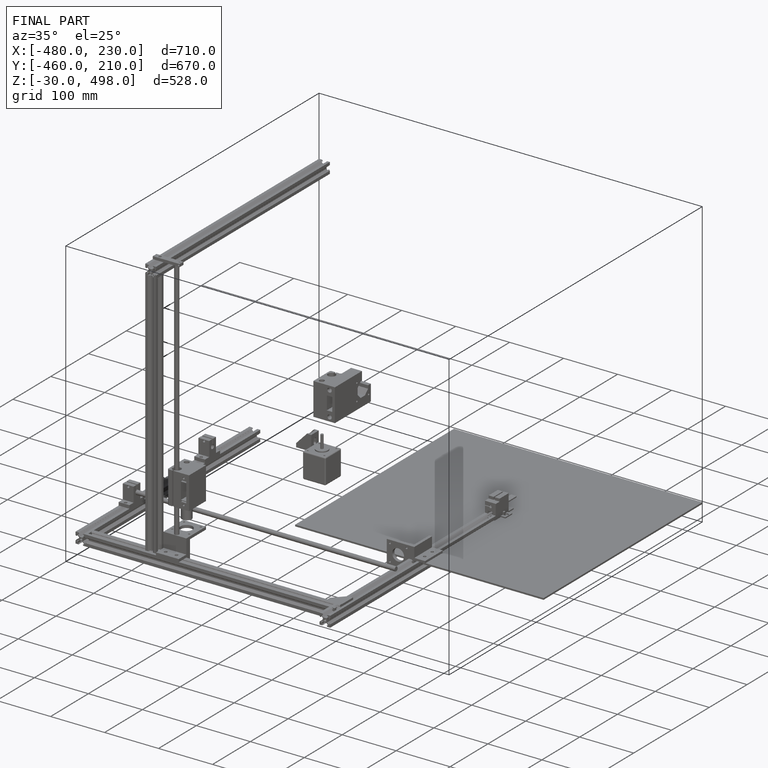
[diagram: finished part — iso view with bounding-box wireframe]
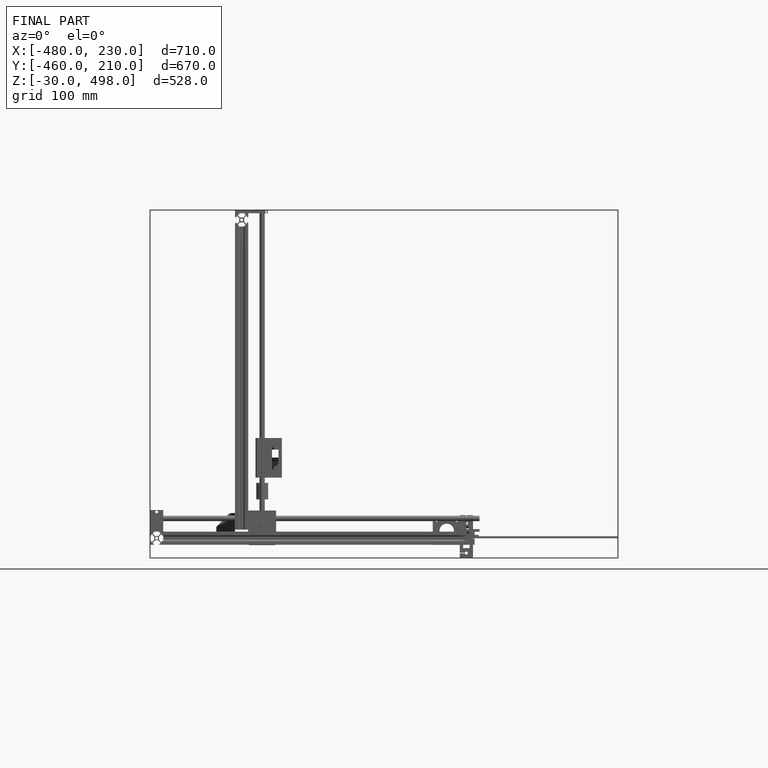
[diagram: finished part — front view with bounding-box wireframe]
